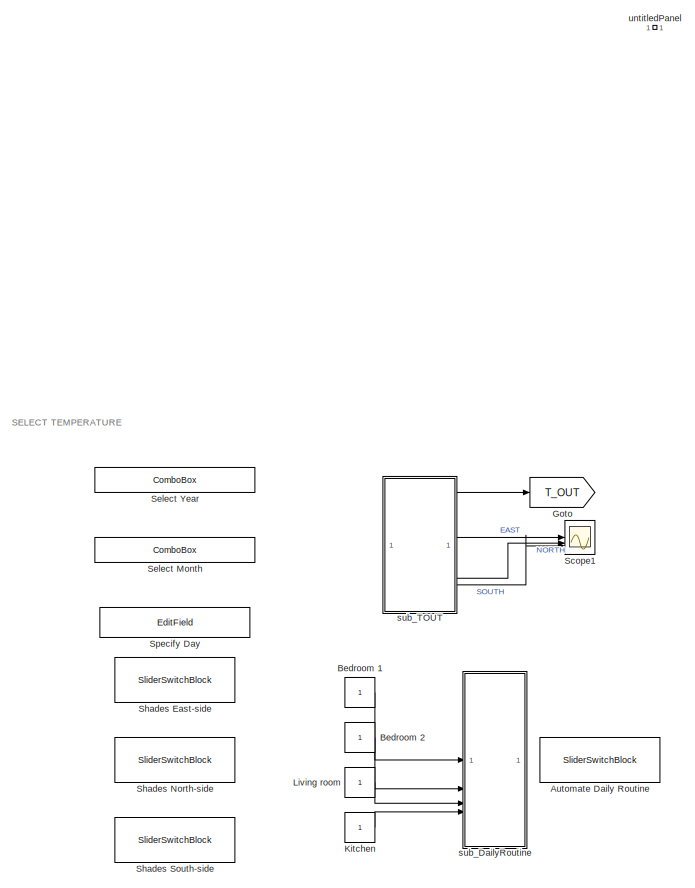
[diagram: root canvas - part 1/2, middle left region]
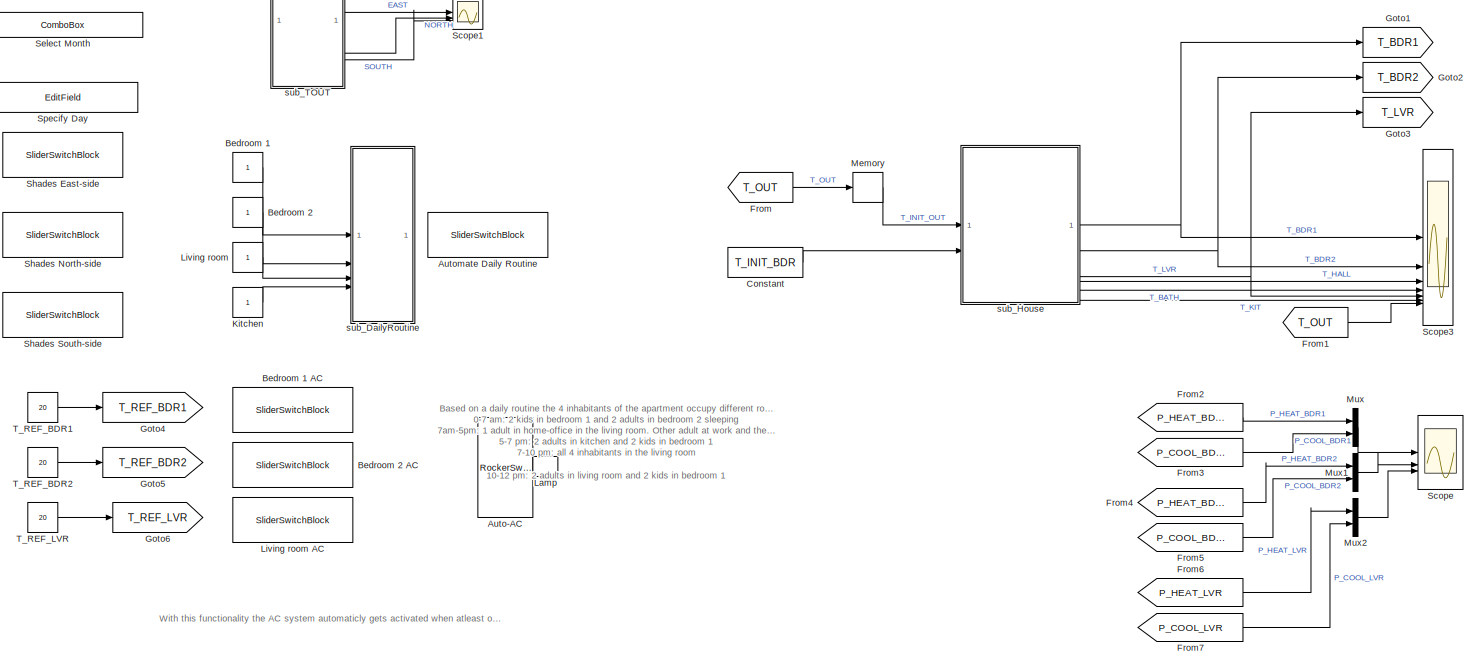
[diagram: root canvas - part 2/2, full width, bottom band]
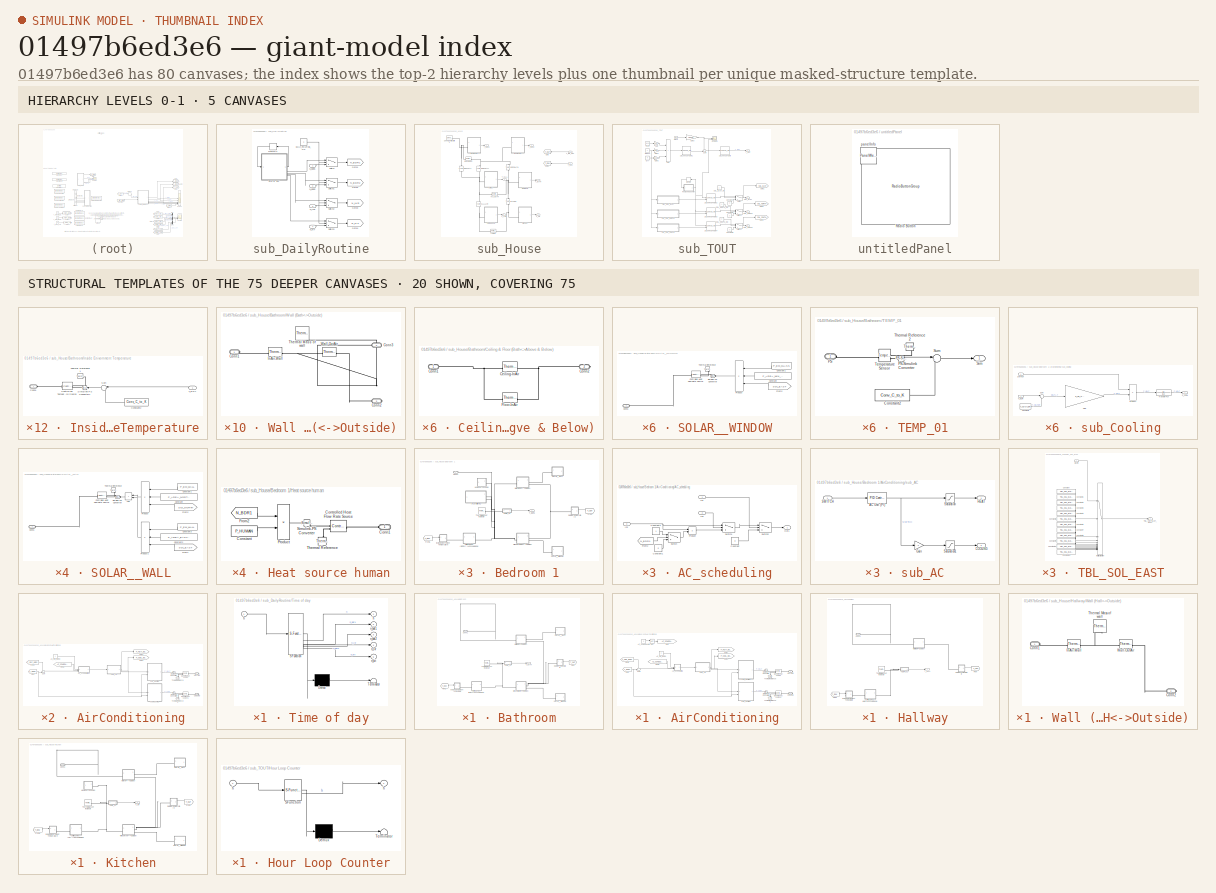
[diagram: thumbnail index - top-2 hierarchy levels (5 canvases) + 20 structural-template representatives of the remaining 75 canvases]
MODEL slx_01497b6ed3e6
KIND model
CONFIG AbsTol = auto
CONFIG EnableMultiTasking = off
CONFIG FixedStep = 1
CONFIG InitFcn = PARAMETERS;
CONFIG MaxStep = auto
CONFIG MinStep = auto
CONFIG RelTol = 1e-3
CONFIG SampleTimeConstraint = Unconstrained
CONFIG SolverName = ode5
CONFIG StartFcn = PARAMETERS;
CONFIG StartTime = 0.0
CONFIG StopTime = 3600*24*7
BLOCK [RockerSwitchBlock] Auto-AC
  LabelPosition = Hide
BLOCK [SliderSwitchBlock] Automate Daily Routine
  LabelPosition = Hide
BLOCK [Constant] Bedroom 1
  NameLocation = left
BLOCK [SliderSwitchBlock] Bedroom 1 AC
  LabelPosition = Hide
  NameLocation = right
BLOCK [Constant] Bedroom 2
  NameLocation = left
BLOCK [SliderSwitchBlock] Bedroom 2 AC
  LabelPosition = Hide
  NameLocation = right
BLOCK [Constant] Constant
  Value = T_INIT_BDR
BLOCK [From] From
  GotoTag = T_OUT
BLOCK [From] From1
  GotoTag = T_OUT
BLOCK [From] From2
  GotoTag = P_HEAT_BDR1
  TagVisibility = global
BLOCK [From] From3
  GotoTag = P_COOL_BDR1
  TagVisibility = global
BLOCK [From] From4
  GotoTag = P_HEAT_BDR2
  TagVisibility = global
BLOCK [From] From5
  GotoTag = P_COOL_BDR2
  TagVisibility = global
BLOCK [From] From6
  GotoTag = P_HEAT_LVR
  TagVisibility = global
BLOCK [From] From7
  GotoTag = P_COOL_LVR
  TagVisibility = global
BLOCK [Goto] Goto
  GotoTag = T_OUT
BLOCK [Goto] Goto1
  GotoTag = T_BDR1
  TagVisibility = global
BLOCK [Goto] Goto2
  GotoTag = T_BDR2
  TagVisibility = global
BLOCK [Goto] Goto3
  GotoTag = T_LVR
  TagVisibility = global
BLOCK [Goto] Goto4
  GotoTag = T_REF_BDR1
  TagVisibility = global
BLOCK [Goto] Goto5
  GotoTag = T_REF_BDR2
  TagVisibility = global
BLOCK [Goto] Goto6
  GotoTag = T_REF_LVR
  TagVisibility = global
BLOCK [Constant] Kitchen
  NameLocation = left
BLOCK [LampBlock] Lamp
  LabelPosition = Hide
BLOCK [Constant] Living room
  NameLocation = left
BLOCK [SliderSwitchBlock] Living room AC
  LabelPosition = Hide
  NameLocation = right
BLOCK [Memory] Memory
  InitialCondition = T_INIT_OUT
BLOCK [Mux] Mux
  DisplayOption = bar
  Inputs = 2
BLOCK [Mux] Mux1
  DisplayOption = bar
  Inputs = 2
BLOCK [Mux] Mux2
  DisplayOption = bar
  Inputs = 2
BLOCK [Scope] Scope
  Floating = off
  NumInputPorts = 3
  ScopeSpecificationString = Simulink.scopes.TimeScopeBlockCfg('CurrentConfiguration', extmgr.ConfigurationSet(extmgr.Configuration('Core','General UI',true),extmgr.Configuration('Core','Source UI',true),extmgr.Configuration('Sources','WiredSimulink',true,'DataLoggingVariableName','ScopeData1'),extmgr.Configuration('Visuals','Time Domain',true,'SerializedDisplays',{struct('MinYLimReal','-0.06855','MaxYLimReal','0.61698','YLab...<+2815ch>
BLOCK [Scope] Scope1
  Floating = off
  NumInputPorts = 3
  ScopeSpecificationString = Simulink.scopes.TimeScopeBlockCfg('CurrentConfiguration', extmgr.ConfigurationSet(extmgr.Configuration('Core','General UI',true),extmgr.Configuration('Core','Source UI',true),extmgr.Configuration('Sources','WiredSimulink',true,'DataLoggingVariableName','ScopeData1'),extmgr.Configuration('Visuals','Time Domain',true,'SerializedDisplays',{struct('MinYLimReal','-34.945','MaxYLimReal','314.505','YLabe...<+1446ch>
BLOCK [Scope] Scope3
  Floating = off
  NumInputPorts = 7
  ScopeSpecificationString = Simulink.scopes.TimeScopeBlockCfg('CurrentConfiguration', extmgr.ConfigurationSet(extmgr.Configuration('Core','General UI',true),extmgr.Configuration('Core','Source UI',true),extmgr.Configuration('Sources','WiredSimulink',true,'DataLoggingVariableName','ScopeData3'),extmgr.Configuration('Visuals','Time Domain',true,'SerializedDisplays',{struct('MinYLimReal','10.725','MaxYLimReal','37.475','YLabelR...<+1640ch>
BLOCK [ComboBox] Select Month
  LabelPosition = Hide
  NameLocation = top
  SelectedLabel = July
BLOCK [ComboBox] Select Year
  LabelPosition = Hide
  NameLocation = top
  SelectedLabel = 2023
BLOCK [SliderSwitchBlock] Shades East-side
  LabelPosition = Hide
BLOCK [SliderSwitchBlock] Shades North-side
  LabelPosition = Hide
BLOCK [SliderSwitchBlock] Shades South-side
  LabelPosition = Hide
BLOCK [EditField] Specify Day
  Alignment = Center
  LabelPosition = Hide
  NameLocation = top
  ShowInitialText = on
BLOCK [Constant] T_REF_BDR1
  Value = 20
BLOCK [Constant] T_REF_BDR2
  Value = 20
BLOCK [Constant] T_REF_LVR
  Value = 20
BLOCK [SubSystem] sub_DailyRoutine
BLOCK [Constant] sub_DailyRoutine/DAILY_ROUTINE_ON
BLOCK [Goto] sub_DailyRoutine/Goto1
  GotoTag = N_BDR1
  TagVisibility = global
BLOCK [Goto] sub_DailyRoutine/Goto2
  GotoTag = N_BDR2
  TagVisibility = global
BLOCK [Goto] sub_DailyRoutine/Goto3
  GotoTag = N_LVR
  TagVisibility = global
BLOCK [Goto] sub_DailyRoutine/Goto4
  GotoTag = N_KIT
  TagVisibility = global
BLOCK [Memory] sub_DailyRoutine/Memory1
BLOCK [Inport] sub_DailyRoutine/N_BDR1
BLOCK [Inport] sub_DailyRoutine/N_BDR2
  Port = 2
BLOCK [Inport] sub_DailyRoutine/N_KIT
  Port = 4
BLOCK [Inport] sub_DailyRoutine/N_LVR
  Port = 3
BLOCK [Switch] sub_DailyRoutine/Switch
  Criteria = u2 > Threshold
  InputSameDT = off
  SaturateOnIntegerOverflow = off
BLOCK [Switch] sub_DailyRoutine/Switch1
  Criteria = u2 > Threshold
  InputSameDT = off
  SaturateOnIntegerOverflow = off
BLOCK [Switch] sub_DailyRoutine/Switch2
  Criteria = u2 > Threshold
  InputSameDT = off
  SaturateOnIntegerOverflow = off
BLOCK [Switch] sub_DailyRoutine/Switch3
  Criteria = u2 > Threshold
  InputSameDT = off
  SaturateOnIntegerOverflow = off
BLOCK [SubSystem] sub_DailyRoutine/Time of day
  ErrorFcn = Stateflow.Translate.translate
  PermitHierarchicalResolution = ExplicitOnly
  SFBlockType = MATLAB Function
  TreatAsAtomicUnit = on
BLOCK [Demux] sub_DailyRoutine/Time of day/ Demux 
  Outputs = 1
BLOCK [S-Function] sub_DailyRoutine/Time of day/ SFunction 
  EnableBusSupport = on
  FunctionName = sf_sfun
  PortCounts = [1 6]
  SFcnIsStateOwnerBlock = off
  SFunctionDeploymentMode = off
  Tag = Stateflow S-Function 3
BLOCK [Terminator] sub_DailyRoutine/Time of day/ Terminator 
BLOCK [Outport] sub_DailyRoutine/Time of day/h
BLOCK [Inport] sub_DailyRoutine/Time of day/h 
BLOCK [Outport] sub_DailyRoutine/Time of day/n_bdr1
  Port = 2
BLOCK [Outport] sub_DailyRoutine/Time of day/n_bdr2
  Port = 3
BLOCK [Outport] sub_DailyRoutine/Time of day/n_kit
  Port = 5
BLOCK [Outport] sub_DailyRoutine/Time of day/n_lvr
  Port = 4
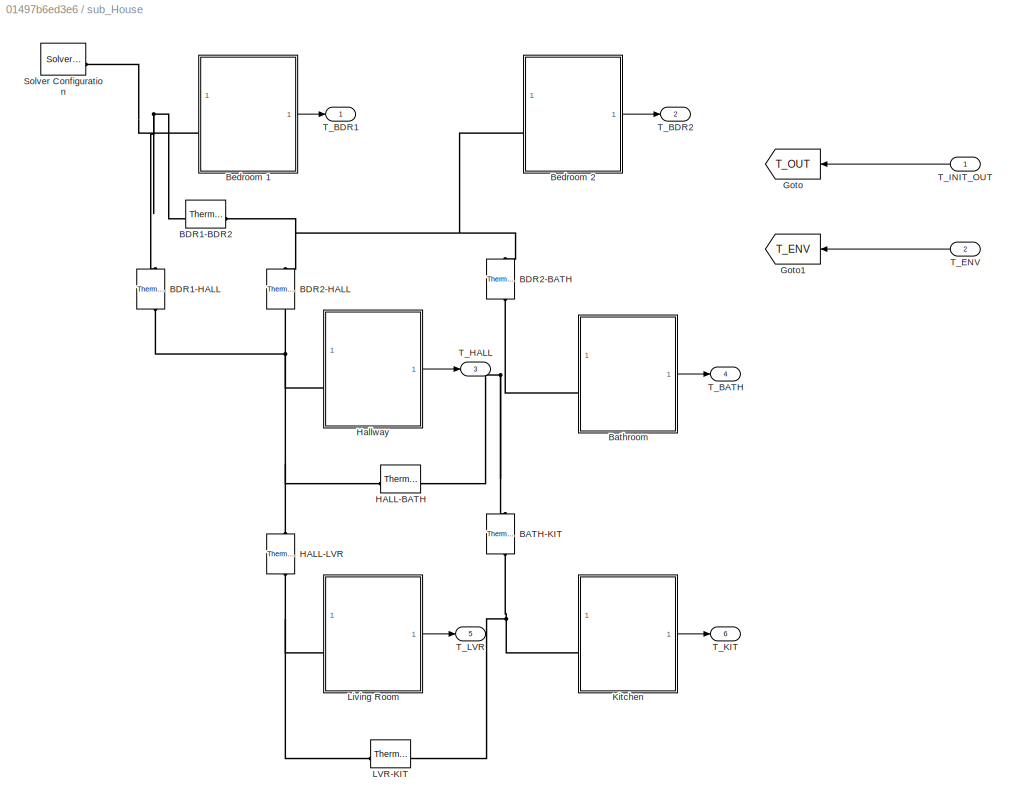
BLOCK [SubSystem] sub_House
BLOCK [Reference] sub_House/BATH-KIT  REF=fl_lib/Thermal/Thermal Elements/Thermal Resistance
  NameLocation = right
  SourceBlock = fl_lib/Thermal/Thermal Elements/Thermal Resistance
  SourceType = Thermal Resistance
BLOCK [Reference] sub_House/BDR1-BDR2  REF=fl_lib/Thermal/Thermal Elements/Thermal Resistance
  SourceBlock = fl_lib/Thermal/Thermal Elements/Thermal Resistance
  SourceType = Thermal Resistance
BLOCK [Reference] sub_House/BDR1-HALL  REF=fl_lib/Thermal/Thermal Elements/Thermal Resistance
  NameLocation = left
  SourceBlock = fl_lib/Thermal/Thermal Elements/Thermal Resistance
  SourceType = Thermal Resistance
BLOCK [Reference] sub_House/BDR2-BATH  REF=fl_lib/Thermal/Thermal Elements/Thermal Resistance
  NameLocation = right
  SourceBlock = fl_lib/Thermal/Thermal Elements/Thermal Resistance
  SourceType = Thermal Resistance
BLOCK [Reference] sub_House/BDR2-HALL  REF=fl_lib/Thermal/Thermal Elements/Thermal Resistance
  NameLocation = left
  SourceBlock = fl_lib/Thermal/Thermal Elements/Thermal Resistance
  SourceType = Thermal Resistance
BLOCK [SubSystem] sub_House/Bathroom
BLOCK [SubSystem] sub_House/Bathroom/Ceiling & Floor (Bath<->Above & Below)
BLOCK [Reference] sub_House/Bathroom/Ceiling & Floor (Bath<->Above & Below)/Ceiling-InAir  REF=fl_lib/Thermal/Thermal Elements/Thermal Resistance
  SourceBlock = fl_lib/Thermal/Thermal Elements/Thermal Resistance
  SourceType = Thermal Resistance
BLOCK [PMIOPort] sub_House/Bathroom/Ceiling & Floor (Bath<->Above & Below)/Conn1
  Side = Left
BLOCK [PMIOPort] sub_House/Bathroom/Ceiling & Floor (Bath<->Above & Below)/Conn2
  Port = 2
  Side = Right
BLOCK [Reference] sub_House/Bathroom/Ceiling & Floor (Bath<->Above & Below)/Floor-InAir  REF=fl_lib/Thermal/Thermal Elements/Thermal Resistance
  SourceBlock = fl_lib/Thermal/Thermal Elements/Thermal Resistance
  SourceType = Thermal Resistance
BLOCK [PMIOPort] sub_House/Bathroom/Conn1
  Side = Left
BLOCK [From] sub_House/Bathroom/From
  GotoTag = T_OUT
  TagVisibility = global
BLOCK [From] sub_House/Bathroom/From1
  GotoTag = T_ENV
  NameLocation = top
  TagVisibility = global
BLOCK [SubSystem] sub_House/Bathroom/Inside Enivornment Temperature
  PortSchema = {"entries":[{"content":{"sides":[{"content":{"connectorIds":["LConn1"]},"type":"ConnectorPlacement.EquallySpacedRectSide","uuid":"d7207a88-d4d1-4eb1-8525-bfbf38cfed80"},{"content":{"connectorIds":["In1"],"side":"RIGHT"},"type":"ConnectorPlacement.EquallySpacedRectSide","uuid":"a5beddf3-616c-4e89-970e-855bf6dc3854"},{"content":{"side":"TOP"},"type":"ConnectorPlacement.EquallySpacedRectSide","uuid":...<+224ch>  <repeated x12 — deduplicated; at blocks: Inside Enivornment Temperature, Outside Temperature>
BLOCK [PMIOPort] sub_House/Bathroom/Inside Enivornment Temperature/Conn1
  Side = Left
BLOCK [Constant] sub_House/Bathroom/Inside Enivornment Temperature/Constant2
  NameLocation = top
  Value = Conv_C_to_K
BLOCK [Reference] sub_House/Bathroom/Inside Enivornment Temperature/Controlled Temperature Source  REF=fl_lib/Thermal/Thermal Sources/Controlled
Temperature Source
  NameLocation = top
  SourceBlock = fl_lib/Thermal/Thermal Sources/Controlled\nTemperature Source
  SourceType = Controlled\nTemperature Source
BLOCK [Reference] sub_House/Bathroom/Inside Enivornment Temperature/Simulink-PS Converter1  REF=nesl_utility/Simulink-PS
Converter
  NameLocation = top
  SourceBlock = nesl_utility/Simulink-PS\nConverter
  SourceType = Simulink-PS\nConverter
BLOCK [Sum] sub_House/Bathroom/Inside Enivornment Temperature/Sum
  Inputs = |++
  NameLocation = top
BLOCK [Inport] sub_House/Bathroom/Inside Enivornment Temperature/T_ENV
BLOCK [Reference] sub_House/Bathroom/Inside Enivornment Temperature/Thermal Reference1  REF=fl_lib/Thermal/Thermal Elements/Thermal Reference
  NameLocation = top
  SourceBlock = fl_lib/Thermal/Thermal Elements/Thermal Reference
  SourceType = Thermal Reference
BLOCK [SubSystem] sub_House/Bathroom/Outside Temperature
BLOCK [PMIOPort] sub_House/Bathroom/Outside Temperature/Conn1
  Side = Left
BLOCK [Constant] sub_House/Bathroom/Outside Temperature/Constant2
  NameLocation = top
  Value = Conv_C_to_K
BLOCK [Reference] sub_House/Bathroom/Outside Temperature/Controlled Temperature Source  REF=fl_lib/Thermal/Thermal Sources/Controlled
Temperature Source
  NameLocation = top
  SourceBlock = fl_lib/Thermal/Thermal Sources/Controlled\nTemperature Source
  SourceType = Controlled\nTemperature Source
BLOCK [Reference] sub_House/Bathroom/Outside Temperature/Simulink-PS Converter1  REF=nesl_utility/Simulink-PS
Converter
  NameLocation = top
  SourceBlock = nesl_utility/Simulink-PS\nConverter
  SourceType = Simulink-PS\nConverter
BLOCK [Sum] sub_House/Bathroom/Outside Temperature/Sum
  Inputs = |++
  NameLocation = top
BLOCK [Inport] sub_House/Bathroom/Outside Temperature/T_OUT
BLOCK [Reference] sub_House/Bathroom/Outside Temperature/Thermal Reference1  REF=fl_lib/Thermal/Thermal Elements/Thermal Reference
  NameLocation = top
  SourceBlock = fl_lib/Thermal/Thermal Elements/Thermal Reference
  SourceType = Thermal Reference
BLOCK [SubSystem] sub_House/Bathroom/SOLAR__WALL
BLOCK [Sum] sub_House/Bathroom/SOLAR__WALL/Add
  IconShape = rectangular
  NameLocation = top
BLOCK [PMIOPort] sub_House/Bathroom/SOLAR__WALL/Conn1
  Side = Left
BLOCK [Constant] sub_House/Bathroom/SOLAR__WALL/Constant
  NameLocation = top
  Value = P_AREA_NORTH_WALL_BATH
BLOCK [Constant] sub_House/Bathroom/SOLAR__WALL/Constant1
  NameLocation = top
  Value = P_EM_WALL
BLOCK [Constant] sub_House/Bathroom/SOLAR__WALL/Constant2
  NameLocation = top
  Value = P_AREA_EAST_WALL_BATH
BLOCK [Constant] sub_House/Bathroom/SOLAR__WALL/Constant3
  NameLocation = top
  Value = P_EM_WALL
BLOCK [Reference] sub_House/Bathroom/SOLAR__WALL/Controlled Heat Flow Rate Source  REF=fl_lib/Thermal/Thermal Sources/Controlled Heat Flow
Rate Source
  NameLocation = top
  SourceBlock = fl_lib/Thermal/Thermal Sources/Controlled Heat Flow\nRate Source
  SourceType = Controlled Heat Flow\nRate Source
BLOCK [From] sub_House/Bathroom/SOLAR__WALL/From1
  GotoTag = SOL_EAST
  NameLocation = top
  TagVisibility = global
BLOCK [From] sub_House/Bathroom/SOLAR__WALL/From2
  GotoTag = SOL_NORTH
  NameLocation = top
  TagVisibility = global
BLOCK [Product] sub_House/Bathroom/SOLAR__WALL/Product
  Inputs = 3
  NameLocation = top
BLOCK [Product] sub_House/Bathroom/SOLAR__WALL/Product1
  Inputs = 3
  NameLocation = top
BLOCK [Reference] sub_House/Bathroom/SOLAR__WALL/Simulink-PS Converter  REF=nesl_utility/Simulink-PS
Converter
  NameLocation = top
  SourceBlock = nesl_utility/Simulink-PS\nConverter
  SourceType = Simulink-PS\nConverter
BLOCK [Reference] sub_House/Bathroom/SOLAR__WALL/Thermal Reference  REF=fl_lib/Thermal/Thermal Elements/Thermal Reference
  NameLocation = left
  SourceBlock = fl_lib/Thermal/Thermal Elements/Thermal Reference
  SourceType = Thermal Reference
BLOCK [SubSystem] sub_House/Bathroom/SOLAR__WINDOW
BLOCK [PMIOPort] sub_House/Bathroom/SOLAR__WINDOW/Conn1
  Side = Left
BLOCK [Constant] sub_House/Bathroom/SOLAR__WINDOW/Constant
  NameLocation = top
  Value = P_AREA_WIN_BATH
BLOCK [Constant] sub_House/Bathroom/SOLAR__WINDOW/Constant1
  NameLocation = top
  Value = P_EM_GLASS
BLOCK [Reference] sub_House/Bathroom/SOLAR__WINDOW/Controlled Heat Flow Rate Source  REF=fl_lib/Thermal/Thermal Sources/Controlled Heat Flow
Rate Source
  NameLocation = top
  SourceBlock = fl_lib/Thermal/Thermal Sources/Controlled Heat Flow\nRate Source
  SourceType = Controlled Heat Flow\nRate Source
BLOCK [From] sub_House/Bathroom/SOLAR__WINDOW/From2
  GotoTag = SOL_EAST
  NameLocation = top
  TagVisibility = global
BLOCK [Product] sub_House/Bathroom/SOLAR__WINDOW/Product
  Inputs = 3
  NameLocation = top
BLOCK [Reference] sub_House/Bathroom/SOLAR__WINDOW/Simulink-PS Converter  REF=nesl_utility/Simulink-PS
Converter
  NameLocation = top
  SourceBlock = nesl_utility/Simulink-PS\nConverter
  SourceType = Simulink-PS\nConverter
BLOCK [Reference] sub_House/Bathroom/SOLAR__WINDOW/Thermal Reference  REF=fl_lib/Thermal/Thermal Elements/Thermal Reference
  NameLocation = left
  SourceBlock = fl_lib/Thermal/Thermal Elements/Thermal Reference
  SourceType = Thermal Reference
BLOCK [SubSystem] sub_House/Bathroom/TEMP_01
BLOCK [Constant] sub_House/Bathroom/TEMP_01/Constant2
  Value = Conv_C_to_K
BLOCK [PMIOPort] sub_House/Bathroom/TEMP_01/PS
  Side = Left
BLOCK [Reference] sub_House/Bathroom/TEMP_01/PS-Simulink Converter  REF=nesl_utility/PS-Simulink
Converter
  SourceBlock = nesl_utility/PS-Simulink\nConverter
  SourceType = PS-Simulink\nConverter
BLOCK [Outport] sub_House/Bathroom/TEMP_01/Sim
BLOCK [Sum] sub_House/Bathroom/TEMP_01/Sum
  Inputs = |+-
BLOCK [Reference] sub_House/Bathroom/TEMP_01/Temperature Sensor  REF=fl_lib/Thermal/Thermal Sensors/Temperature Sensor
  SourceBlock = fl_lib/Thermal/Thermal Sensors/Temperature Sensor
  SourceType = Temperature Sensor
BLOCK [Reference] sub_House/Bathroom/TEMP_01/Thermal Reference2  REF=fl_lib/Thermal/Thermal Elements/Thermal Reference
  NameLocation = top
  SourceBlock = fl_lib/Thermal/Thermal Elements/Thermal Reference
  SourceType = Thermal Reference
BLOCK [Outport] sub_House/Bathroom/T_BATH
BLOCK [Reference] sub_House/Bathroom/Thermal Mass of inside air  REF=fl_lib/Thermal/Thermal Elements/Thermal Mass
  NameLocation = left
  SourceBlock = fl_lib/Thermal/Thermal Elements/Thermal Mass
  SourceType = Thermal Mass
BLOCK [SubSystem] sub_House/Bathroom/Wall (Bath<->Outside)
BLOCK [PMIOPort] sub_House/Bathroom/Wall (Bath<->Outside)/Conn1
  Side = Left
BLOCK [PMIOPort] sub_House/Bathroom/Wall (Bath<->Outside)/Conn2
  Port = 3
  Side = Right
BLOCK [PMIOPort] sub_House/Bathroom/Wall (Bath<->Outside)/Conn3
  Port = 2
  Side = Right
BLOCK [Reference] sub_House/Bathroom/Wall (Bath<->Outside)/InAir-Wall  REF=fl_lib/Thermal/Thermal Elements/Thermal Resistance
  SourceBlock = fl_lib/Thermal/Thermal Elements/Thermal Resistance
  SourceType = Thermal Resistance
BLOCK [Reference] sub_House/Bathroom/Wall (Bath<->Outside)/Thermal Mass of wall  REF=fl_lib/Thermal/Thermal Elements/Thermal Mass
  NameLocation = top
  SourceBlock = fl_lib/Thermal/Thermal Elements/Thermal Mass
  SourceType = Thermal Mass
BLOCK [Reference] sub_House/Bathroom/Wall (Bath<->Outside)/Wall-OutAir  REF=fl_lib/Thermal/Thermal Elements/Thermal Resistance
  SourceBlock = fl_lib/Thermal/Thermal Elements/Thermal Resistance
  SourceType = Thermal Resistance
BLOCK [SubSystem] sub_House/Bathroom/Window (Bath<->Outside)
BLOCK [PMIOPort] sub_House/Bathroom/Window (Bath<->Outside)/Conn1
  Side = Right
BLOCK [PMIOPort] sub_House/Bathroom/Window (Bath<->Outside)/Conn2
  Port = 2
  Side = Left
BLOCK [PMIOPort] sub_House/Bathroom/Window (Bath<->Outside)/Conn3
  Port = 3
  Side = Right
BLOCK [Reference] sub_House/Bathroom/Window (Bath<->Outside)/InAir-Window  REF=fl_lib/Thermal/Thermal Elements/Thermal Resistance
  SourceBlock = fl_lib/Thermal/Thermal Elements/Thermal Resistance
  SourceType = Thermal Resistance
BLOCK [Reference] sub_House/Bathroom/Window (Bath<->Outside)/Thermal Mass of window  REF=fl_lib/Thermal/Thermal Elements/Thermal Mass
  SourceBlock = fl_lib/Thermal/Thermal Elements/Thermal Mass
  SourceType = Thermal Mass
BLOCK [Reference] sub_House/Bathroom/Window (Bath<->Outside)/Window-OutAir  REF=fl_lib/Thermal/Thermal Elements/Thermal Resistance
  SourceBlock = fl_lib/Thermal/Thermal Elements/Thermal Resistance
  SourceType = Thermal Resistance
BLOCK [SubSystem] sub_House/Bedroom 1
BLOCK [SubSystem] sub_House/Bedroom 1/AirConditioning
BLOCK [Constant] sub_House/Bedroom 1/AirConditioning/AC_ON_BDR1
BLOCK [Constant] sub_House/Bedroom 1/AirConditioning/AC_SCHEDULING
  Value = 0
BLOCK [SubSystem] sub_House/Bedroom 1/AirConditioning/AC_scheduling
BLOCK [Constant] sub_House/Bedroom 1/AirConditioning/AC_scheduling/Constant
  Value = 0
BLOCK [Constant] sub_House/Bedroom 1/AirConditioning/AC_scheduling/Constant1
  Value = 0
BLOCK [Constant] sub_House/Bedroom 1/AirConditioning/AC_scheduling/Constant2
BLOCK [From] sub_House/Bedroom 1/AirConditioning/AC_scheduling/From2
  GotoTag = N_BDR1
  TagVisibility = global
BLOCK [Inport] sub_House/Bedroom 1/AirConditioning/AC_scheduling/In1
BLOCK [Inport] sub_House/Bedroom 1/AirConditioning/AC_scheduling/In2
  Port = 3
BLOCK [Inport] sub_House/Bedroom 1/AirConditioning/AC_scheduling/In3
  Port = 2
BLOCK [Outport] sub_House/Bedroom 1/AirConditioning/AC_scheduling/Out1
BLOCK [Product] sub_House/Bedroom 1/AirConditioning/AC_scheduling/Product
BLOCK [Switch] sub_House/Bedroom 1/AirConditioning/AC_scheduling/Switch
  Criteria = u2 > Threshold
  InputSameDT = off
  SaturateOnIntegerOverflow = off
BLOCK [Switch] sub_House/Bedroom 1/AirConditioning/AC_scheduling/Switch1
  Criteria = u2 > Threshold
  InputSameDT = off
  SaturateOnIntegerOverflow = off
BLOCK [Switch] sub_House/Bedroom 1/AirConditioning/AC_scheduling/Switch2
  Criteria = u2 > Threshold
  InputSameDT = off
  SaturateOnIntegerOverflow = off
BLOCK [PMIOPort] sub_House/Bedroom 1/AirConditioning/COOLING
  Port = 2
  Side = Right
BLOCK [From] sub_House/Bedroom 1/AirConditioning/From
  GotoTag = T_BDR1
  TagVisibility = global
BLOCK [From] sub_House/Bedroom 1/AirConditioning/From1
  GotoTag = T_REF_BDR1
  TagVisibility = global
BLOCK [From] sub_House/Bedroom 1/AirConditioning/From2
  GotoTag = AC_SCHEDULING
  TagVisibility = global
BLOCK [Reference] sub_House/Bedroom 1/AirConditioning/Generic heat source  REF=fl_lib/Thermal/Thermal Sources/Controlled Heat Flow
Rate Source
  SourceBlock = fl_lib/Thermal/Thermal Sources/Controlled Heat Flow\nRate Source
  SourceType = Controlled Heat Flow\nRate Source
BLOCK [Reference] sub_House/Bedroom 1/AirConditioning/Generic heat source1  REF=fl_lib/Thermal/Thermal Sources/Controlled Heat Flow
Rate Source
  SourceBlock = fl_lib/Thermal/Thermal Sources/Controlled Heat Flow\nRate Source
  SourceType = Controlled Heat Flow\nRate Source
BLOCK [Goto] sub_House/Bedroom 1/AirConditioning/Goto
  GotoTag = AC_SCHEDULING
  TagVisibility = global
BLOCK [Goto] sub_House/Bedroom 1/AirConditioning/Goto1
  GotoTag = P_HEAT_BDR1
  TagVisibility = global
BLOCK [Goto] sub_House/Bedroom 1/AirConditioning/Goto2
  GotoTag = P_COOL_BDR1
  TagVisibility = global
BLOCK [PMIOPort] sub_House/Bedroom 1/AirConditioning/HEATING
  Side = Right
BLOCK [Logic] sub_House/Bedroom 1/AirConditioning/NOT
  AllPortsSameDT = off
  IconShape = distinctive
  Operator = NOT
  OutDataTypeStr = boolean
BLOCK [Reference] sub_House/Bedroom 1/AirConditioning/Simulink-PS Converter  REF=nesl_utility/Simulink-PS
Converter
  SourceBlock = nesl_utility/Simulink-PS\nConverter
  SourceType = Simulink-PS\nConverter
BLOCK [Reference] sub_House/Bedroom 1/AirConditioning/Simulink-PS Converter4  REF=nesl_utility/Simulink-PS
Converter
  SourceBlock = nesl_utility/Simulink-PS\nConverter
  SourceType = Simulink-PS\nConverter
BLOCK [Sum] sub_House/Bedroom 1/AirConditioning/Sum
  Inputs = +-|
BLOCK [Reference] sub_House/Bedroom 1/AirConditioning/Thermal Reference  REF=fl_lib/Thermal/Thermal Elements/Thermal Reference
  NameLocation = right
  SourceBlock = fl_lib/Thermal/Thermal Elements/Thermal Reference
  SourceType = Thermal Reference
BLOCK [Reference] sub_House/Bedroom 1/AirConditioning/Thermal Reference4  REF=fl_lib/Thermal/Thermal Elements/Thermal Reference
  NameLocation = right
  SourceBlock = fl_lib/Thermal/Thermal Elements/Thermal Reference
  SourceType = Thermal Reference
BLOCK [SubSystem] sub_House/Bedroom 1/AirConditioning/sub_AC
BLOCK [Reference] sub_House/Bedroom 1/AirConditioning/sub_AC/AC Unit (PI)  REF=slpidlib/PID Controller
  LibrarySourceBlock = simulink/Continuous/PID Controller
  SourceBlock = slpidlib/PID Controller
  SourceType = PID 1dof
BLOCK [Outport] sub_House/Bedroom 1/AirConditioning/sub_AC/COOLING
  Port = 2
BLOCK [Gain] sub_House/Bedroom 1/AirConditioning/sub_AC/Gain
  Gain = -1
BLOCK [Outport] sub_House/Bedroom 1/AirConditioning/sub_AC/HEAT
BLOCK [Inport] sub_House/Bedroom 1/AirConditioning/sub_AC/SWITCH
BLOCK [Saturate] sub_House/Bedroom 1/AirConditioning/sub_AC/Saturation
  LowerLimit = 0
  UpperLimit = 1
BLOCK [Saturate] sub_House/Bedroom 1/AirConditioning/sub_AC/Saturation1
  LowerLimit = 0
  UpperLimit = 1
BLOCK [SubSystem] sub_House/Bedroom 1/AirConditioning/sub_Cooling
BLOCK [Constant] sub_House/Bedroom 1/AirConditioning/sub_Cooling/Constant2
  Value = T_COOLER
BLOCK [Gain] sub_House/Bedroom 1/AirConditioning/sub_Cooling/Gain
  Gain = P_CP_AIR*P_AC_AIR_FLOW
BLOCK [Outport] sub_House/Bedroom 1/AirConditioning/sub_Cooling/P_COOL
BLOCK [Product] sub_House/Bedroom 1/AirConditioning/sub_Cooling/Product
BLOCK [Inport] sub_House/Bedroom 1/AirConditioning/sub_Cooling/SWITCH
BLOCK [Sum] sub_House/Bedroom 1/AirConditioning/sub_Cooling/Sum
  Inputs = |-+
BLOCK [Inport] sub_House/Bedroom 1/AirConditioning/sub_Cooling/T_BDR
  Port = 2
BLOCK [TransferFcn] sub_House/Bedroom 1/AirConditioning/sub_Cooling/Transfer Fcn
  Denominator = [1 1]
BLOCK [SubSystem] sub_House/Bedroom 1/AirConditioning/sub_Heating
BLOCK [Constant] sub_House/Bedroom 1/AirConditioning/sub_Heating/Constant2
  Value = T_HEATER
BLOCK [Gain] sub_House/Bedroom 1/AirConditioning/sub_Heating/Gain
  Gain = P_CP_AIR*P_AC_AIR_FLOW
BLOCK [Outport] sub_House/Bedroom 1/AirConditioning/sub_Heating/P_HEAT
BLOCK [Product] sub_House/Bedroom 1/AirConditioning/sub_Heating/Product
BLOCK [Inport] sub_House/Bedroom 1/AirConditioning/sub_Heating/SWITCH
BLOCK [Sum] sub_House/Bedroom 1/AirConditioning/sub_Heating/Sum
  Inputs = |-+
BLOCK [Inport] sub_House/Bedroom 1/AirConditioning/sub_Heating/T_BDR
  Port = 2
BLOCK [TransferFcn] sub_House/Bedroom 1/AirConditioning/sub_Heating/Transfer Fcn
  Denominator = [1 1]
BLOCK [SubSystem] sub_House/Bedroom 1/Ceiling & Floor (BDR1<->Above & Below)
BLOCK [Reference] sub_House/Bedroom 1/Ceiling & Floor (BDR1<->Above & Below)/Ceiling-InAir  REF=fl_lib/Thermal/Thermal Elements/Thermal Resistance
  SourceBlock = fl_lib/Thermal/Thermal Elements/Thermal Resistance
  SourceType = Thermal Resistance
BLOCK [PMIOPort] sub_House/Bedroom 1/Ceiling & Floor (BDR1<->Above & Below)/Conn1
  Side = Left
BLOCK [PMIOPort] sub_House/Bedroom 1/Ceiling & Floor (BDR1<->Above & Below)/Conn2
  Port = 2
  Side = Right
BLOCK [Reference] sub_House/Bedroom 1/Ceiling & Floor (BDR1<->Above & Below)/Floor-InAir  REF=fl_lib/Thermal/Thermal Elements/Thermal Resistance
  SourceBlock = fl_lib/Thermal/Thermal Elements/Thermal Resistance
  SourceType = Thermal Resistance
BLOCK [PMIOPort] sub_House/Bedroom 1/Conn1
  Side = Left
BLOCK [From] sub_House/Bedroom 1/From
  GotoTag = T_OUT
  TagVisibility = global
BLOCK [From] sub_House/Bedroom 1/From1
  GotoTag = T_ENV
  NameLocation = top
  TagVisibility = global
BLOCK [SubSystem] sub_House/Bedroom 1/Heat source human
BLOCK [PMIOPort] sub_House/Bedroom 1/Heat source human/Conn1
  Side = Left
BLOCK [Constant] sub_House/Bedroom 1/Heat source human/Constant
  Value = P_HUMAN
BLOCK [Reference] sub_House/Bedroom 1/Heat source human/Controlled Heat Flow Rate Source  REF=fl_lib/Thermal/Thermal Sources/Controlled Heat Flow
Rate Source
  SourceBlock = fl_lib/Thermal/Thermal Sources/Controlled Heat Flow\nRate Source
  SourceType = Controlled Heat Flow\nRate Source
BLOCK [From] sub_House/Bedroom 1/Heat source human/From2
  GotoTag = N_BDR1
  TagVisibility = global
BLOCK [Product] sub_House/Bedroom 1/Heat source human/Product
BLOCK [Reference] sub_House/Bedroom 1/Heat source human/Simulink-PS Converter  REF=nesl_utility/Simulink-PS
Converter
  SourceBlock = nesl_utility/Simulink-PS\nConverter
  SourceType = Simulink-PS\nConverter
BLOCK [Reference] sub_House/Bedroom 1/Heat source human/Thermal Reference  REF=fl_lib/Thermal/Thermal Elements/Thermal Reference
  NameLocation = right
  SourceBlock = fl_lib/Thermal/Thermal Elements/Thermal Reference
  SourceType = Thermal Reference
BLOCK [SubSystem] sub_House/Bedroom 1/Inside Enivornment Temperature
BLOCK [PMIOPort] sub_House/Bedroom 1/Inside Enivornment Temperature/Conn1
  Side = Left
BLOCK [Constant] sub_House/Bedroom 1/Inside Enivornment Temperature/Constant2
  NameLocation = top
  Value = Conv_C_to_K
BLOCK [Reference] sub_House/Bedroom 1/Inside Enivornment Temperature/Controlled Temperature Source  REF=fl_lib/Thermal/Thermal Sources/Controlled
Temperature Source
  NameLocation = top
  SourceBlock = fl_lib/Thermal/Thermal Sources/Controlled\nTemperature Source
  SourceType = Controlled\nTemperature Source
BLOCK [Reference] sub_House/Bedroom 1/Inside Enivornment Temperature/Simulink-PS Converter1  REF=nesl_utility/Simulink-PS
Converter
  NameLocation = top
  SourceBlock = nesl_utility/Simulink-PS\nConverter
  SourceType = Simulink-PS\nConverter
BLOCK [Sum] sub_House/Bedroom 1/Inside Enivornment Temperature/Sum
  Inputs = |++
  NameLocation = top
BLOCK [Inport] sub_House/Bedroom 1/Inside Enivornment Temperature/T_ENV
BLOCK [Reference] sub_House/Bedroom 1/Inside Enivornment Temperature/Thermal Reference1  REF=fl_lib/Thermal/Thermal Elements/Thermal Reference
  NameLocation = top
  SourceBlock = fl_lib/Thermal/Thermal Elements/Thermal Reference
  SourceType = Thermal Reference
BLOCK [SubSystem] sub_House/Bedroom 1/Outside Temperature
BLOCK [PMIOPort] sub_House/Bedroom 1/Outside Temperature/Conn1
  Side = Left
BLOCK [Constant] sub_House/Bedroom 1/Outside Temperature/Constant2
  NameLocation = top
  Value = Conv_C_to_K
BLOCK [Reference] sub_House/Bedroom 1/Outside Temperature/Controlled Temperature Source  REF=fl_lib/Thermal/Thermal Sources/Controlled
Temperature Source
  NameLocation = top
  SourceBlock = fl_lib/Thermal/Thermal Sources/Controlled\nTemperature Source
  SourceType = Controlled\nTemperature Source
BLOCK [Reference] sub_House/Bedroom 1/Outside Temperature/Simulink-PS Converter1  REF=nesl_utility/Simulink-PS
Converter
  NameLocation = top
  SourceBlock = nesl_utility/Simulink-PS\nConverter
  SourceType = Simulink-PS\nConverter
BLOCK [Sum] sub_House/Bedroom 1/Outside Temperature/Sum
  Inputs = |++
  NameLocation = top
BLOCK [Inport] sub_House/Bedroom 1/Outside Temperature/T_OUT
BLOCK [Reference] sub_House/Bedroom 1/Outside Temperature/Thermal Reference1  REF=fl_lib/Thermal/Thermal Elements/Thermal Reference
  NameLocation = top
  SourceBlock = fl_lib/Thermal/Thermal Elements/Thermal Reference
  SourceType = Thermal Reference
BLOCK [SubSystem] sub_House/Bedroom 1/SOLAR__WALL
BLOCK [PMIOPort] sub_House/Bedroom 1/SOLAR__WALL/Conn1
  Side = Left
BLOCK [Constant] sub_House/Bedroom 1/SOLAR__WALL/Constant
  NameLocation = top
  Value = P_AREA_NORTH_WALL_BDR1
BLOCK [Constant] sub_House/Bedroom 1/SOLAR__WALL/Constant1
  NameLocation = top
  Value = P_EM_WALL
BLOCK [Reference] sub_House/Bedroom 1/SOLAR__WALL/Controlled Heat Flow Rate Source  REF=fl_lib/Thermal/Thermal Sources/Controlled Heat Flow
Rate Source
  NameLocation = top
  SourceBlock = fl_lib/Thermal/Thermal Sources/Controlled Heat Flow\nRate Source
  SourceType = Controlled Heat Flow\nRate Source
BLOCK [From] sub_House/Bedroom 1/SOLAR__WALL/From2
  GotoTag = SOL_NORTH
  NameLocation = top
  TagVisibility = global
BLOCK [Product] sub_House/Bedroom 1/SOLAR__WALL/Product
  Inputs = 3
  NameLocation = top
BLOCK [Reference] sub_House/Bedroom 1/SOLAR__WALL/Simulink-PS Converter  REF=nesl_utility/Simulink-PS
Converter
  NameLocation = top
  SourceBlock = nesl_utility/Simulink-PS\nConverter
  SourceType = Simulink-PS\nConverter
BLOCK [Reference] sub_House/Bedroom 1/SOLAR__WALL/Thermal Reference  REF=fl_lib/Thermal/Thermal Elements/Thermal Reference
  NameLocation = left
  SourceBlock = fl_lib/Thermal/Thermal Elements/Thermal Reference
  SourceType = Thermal Reference
BLOCK [SubSystem] sub_House/Bedroom 1/SOLAR__WINDOW
BLOCK [PMIOPort] sub_House/Bedroom 1/SOLAR__WINDOW/Conn1
  Side = Left
BLOCK [Constant] sub_House/Bedroom 1/SOLAR__WINDOW/Constant
  NameLocation = top
  Value = P_AREA_WIN_BDRS
BLOCK [Constant] sub_House/Bedroom 1/SOLAR__WINDOW/Constant1
  NameLocation = top
  Value = P_EM_GLASS
BLOCK [Reference] sub_House/Bedroom 1/SOLAR__WINDOW/Controlled Heat Flow Rate Source  REF=fl_lib/Thermal/Thermal Sources/Controlled Heat Flow
Rate Source
  NameLocation = top
  SourceBlock = fl_lib/Thermal/Thermal Sources/Controlled Heat Flow\nRate Source
  SourceType = Controlled Heat Flow\nRate Source
BLOCK [From] sub_House/Bedroom 1/SOLAR__WINDOW/From2
  GotoTag = SOL_NORTH
  NameLocation = top
  TagVisibility = global
BLOCK [Product] sub_House/Bedroom 1/SOLAR__WINDOW/Product
  Inputs = 3
  NameLocation = top
BLOCK [Reference] sub_House/Bedroom 1/SOLAR__WINDOW/Simulink-PS Converter  REF=nesl_utility/Simulink-PS
Converter
  NameLocation = top
  SourceBlock = nesl_utility/Simulink-PS\nConverter
  SourceType = Simulink-PS\nConverter
BLOCK [Reference] sub_House/Bedroom 1/SOLAR__WINDOW/Thermal Reference  REF=fl_lib/Thermal/Thermal Elements/Thermal Reference
  NameLocation = left
  SourceBlock = fl_lib/Thermal/Thermal Elements/Thermal Reference
  SourceType = Thermal Reference
BLOCK [SubSystem] sub_House/Bedroom 1/TEMP_01
BLOCK [Constant] sub_House/Bedroom 1/TEMP_01/Constant2
  Value = Conv_C_to_K
BLOCK [PMIOPort] sub_House/Bedroom 1/TEMP_01/PS
  Side = Left
BLOCK [Reference] sub_House/Bedroom 1/TEMP_01/PS-Simulink Converter  REF=nesl_utility/PS-Simulink
Converter
  SourceBlock = nesl_utility/PS-Simulink\nConverter
  SourceType = PS-Simulink\nConverter
BLOCK [Outport] sub_House/Bedroom 1/TEMP_01/Sim
BLOCK [Sum] sub_House/Bedroom 1/TEMP_01/Sum
  Inputs = |+-
BLOCK [Reference] sub_House/Bedroom 1/TEMP_01/Temperature Sensor  REF=fl_lib/Thermal/Thermal Sensors/Temperature Sensor
  SourceBlock = fl_lib/Thermal/Thermal Sensors/Temperature Sensor
  SourceType = Temperature Sensor
BLOCK [Reference] sub_House/Bedroom 1/TEMP_01/Thermal Reference2  REF=fl_lib/Thermal/Thermal Elements/Thermal Reference
  NameLocation = top
  SourceBlock = fl_lib/Thermal/Thermal Elements/Thermal Reference
  SourceType = Thermal Reference
BLOCK [Outport] sub_House/Bedroom 1/T_BDR1
BLOCK [Reference] sub_House/Bedroom 1/Thermal Mass of inside air  REF=fl_lib/Thermal/Thermal Elements/Thermal Mass
  NameLocation = left
  SourceBlock = fl_lib/Thermal/Thermal Elements/Thermal Mass
  SourceType = Thermal Mass
BLOCK [SubSystem] sub_House/Bedroom 1/Wall (BDR1<->Outside)
BLOCK [PMIOPort] sub_House/Bedroom 1/Wall (BDR1<->Outside)/Conn1
  Side = Left
BLOCK [PMIOPort] sub_House/Bedroom 1/Wall (BDR1<->Outside)/Conn2
  Port = 3
  Side = Right
BLOCK [PMIOPort] sub_House/Bedroom 1/Wall (BDR1<->Outside)/Conn3
  Port = 2
  Side = Right
BLOCK [Reference] sub_House/Bedroom 1/Wall (BDR1<->Outside)/InAir-Wall  REF=fl_lib/Thermal/Thermal Elements/Thermal Resistance
  SourceBlock = fl_lib/Thermal/Thermal Elements/Thermal Resistance
  SourceType = Thermal Resistance
BLOCK [Reference] sub_House/Bedroom 1/Wall (BDR1<->Outside)/Thermal Mass of wall  REF=fl_lib/Thermal/Thermal Elements/Thermal Mass
  NameLocation = top
  SourceBlock = fl_lib/Thermal/Thermal Elements/Thermal Mass
  SourceType = Thermal Mass
BLOCK [Reference] sub_House/Bedroom 1/Wall (BDR1<->Outside)/Wall-OutAir  REF=fl_lib/Thermal/Thermal Elements/Thermal Resistance
  SourceBlock = fl_lib/Thermal/Thermal Elements/Thermal Resistance
  SourceType = Thermal Resistance
BLOCK [SubSystem] sub_House/Bedroom 1/Window (BDR1<->Outside)
BLOCK [PMIOPort] sub_House/Bedroom 1/Window (BDR1<->Outside)/Conn1
  Side = Right
BLOCK [PMIOPort] sub_House/Bedroom 1/Window (BDR1<->Outside)/Conn2
  Port = 2
  Side = Left
BLOCK [PMIOPort] sub_House/Bedroom 1/Window (BDR1<->Outside)/Conn3
  Port = 3
  Side = Right
BLOCK [Reference] sub_House/Bedroom 1/Window (BDR1<->Outside)/InAir-Window  REF=fl_lib/Thermal/Thermal Elements/Thermal Resistance
  SourceBlock = fl_lib/Thermal/Thermal Elements/Thermal Resistance
  SourceType = Thermal Resistance
BLOCK [Reference] sub_House/Bedroom 1/Window (BDR1<->Outside)/Thermal Mass of window  REF=fl_lib/Thermal/Thermal Elements/Thermal Mass
  SourceBlock = fl_lib/Thermal/Thermal Elements/Thermal Mass
  SourceType = Thermal Mass
BLOCK [Reference] sub_House/Bedroom 1/Window (BDR1<->Outside)/Window-OutAir  REF=fl_lib/Thermal/Thermal Elements/Thermal Resistance
  SourceBlock = fl_lib/Thermal/Thermal Elements/Thermal Resistance
  SourceType = Thermal Resistance
BLOCK [SubSystem] sub_House/Bedroom 2
BLOCK [SubSystem] sub_House/Bedroom 2/AirConditioning
BLOCK [Constant] sub_House/Bedroom 2/AirConditioning/AC_ON_BDR2
BLOCK [SubSystem] sub_House/Bedroom 2/AirConditioning/AC_scheduling1
BLOCK [Constant] sub_House/Bedroom 2/AirConditioning/AC_scheduling1/Constant
  Value = 0
BLOCK [Constant] sub_House/Bedroom 2/AirConditioning/AC_scheduling1/Constant1
  Value = 0
BLOCK [Constant] sub_House/Bedroom 2/AirConditioning/AC_scheduling1/Constant2
BLOCK [From] sub_House/Bedroom 2/AirConditioning/AC_scheduling1/From2
  GotoTag = N_BDR1
  TagVisibility = global
BLOCK [Inport] sub_House/Bedroom 2/AirConditioning/AC_scheduling1/In1
BLOCK [Inport] sub_House/Bedroom 2/AirConditioning/AC_scheduling1/In2
  Port = 3
BLOCK [Inport] sub_House/Bedroom 2/AirConditioning/AC_scheduling1/In3
  Port = 2
BLOCK [Product] sub_House/Bedroom 2/AirConditioning/AC_scheduling1/Product
BLOCK [Outport] sub_House/Bedroom 2/AirConditioning/AC_scheduling1/SWITCH
BLOCK [Switch] sub_House/Bedroom 2/AirConditioning/AC_scheduling1/Switch
  Criteria = u2 > Threshold
  InputSameDT = off
  SaturateOnIntegerOverflow = off
BLOCK [Switch] sub_House/Bedroom 2/AirConditioning/AC_scheduling1/Switch1
  Criteria = u2 > Threshold
  InputSameDT = off
  SaturateOnIntegerOverflow = off
BLOCK [Switch] sub_House/Bedroom 2/AirConditioning/AC_scheduling1/Switch2
  Criteria = u2 > Threshold
  InputSameDT = off
  SaturateOnIntegerOverflow = off
BLOCK [PMIOPort] sub_House/Bedroom 2/AirConditioning/COOLING
  Port = 2
  Side = Right
BLOCK [From] sub_House/Bedroom 2/AirConditioning/From
  GotoTag = T_BDR2
  TagVisibility = global
BLOCK [From] sub_House/Bedroom 2/AirConditioning/From1
  GotoTag = T_REF_BDR2
  TagVisibility = global
BLOCK [From] sub_House/Bedroom 2/AirConditioning/From2
  GotoTag = AC_SCHEDULING
  TagVisibility = global
BLOCK [Reference] sub_House/Bedroom 2/AirConditioning/Generic heat source  REF=fl_lib/Thermal/Thermal Sources/Controlled Heat Flow
Rate Source
  SourceBlock = fl_lib/Thermal/Thermal Sources/Controlled Heat Flow\nRate Source
  SourceType = Controlled Heat Flow\nRate Source
BLOCK [Reference] sub_House/Bedroom 2/AirConditioning/Generic heat source1  REF=fl_lib/Thermal/Thermal Sources/Controlled Heat Flow
Rate Source
  SourceBlock = fl_lib/Thermal/Thermal Sources/Controlled Heat Flow\nRate Source
  SourceType = Controlled Heat Flow\nRate Source
BLOCK [Goto] sub_House/Bedroom 2/AirConditioning/Goto1
  GotoTag = P_HEAT_BDR2
  TagVisibility = global
BLOCK [Goto] sub_House/Bedroom 2/AirConditioning/Goto2
  GotoTag = P_COOL_BDR2
  TagVisibility = global
BLOCK [PMIOPort] sub_House/Bedroom 2/AirConditioning/HEATING
  Side = Right
BLOCK [Reference] sub_House/Bedroom 2/AirConditioning/Simulink-PS Converter  REF=nesl_utility/Simulink-PS
Converter
  SourceBlock = nesl_utility/Simulink-PS\nConverter
  SourceType = Simulink-PS\nConverter
BLOCK [Reference] sub_House/Bedroom 2/AirConditioning/Simulink-PS Converter4  REF=nesl_utility/Simulink-PS
Converter
  SourceBlock = nesl_utility/Simulink-PS\nConverter
  SourceType = Simulink-PS\nConverter
BLOCK [Sum] sub_House/Bedroom 2/AirConditioning/Sum
  Inputs = +-|
BLOCK [Reference] sub_House/Bedroom 2/AirConditioning/Thermal Reference  REF=fl_lib/Thermal/Thermal Elements/Thermal Reference
  NameLocation = right
  SourceBlock = fl_lib/Thermal/Thermal Elements/Thermal Reference
  SourceType = Thermal Reference
BLOCK [Reference] sub_House/Bedroom 2/AirConditioning/Thermal Reference4  REF=fl_lib/Thermal/Thermal Elements/Thermal Reference
  NameLocation = right
  SourceBlock = fl_lib/Thermal/Thermal Elements/Thermal Reference
  SourceType = Thermal Reference
BLOCK [SubSystem] sub_House/Bedroom 2/AirConditioning/sub_AC
BLOCK [Reference] sub_House/Bedroom 2/AirConditioning/sub_AC/AC Unit (PI)  REF=slpidlib/PID Controller
  LibrarySourceBlock = simulink/Continuous/PID Controller
  SourceBlock = slpidlib/PID Controller
  SourceType = PID 1dof
BLOCK [Outport] sub_House/Bedroom 2/AirConditioning/sub_AC/COOLING
  Port = 2
BLOCK [Gain] sub_House/Bedroom 2/AirConditioning/sub_AC/Gain
  Gain = -1
BLOCK [Outport] sub_House/Bedroom 2/AirConditioning/sub_AC/HEAT
BLOCK [Inport] sub_House/Bedroom 2/AirConditioning/sub_AC/SWITCH
BLOCK [Saturate] sub_House/Bedroom 2/AirConditioning/sub_AC/Saturation
  LowerLimit = 0
  UpperLimit = 1
BLOCK [Saturate] sub_House/Bedroom 2/AirConditioning/sub_AC/Saturation1
  LowerLimit = 0
  UpperLimit = 1
BLOCK [SubSystem] sub_House/Bedroom 2/AirConditioning/sub_Cooling
BLOCK [Constant] sub_House/Bedroom 2/AirConditioning/sub_Cooling/Constant2
  Value = T_COOLER
BLOCK [Gain] sub_House/Bedroom 2/AirConditioning/sub_Cooling/Gain
  Gain = P_CP_AIR*P_AC_AIR_FLOW
BLOCK [Outport] sub_House/Bedroom 2/AirConditioning/sub_Cooling/P_COOL
BLOCK [Product] sub_House/Bedroom 2/AirConditioning/sub_Cooling/Product
BLOCK [Inport] sub_House/Bedroom 2/AirConditioning/sub_Cooling/SWITCH
BLOCK [Sum] sub_House/Bedroom 2/AirConditioning/sub_Cooling/Sum
  Inputs = |-+
BLOCK [Inport] sub_House/Bedroom 2/AirConditioning/sub_Cooling/T_BDR
  Port = 2
BLOCK [TransferFcn] sub_House/Bedroom 2/AirConditioning/sub_Cooling/Transfer Fcn
  Denominator = [1 1]
BLOCK [SubSystem] sub_House/Bedroom 2/AirConditioning/sub_Heating
BLOCK [Constant] sub_House/Bedroom 2/AirConditioning/sub_Heating/Constant2
  Value = T_HEATER
BLOCK [Gain] sub_House/Bedroom 2/AirConditioning/sub_Heating/Gain
  Gain = P_CP_AIR*P_AC_AIR_FLOW
BLOCK [Outport] sub_House/Bedroom 2/AirConditioning/sub_Heating/P_HEAT
BLOCK [Product] sub_House/Bedroom 2/AirConditioning/sub_Heating/Product
BLOCK [Inport] sub_House/Bedroom 2/AirConditioning/sub_Heating/SWITCH
BLOCK [Sum] sub_House/Bedroom 2/AirConditioning/sub_Heating/Sum
  Inputs = |-+
BLOCK [Inport] sub_House/Bedroom 2/AirConditioning/sub_Heating/T_BDR
  Port = 2
BLOCK [TransferFcn] sub_House/Bedroom 2/AirConditioning/sub_Heating/Transfer Fcn
  Denominator = [1 1]
BLOCK [SubSystem] sub_House/Bedroom 2/Ceiling & Floor (BDR2<->Above & Below)
BLOCK [Reference] sub_House/Bedroom 2/Ceiling & Floor (BDR2<->Above & Below)/Ceiling-InAir  REF=fl_lib/Thermal/Thermal Elements/Thermal Resistance
  SourceBlock = fl_lib/Thermal/Thermal Elements/Thermal Resistance
  SourceType = Thermal Resistance
BLOCK [PMIOPort] sub_House/Bedroom 2/Ceiling & Floor (BDR2<->Above & Below)/Conn1
  Side = Left
BLOCK [PMIOPort] sub_House/Bedroom 2/Ceiling & Floor (BDR2<->Above & Below)/Conn2
  Port = 2
  Side = Right
BLOCK [Reference] sub_House/Bedroom 2/Ceiling & Floor (BDR2<->Above & Below)/Floor-InAir  REF=fl_lib/Thermal/Thermal Elements/Thermal Resistance
  SourceBlock = fl_lib/Thermal/Thermal Elements/Thermal Resistance
  SourceType = Thermal Resistance
BLOCK [PMIOPort] sub_House/Bedroom 2/Conn1
  Side = Left
BLOCK [From] sub_House/Bedroom 2/From
  GotoTag = T_OUT
  TagVisibility = global
BLOCK [From] sub_House/Bedroom 2/From1
  GotoTag = T_ENV
  NameLocation = top
  TagVisibility = global
BLOCK [SubSystem] sub_House/Bedroom 2/Heat source human
BLOCK [PMIOPort] sub_House/Bedroom 2/Heat source human/Conn1
  Side = Left
BLOCK [Constant] sub_House/Bedroom 2/Heat source human/Constant
  Value = P_HUMAN
BLOCK [Reference] sub_House/Bedroom 2/Heat source human/Controlled Heat Flow Rate Source  REF=fl_lib/Thermal/Thermal Sources/Controlled Heat Flow
Rate Source
  SourceBlock = fl_lib/Thermal/Thermal Sources/Controlled Heat Flow\nRate Source
  SourceType = Controlled Heat Flow\nRate Source
BLOCK [From] sub_House/Bedroom 2/Heat source human/From2
  GotoTag = N_BDR2
  TagVisibility = global
BLOCK [Product] sub_House/Bedroom 2/Heat source human/Product
BLOCK [Reference] sub_House/Bedroom 2/Heat source human/Simulink-PS Converter  REF=nesl_utility/Simulink-PS
Converter
  SourceBlock = nesl_utility/Simulink-PS\nConverter
  SourceType = Simulink-PS\nConverter
BLOCK [Reference] sub_House/Bedroom 2/Heat source human/Thermal Reference  REF=fl_lib/Thermal/Thermal Elements/Thermal Reference
  NameLocation = right
  SourceBlock = fl_lib/Thermal/Thermal Elements/Thermal Reference
  SourceType = Thermal Reference
BLOCK [SubSystem] sub_House/Bedroom 2/Inside Enivornment Temperature
BLOCK [PMIOPort] sub_House/Bedroom 2/Inside Enivornment Temperature/Conn1
  Side = Left
BLOCK [Constant] sub_House/Bedroom 2/Inside Enivornment Temperature/Constant2
  NameLocation = top
  Value = Conv_C_to_K
BLOCK [Reference] sub_House/Bedroom 2/Inside Enivornment Temperature/Controlled Temperature Source  REF=fl_lib/Thermal/Thermal Sources/Controlled
Temperature Source
  NameLocation = top
  SourceBlock = fl_lib/Thermal/Thermal Sources/Controlled\nTemperature Source
  SourceType = Controlled\nTemperature Source
BLOCK [Reference] sub_House/Bedroom 2/Inside Enivornment Temperature/Simulink-PS Converter1  REF=nesl_utility/Simulink-PS
Converter
  NameLocation = top
  SourceBlock = nesl_utility/Simulink-PS\nConverter
  SourceType = Simulink-PS\nConverter
BLOCK [Sum] sub_House/Bedroom 2/Inside Enivornment Temperature/Sum
  Inputs = |++
  NameLocation = top
BLOCK [Inport] sub_House/Bedroom 2/Inside Enivornment Temperature/T_ENV
BLOCK [Reference] sub_House/Bedroom 2/Inside Enivornment Temperature/Thermal Reference1  REF=fl_lib/Thermal/Thermal Elements/Thermal Reference
  NameLocation = top
  SourceBlock = fl_lib/Thermal/Thermal Elements/Thermal Reference
  SourceType = Thermal Reference
BLOCK [SubSystem] sub_House/Bedroom 2/Outside Temperature
BLOCK [PMIOPort] sub_House/Bedroom 2/Outside Temperature/Conn1
  Side = Left
BLOCK [Constant] sub_House/Bedroom 2/Outside Temperature/Constant2
  NameLocation = top
  Value = Conv_C_to_K
BLOCK [Reference] sub_House/Bedroom 2/Outside Temperature/Controlled Temperature Source  REF=fl_lib/Thermal/Thermal Sources/Controlled
Temperature Source
  NameLocation = top
  SourceBlock = fl_lib/Thermal/Thermal Sources/Controlled\nTemperature Source
  SourceType = Controlled\nTemperature Source
BLOCK [Reference] sub_House/Bedroom 2/Outside Temperature/Simulink-PS Converter1  REF=nesl_utility/Simulink-PS
Converter
  NameLocation = top
  SourceBlock = nesl_utility/Simulink-PS\nConverter
  SourceType = Simulink-PS\nConverter
BLOCK [Sum] sub_House/Bedroom 2/Outside Temperature/Sum
  Inputs = |++
  NameLocation = top
BLOCK [Inport] sub_House/Bedroom 2/Outside Temperature/T_OUT
BLOCK [Reference] sub_House/Bedroom 2/Outside Temperature/Thermal Reference1  REF=fl_lib/Thermal/Thermal Elements/Thermal Reference
  NameLocation = top
  SourceBlock = fl_lib/Thermal/Thermal Elements/Thermal Reference
  SourceType = Thermal Reference
BLOCK [SubSystem] sub_House/Bedroom 2/SOLAR__WALL
BLOCK [Sum] sub_House/Bedroom 2/SOLAR__WALL/Add
  IconShape = rectangular
  NameLocation = top
BLOCK [PMIOPort] sub_House/Bedroom 2/SOLAR__WALL/Conn1
  Side = Left
BLOCK [Constant] sub_House/Bedroom 2/SOLAR__WALL/Constant
  NameLocation = top
  Value = P_AREA_NORTH_WALL_BDR2
BLOCK [Constant] sub_House/Bedroom 2/SOLAR__WALL/Constant1
  NameLocation = top
  Value = P_EM_WALL
BLOCK [Constant] sub_House/Bedroom 2/SOLAR__WALL/Constant2
  NameLocation = top
  Value = P_AREA_EAST_WALL_BDR2
BLOCK [Constant] sub_House/Bedroom 2/SOLAR__WALL/Constant3
  NameLocation = top
  Value = P_EM_WALL
BLOCK [Reference] sub_House/Bedroom 2/SOLAR__WALL/Controlled Heat Flow Rate Source  REF=fl_lib/Thermal/Thermal Sources/Controlled Heat Flow
Rate Source
  NameLocation = top
  SourceBlock = fl_lib/Thermal/Thermal Sources/Controlled Heat Flow\nRate Source
  SourceType = Controlled Heat Flow\nRate Source
BLOCK [From] sub_House/Bedroom 2/SOLAR__WALL/From1
  GotoTag = SOL_EAST
  NameLocation = top
  TagVisibility = global
BLOCK [From] sub_House/Bedroom 2/SOLAR__WALL/From2
  GotoTag = SOL_NORTH
  NameLocation = top
  TagVisibility = global
BLOCK [Product] sub_House/Bedroom 2/SOLAR__WALL/Product
  Inputs = 3
  NameLocation = top
BLOCK [Product] sub_House/Bedroom 2/SOLAR__WALL/Product1
  Inputs = 3
  NameLocation = top
BLOCK [Reference] sub_House/Bedroom 2/SOLAR__WALL/Simulink-PS Converter  REF=nesl_utility/Simulink-PS
Converter
  NameLocation = top
  SourceBlock = nesl_utility/Simulink-PS\nConverter
  SourceType = Simulink-PS\nConverter
BLOCK [Reference] sub_House/Bedroom 2/SOLAR__WALL/Thermal Reference  REF=fl_lib/Thermal/Thermal Elements/Thermal Reference
  NameLocation = left
  SourceBlock = fl_lib/Thermal/Thermal Elements/Thermal Reference
  SourceType = Thermal Reference
BLOCK [SubSystem] sub_House/Bedroom 2/SOLAR__WINDOW
BLOCK [Sum] sub_House/Bedroom 2/SOLAR__WINDOW/Add
  IconShape = rectangular
  NameLocation = top
BLOCK [PMIOPort] sub_House/Bedroom 2/SOLAR__WINDOW/Conn1
  Side = Left
BLOCK [Constant] sub_House/Bedroom 2/SOLAR__WINDOW/Constant
  NameLocation = top
  Value = P_AREA_WIN_BDRS
BLOCK [Constant] sub_House/Bedroom 2/SOLAR__WINDOW/Constant1
  NameLocation = top
  Value = P_EM_GLASS
BLOCK [Constant] sub_House/Bedroom 2/SOLAR__WINDOW/Constant2
  NameLocation = top
  Value = P_AREA_WIN_BDRS
BLOCK [Constant] sub_House/Bedroom 2/SOLAR__WINDOW/Constant3
  NameLocation = top
  Value = P_EM_GLASS
BLOCK [Reference] sub_House/Bedroom 2/SOLAR__WINDOW/Controlled Heat Flow Rate Source  REF=fl_lib/Thermal/Thermal Sources/Controlled Heat Flow
Rate Source
  NameLocation = top
  SourceBlock = fl_lib/Thermal/Thermal Sources/Controlled Heat Flow\nRate Source
  SourceType = Controlled Heat Flow\nRate Source
BLOCK [From] sub_House/Bedroom 2/SOLAR__WINDOW/From1
  GotoTag = SOL_EAST
  NameLocation = top
  TagVisibility = global
BLOCK [From] sub_House/Bedroom 2/SOLAR__WINDOW/From2
  GotoTag = SOL_NORTH
  NameLocation = top
  TagVisibility = global
BLOCK [Product] sub_House/Bedroom 2/SOLAR__WINDOW/Product
  Inputs = 3
  NameLocation = top
BLOCK [Product] sub_House/Bedroom 2/SOLAR__WINDOW/Product1
  Inputs = 3
  NameLocation = top
BLOCK [Reference] sub_House/Bedroom 2/SOLAR__WINDOW/Simulink-PS Converter  REF=nesl_utility/Simulink-PS
Converter
  NameLocation = top
  SourceBlock = nesl_utility/Simulink-PS\nConverter
  SourceType = Simulink-PS\nConverter
BLOCK [Reference] sub_House/Bedroom 2/SOLAR__WINDOW/Thermal Reference  REF=fl_lib/Thermal/Thermal Elements/Thermal Reference
  NameLocation = left
  SourceBlock = fl_lib/Thermal/Thermal Elements/Thermal Reference
  SourceType = Thermal Reference
BLOCK [SubSystem] sub_House/Bedroom 2/TEMP_01
BLOCK [Constant] sub_House/Bedroom 2/TEMP_01/Constant2
  Value = Conv_C_to_K
BLOCK [PMIOPort] sub_House/Bedroom 2/TEMP_01/PS
  Side = Left
BLOCK [Reference] sub_House/Bedroom 2/TEMP_01/PS-Simulink Converter  REF=nesl_utility/PS-Simulink
Converter
  SourceBlock = nesl_utility/PS-Simulink\nConverter
  SourceType = PS-Simulink\nConverter
BLOCK [Outport] sub_House/Bedroom 2/TEMP_01/Sim
BLOCK [Sum] sub_House/Bedroom 2/TEMP_01/Sum
  Inputs = |+-
BLOCK [Reference] sub_House/Bedroom 2/TEMP_01/Temperature Sensor  REF=fl_lib/Thermal/Thermal Sensors/Temperature Sensor
  SourceBlock = fl_lib/Thermal/Thermal Sensors/Temperature Sensor
  SourceType = Temperature Sensor
BLOCK [Reference] sub_House/Bedroom 2/TEMP_01/Thermal Reference2  REF=fl_lib/Thermal/Thermal Elements/Thermal Reference
  NameLocation = top
  SourceBlock = fl_lib/Thermal/Thermal Elements/Thermal Reference
  SourceType = Thermal Reference
BLOCK [Outport] sub_House/Bedroom 2/T_BDR2
BLOCK [Reference] sub_House/Bedroom 2/Thermal Mass of inside air  REF=fl_lib/Thermal/Thermal Elements/Thermal Mass
  NameLocation = left
  SourceBlock = fl_lib/Thermal/Thermal Elements/Thermal Mass
  SourceType = Thermal Mass
BLOCK [SubSystem] sub_House/Bedroom 2/Wall (BDR2<->Outside)
BLOCK [PMIOPort] sub_House/Bedroom 2/Wall (BDR2<->Outside)/Conn1
  Side = Left
BLOCK [PMIOPort] sub_House/Bedroom 2/Wall (BDR2<->Outside)/Conn2
  Port = 3
  Side = Right
BLOCK [PMIOPort] sub_House/Bedroom 2/Wall (BDR2<->Outside)/Conn3
  Port = 2
  Side = Right
BLOCK [Reference] sub_House/Bedroom 2/Wall (BDR2<->Outside)/InAir-Wall  REF=fl_lib/Thermal/Thermal Elements/Thermal Resistance
  SourceBlock = fl_lib/Thermal/Thermal Elements/Thermal Resistance
  SourceType = Thermal Resistance
BLOCK [Reference] sub_House/Bedroom 2/Wall (BDR2<->Outside)/Thermal Mass of wall  REF=fl_lib/Thermal/Thermal Elements/Thermal Mass
  NameLocation = top
  SourceBlock = fl_lib/Thermal/Thermal Elements/Thermal Mass
  SourceType = Thermal Mass
BLOCK [Reference] sub_House/Bedroom 2/Wall (BDR2<->Outside)/Wall-OutAir  REF=fl_lib/Thermal/Thermal Elements/Thermal Resistance
  SourceBlock = fl_lib/Thermal/Thermal Elements/Thermal Resistance
  SourceType = Thermal Resistance
BLOCK [SubSystem] sub_House/Bedroom 2/Window (BDR2<->Outside)
BLOCK [PMIOPort] sub_House/Bedroom 2/Window (BDR2<->Outside)/Conn1
  Side = Right
BLOCK [PMIOPort] sub_House/Bedroom 2/Window (BDR2<->Outside)/Conn2
  Port = 2
  Side = Left
BLOCK [PMIOPort] sub_House/Bedroom 2/Window (BDR2<->Outside)/Conn3
  Port = 3
  Side = Right
BLOCK [Reference] sub_House/Bedroom 2/Window (BDR2<->Outside)/InAir-Window  REF=fl_lib/Thermal/Thermal Elements/Thermal Resistance
  SourceBlock = fl_lib/Thermal/Thermal Elements/Thermal Resistance
  SourceType = Thermal Resistance
BLOCK [Reference] sub_House/Bedroom 2/Window (BDR2<->Outside)/Thermal Mass of window  REF=fl_lib/Thermal/Thermal Elements/Thermal Mass
  SourceBlock = fl_lib/Thermal/Thermal Elements/Thermal Mass
  SourceType = Thermal Mass
BLOCK [Reference] sub_House/Bedroom 2/Window (BDR2<->Outside)/Window-OutAir  REF=fl_lib/Thermal/Thermal Elements/Thermal Resistance
  SourceBlock = fl_lib/Thermal/Thermal Elements/Thermal Resistance
  SourceType = Thermal Resistance
BLOCK [Goto] sub_House/Goto
  GotoTag = T_OUT
  NameLocation = top
  TagVisibility = global
BLOCK [Goto] sub_House/Goto1
  GotoTag = T_ENV
  NameLocation = top
  TagVisibility = global
BLOCK [Reference] sub_House/HALL-BATH  REF=fl_lib/Thermal/Thermal Elements/Thermal Resistance
  SourceBlock = fl_lib/Thermal/Thermal Elements/Thermal Resistance
  SourceType = Thermal Resistance
BLOCK [Reference] sub_House/HALL-LVR  REF=fl_lib/Thermal/Thermal Elements/Thermal Resistance
  NameLocation = left
  SourceBlock = fl_lib/Thermal/Thermal Elements/Thermal Resistance
  SourceType = Thermal Resistance
BLOCK [SubSystem] sub_House/Hallway
BLOCK [SubSystem] sub_House/Hallway/Ceiling & Floor (Hall<->Above & Below)
BLOCK [Reference] sub_House/Hallway/Ceiling & Floor (Hall<->Above & Below)/Ceiling-InAir  REF=fl_lib/Thermal/Thermal Elements/Thermal Resistance
  SourceBlock = fl_lib/Thermal/Thermal Elements/Thermal Resistance
  SourceType = Thermal Resistance
BLOCK [PMIOPort] sub_House/Hallway/Ceiling & Floor (Hall<->Above & Below)/Conn1
  Side = Left
BLOCK [PMIOPort] sub_House/Hallway/Ceiling & Floor (Hall<->Above & Below)/Conn2
  Port = 2
  Side = Right
BLOCK [Reference] sub_House/Hallway/Ceiling & Floor (Hall<->Above & Below)/Floor-InAir  REF=fl_lib/Thermal/Thermal Elements/Thermal Resistance
  SourceBlock = fl_lib/Thermal/Thermal Elements/Thermal Resistance
  SourceType = Thermal Resistance
BLOCK [PMIOPort] sub_House/Hallway/Conn1
  Side = Left
BLOCK [From] sub_House/Hallway/From
  GotoTag = T_OUT
  TagVisibility = global
BLOCK [From] sub_House/Hallway/From1
  GotoTag = T_ENV
  NameLocation = top
  TagVisibility = global
BLOCK [SubSystem] sub_House/Hallway/Inside Enivornment Temperature
BLOCK [PMIOPort] sub_House/Hallway/Inside Enivornment Temperature/Conn1
  Side = Left
BLOCK [Constant] sub_House/Hallway/Inside Enivornment Temperature/Constant2
  NameLocation = top
  Value = Conv_C_to_K
BLOCK [Reference] sub_House/Hallway/Inside Enivornment Temperature/Controlled Temperature Source  REF=fl_lib/Thermal/Thermal Sources/Controlled
Temperature Source
  NameLocation = top
  SourceBlock = fl_lib/Thermal/Thermal Sources/Controlled\nTemperature Source
  SourceType = Controlled\nTemperature Source
BLOCK [Reference] sub_House/Hallway/Inside Enivornment Temperature/Simulink-PS Converter1  REF=nesl_utility/Simulink-PS
Converter
  NameLocation = top
  SourceBlock = nesl_utility/Simulink-PS\nConverter
  SourceType = Simulink-PS\nConverter
BLOCK [Sum] sub_House/Hallway/Inside Enivornment Temperature/Sum
  Inputs = |++
  NameLocation = top
BLOCK [Inport] sub_House/Hallway/Inside Enivornment Temperature/T_ENV
BLOCK [Reference] sub_House/Hallway/Inside Enivornment Temperature/Thermal Reference1  REF=fl_lib/Thermal/Thermal Elements/Thermal Reference
  NameLocation = top
  SourceBlock = fl_lib/Thermal/Thermal Elements/Thermal Reference
  SourceType = Thermal Reference
BLOCK [SubSystem] sub_House/Hallway/Outside Temperature
BLOCK [PMIOPort] sub_House/Hallway/Outside Temperature/Conn1
  Side = Left
BLOCK [Constant] sub_House/Hallway/Outside Temperature/Constant2
  NameLocation = top
  Value = Conv_C_to_K
BLOCK [Reference] sub_House/Hallway/Outside Temperature/Controlled Temperature Source  REF=fl_lib/Thermal/Thermal Sources/Controlled
Temperature Source
  NameLocation = top
  SourceBlock = fl_lib/Thermal/Thermal Sources/Controlled\nTemperature Source
  SourceType = Controlled\nTemperature Source
BLOCK [Reference] sub_House/Hallway/Outside Temperature/Simulink-PS Converter1  REF=nesl_utility/Simulink-PS
Converter
  NameLocation = top
  SourceBlock = nesl_utility/Simulink-PS\nConverter
  SourceType = Simulink-PS\nConverter
BLOCK [Sum] sub_House/Hallway/Outside Temperature/Sum
  Inputs = |++
  NameLocation = top
BLOCK [Inport] sub_House/Hallway/Outside Temperature/T_OUT
BLOCK [Reference] sub_House/Hallway/Outside Temperature/Thermal Reference1  REF=fl_lib/Thermal/Thermal Elements/Thermal Reference
  NameLocation = top
  SourceBlock = fl_lib/Thermal/Thermal Elements/Thermal Reference
  SourceType = Thermal Reference
BLOCK [SubSystem] sub_House/Hallway/TEMP_01
BLOCK [Constant] sub_House/Hallway/TEMP_01/Constant2
  Value = Conv_C_to_K
BLOCK [PMIOPort] sub_House/Hallway/TEMP_01/PS
  Side = Left
BLOCK [Reference] sub_House/Hallway/TEMP_01/PS-Simulink Converter  REF=nesl_utility/PS-Simulink
Converter
  SourceBlock = nesl_utility/PS-Simulink\nConverter
  SourceType = PS-Simulink\nConverter
BLOCK [Outport] sub_House/Hallway/TEMP_01/Sim
BLOCK [Sum] sub_House/Hallway/TEMP_01/Sum
  Inputs = |+-
BLOCK [Reference] sub_House/Hallway/TEMP_01/Temperature Sensor  REF=fl_lib/Thermal/Thermal Sensors/Temperature Sensor
  SourceBlock = fl_lib/Thermal/Thermal Sensors/Temperature Sensor
  SourceType = Temperature Sensor
BLOCK [Reference] sub_House/Hallway/TEMP_01/Thermal Reference2  REF=fl_lib/Thermal/Thermal Elements/Thermal Reference
  NameLocation = top
  SourceBlock = fl_lib/Thermal/Thermal Elements/Thermal Reference
  SourceType = Thermal Reference
BLOCK [Outport] sub_House/Hallway/T_HALL
BLOCK [Reference] sub_House/Hallway/Thermal Mass of inside air  REF=fl_lib/Thermal/Thermal Elements/Thermal Mass
  NameLocation = left
  SourceBlock = fl_lib/Thermal/Thermal Elements/Thermal Mass
  SourceType = Thermal Mass
BLOCK [SubSystem] sub_House/Hallway/Wall (Hall<->Outside)
BLOCK [PMIOPort] sub_House/Hallway/Wall (Hall<->Outside)/Conn1
  Side = Left
BLOCK [PMIOPort] sub_House/Hallway/Wall (Hall<->Outside)/Conn2
  Port = 2
  Side = Right
BLOCK [Reference] sub_House/Hallway/Wall (Hall<->Outside)/InAir-Wall  REF=fl_lib/Thermal/Thermal Elements/Thermal Resistance
  SourceBlock = fl_lib/Thermal/Thermal Elements/Thermal Resistance
  SourceType = Thermal Resistance
BLOCK [Reference] sub_House/Hallway/Wall (Hall<->Outside)/Thermal Mass of wall  REF=fl_lib/Thermal/Thermal Elements/Thermal Mass
  NameLocation = top
  SourceBlock = fl_lib/Thermal/Thermal Elements/Thermal Mass
  SourceType = Thermal Mass
BLOCK [Reference] sub_House/Hallway/Wall (Hall<->Outside)/Wall-OutAir  REF=fl_lib/Thermal/Thermal Elements/Thermal Resistance
  SourceBlock = fl_lib/Thermal/Thermal Elements/Thermal Resistance
  SourceType = Thermal Resistance
BLOCK [SubSystem] sub_House/Kitchen
BLOCK [SubSystem] sub_House/Kitchen/Ceiling & Floor (KIT<->Above & Below)
BLOCK [Reference] sub_House/Kitchen/Ceiling & Floor (KIT<->Above & Below)/Ceiling-InAir  REF=fl_lib/Thermal/Thermal Elements/Thermal Resistance
  SourceBlock = fl_lib/Thermal/Thermal Elements/Thermal Resistance
  SourceType = Thermal Resistance
BLOCK [PMIOPort] sub_House/Kitchen/Ceiling & Floor (KIT<->Above & Below)/Conn1
  Side = Left
BLOCK [PMIOPort] sub_House/Kitchen/Ceiling & Floor (KIT<->Above & Below)/Conn2
  Port = 2
  Side = Right
BLOCK [Reference] sub_House/Kitchen/Ceiling & Floor (KIT<->Above & Below)/Floor-InAir  REF=fl_lib/Thermal/Thermal Elements/Thermal Resistance
  SourceBlock = fl_lib/Thermal/Thermal Elements/Thermal Resistance
  SourceType = Thermal Resistance
BLOCK [PMIOPort] sub_House/Kitchen/Conn1
  Side = Left
BLOCK [From] sub_House/Kitchen/From
  GotoTag = T_OUT
  TagVisibility = global
BLOCK [From] sub_House/Kitchen/From1
  GotoTag = T_ENV
  NameLocation = top
  TagVisibility = global
BLOCK [SubSystem] sub_House/Kitchen/Heat source human
BLOCK [PMIOPort] sub_House/Kitchen/Heat source human/Conn1
  Side = Left
BLOCK [Constant] sub_House/Kitchen/Heat source human/Constant
  Value = P_HUMAN
BLOCK [Reference] sub_House/Kitchen/Heat source human/Controlled Heat Flow Rate Source  REF=fl_lib/Thermal/Thermal Sources/Controlled Heat Flow
Rate Source
  SourceBlock = fl_lib/Thermal/Thermal Sources/Controlled Heat Flow\nRate Source
  SourceType = Controlled Heat Flow\nRate Source
BLOCK [From] sub_House/Kitchen/Heat source human/From2
  GotoTag = N_KIT
  TagVisibility = global
BLOCK [Product] sub_House/Kitchen/Heat source human/Product
BLOCK [Reference] sub_House/Kitchen/Heat source human/Simulink-PS Converter  REF=nesl_utility/Simulink-PS
Converter
  SourceBlock = nesl_utility/Simulink-PS\nConverter
  SourceType = Simulink-PS\nConverter
BLOCK [Reference] sub_House/Kitchen/Heat source human/Thermal Reference  REF=fl_lib/Thermal/Thermal Elements/Thermal Reference
  NameLocation = right
  SourceBlock = fl_lib/Thermal/Thermal Elements/Thermal Reference
  SourceType = Thermal Reference
BLOCK [SubSystem] sub_House/Kitchen/Inside Enivornment Temperature
BLOCK [PMIOPort] sub_House/Kitchen/Inside Enivornment Temperature/Conn1
  Side = Left
BLOCK [Constant] sub_House/Kitchen/Inside Enivornment Temperature/Constant2
  NameLocation = top
  Value = Conv_C_to_K
BLOCK [Reference] sub_House/Kitchen/Inside Enivornment Temperature/Controlled Temperature Source  REF=fl_lib/Thermal/Thermal Sources/Controlled
Temperature Source
  NameLocation = top
  SourceBlock = fl_lib/Thermal/Thermal Sources/Controlled\nTemperature Source
  SourceType = Controlled\nTemperature Source
BLOCK [Reference] sub_House/Kitchen/Inside Enivornment Temperature/Simulink-PS Converter1  REF=nesl_utility/Simulink-PS
Converter
  NameLocation = top
  SourceBlock = nesl_utility/Simulink-PS\nConverter
  SourceType = Simulink-PS\nConverter
BLOCK [Sum] sub_House/Kitchen/Inside Enivornment Temperature/Sum
  Inputs = |++
  NameLocation = top
BLOCK [Inport] sub_House/Kitchen/Inside Enivornment Temperature/T_ENV
BLOCK [Reference] sub_House/Kitchen/Inside Enivornment Temperature/Thermal Reference1  REF=fl_lib/Thermal/Thermal Elements/Thermal Reference
  NameLocation = top
  SourceBlock = fl_lib/Thermal/Thermal Elements/Thermal Reference
  SourceType = Thermal Reference
BLOCK [SubSystem] sub_House/Kitchen/Outside Temperature
BLOCK [PMIOPort] sub_House/Kitchen/Outside Temperature/Conn1
  Side = Left
BLOCK [Constant] sub_House/Kitchen/Outside Temperature/Constant2
  NameLocation = top
  Value = Conv_C_to_K
BLOCK [Reference] sub_House/Kitchen/Outside Temperature/Controlled Temperature Source  REF=fl_lib/Thermal/Thermal Sources/Controlled
Temperature Source
  NameLocation = top
  SourceBlock = fl_lib/Thermal/Thermal Sources/Controlled\nTemperature Source
  SourceType = Controlled\nTemperature Source
BLOCK [Reference] sub_House/Kitchen/Outside Temperature/Simulink-PS Converter1  REF=nesl_utility/Simulink-PS
Converter
  NameLocation = top
  SourceBlock = nesl_utility/Simulink-PS\nConverter
  SourceType = Simulink-PS\nConverter
BLOCK [Sum] sub_House/Kitchen/Outside Temperature/Sum
  Inputs = |++
  NameLocation = top
BLOCK [Inport] sub_House/Kitchen/Outside Temperature/T_OUT
BLOCK [Reference] sub_House/Kitchen/Outside Temperature/Thermal Reference1  REF=fl_lib/Thermal/Thermal Elements/Thermal Reference
  NameLocation = top
  SourceBlock = fl_lib/Thermal/Thermal Elements/Thermal Reference
  SourceType = Thermal Reference
BLOCK [SubSystem] sub_House/Kitchen/SOLAR__WALL
BLOCK [Sum] sub_House/Kitchen/SOLAR__WALL/Add
  IconShape = rectangular
  NameLocation = top
BLOCK [PMIOPort] sub_House/Kitchen/SOLAR__WALL/Conn1
  Side = Left
BLOCK [Constant] sub_House/Kitchen/SOLAR__WALL/Constant
  NameLocation = top
  Value = P_AREA_EAST_WALL_KIT
BLOCK [Constant] sub_House/Kitchen/SOLAR__WALL/Constant1
  NameLocation = top
  Value = P_EM_WALL
BLOCK [Constant] sub_House/Kitchen/SOLAR__WALL/Constant2
  NameLocation = top
  Value = P_AREA_SOUTH_WALL_KIT
BLOCK [Constant] sub_House/Kitchen/SOLAR__WALL/Constant3
  NameLocation = top
  Value = P_EM_WALL
BLOCK [Reference] sub_House/Kitchen/SOLAR__WALL/Controlled Heat Flow Rate Source  REF=fl_lib/Thermal/Thermal Sources/Controlled Heat Flow
Rate Source
  NameLocation = top
  SourceBlock = fl_lib/Thermal/Thermal Sources/Controlled Heat Flow\nRate Source
  SourceType = Controlled Heat Flow\nRate Source
BLOCK [From] sub_House/Kitchen/SOLAR__WALL/From1
  GotoTag = SOL_SOUTH
  NameLocation = top
  TagVisibility = global
BLOCK [From] sub_House/Kitchen/SOLAR__WALL/From2
  GotoTag = SOL_EAST
  NameLocation = top
  TagVisibility = global
BLOCK [Product] sub_House/Kitchen/SOLAR__WALL/Product
  Inputs = 3
  NameLocation = top
BLOCK [Product] sub_House/Kitchen/SOLAR__WALL/Product1
  Inputs = 3
  NameLocation = top
BLOCK [Reference] sub_House/Kitchen/SOLAR__WALL/Simulink-PS Converter  REF=nesl_utility/Simulink-PS
Converter
  NameLocation = top
  SourceBlock = nesl_utility/Simulink-PS\nConverter
  SourceType = Simulink-PS\nConverter
BLOCK [Reference] sub_House/Kitchen/SOLAR__WALL/Thermal Reference  REF=fl_lib/Thermal/Thermal Elements/Thermal Reference
  NameLocation = left
  SourceBlock = fl_lib/Thermal/Thermal Elements/Thermal Reference
  SourceType = Thermal Reference
BLOCK [SubSystem] sub_House/Kitchen/SOLAR__WINDOW
BLOCK [PMIOPort] sub_House/Kitchen/SOLAR__WINDOW/Conn1
  Side = Left
BLOCK [Constant] sub_House/Kitchen/SOLAR__WINDOW/Constant
  NameLocation = top
  Value = P_AREA_WIN_KIT
BLOCK [Constant] sub_House/Kitchen/SOLAR__WINDOW/Constant1
  NameLocation = top
  Value = P_EM_GLASS
BLOCK [Reference] sub_House/Kitchen/SOLAR__WINDOW/Controlled Heat Flow Rate Source  REF=fl_lib/Thermal/Thermal Sources/Controlled Heat Flow
Rate Source
  NameLocation = top
  SourceBlock = fl_lib/Thermal/Thermal Sources/Controlled Heat Flow\nRate Source
  SourceType = Controlled Heat Flow\nRate Source
BLOCK [From] sub_House/Kitchen/SOLAR__WINDOW/From2
  GotoTag = SOL_SOUTH
  NameLocation = top
  TagVisibility = global
BLOCK [Product] sub_House/Kitchen/SOLAR__WINDOW/Product
  Inputs = 3
  NameLocation = top
BLOCK [Reference] sub_House/Kitchen/SOLAR__WINDOW/Simulink-PS Converter  REF=nesl_utility/Simulink-PS
Converter
  NameLocation = top
  SourceBlock = nesl_utility/Simulink-PS\nConverter
  SourceType = Simulink-PS\nConverter
BLOCK [Reference] sub_House/Kitchen/SOLAR__WINDOW/Thermal Reference  REF=fl_lib/Thermal/Thermal Elements/Thermal Reference
  NameLocation = left
  SourceBlock = fl_lib/Thermal/Thermal Elements/Thermal Reference
  SourceType = Thermal Reference
BLOCK [SubSystem] sub_House/Kitchen/TEMP_01
BLOCK [Constant] sub_House/Kitchen/TEMP_01/Constant2
  Value = Conv_C_to_K
BLOCK [PMIOPort] sub_House/Kitchen/TEMP_01/PS
  Side = Left
BLOCK [Reference] sub_House/Kitchen/TEMP_01/PS-Simulink Converter  REF=nesl_utility/PS-Simulink
Converter
  SourceBlock = nesl_utility/PS-Simulink\nConverter
  SourceType = PS-Simulink\nConverter
BLOCK [Outport] sub_House/Kitchen/TEMP_01/Sim
BLOCK [Sum] sub_House/Kitchen/TEMP_01/Sum
  Inputs = |+-
BLOCK [Reference] sub_House/Kitchen/TEMP_01/Temperature Sensor  REF=fl_lib/Thermal/Thermal Sensors/Temperature Sensor
  SourceBlock = fl_lib/Thermal/Thermal Sensors/Temperature Sensor
  SourceType = Temperature Sensor
BLOCK [Reference] sub_House/Kitchen/TEMP_01/Thermal Reference2  REF=fl_lib/Thermal/Thermal Elements/Thermal Reference
  NameLocation = top
  SourceBlock = fl_lib/Thermal/Thermal Elements/Thermal Reference
  SourceType = Thermal Reference
BLOCK [Outport] sub_House/Kitchen/T_KIT
BLOCK [Reference] sub_House/Kitchen/Thermal Mass of inside air  REF=fl_lib/Thermal/Thermal Elements/Thermal Mass
  NameLocation = left
  SourceBlock = fl_lib/Thermal/Thermal Elements/Thermal Mass
  SourceType = Thermal Mass
BLOCK [SubSystem] sub_House/Kitchen/Wall (KIT<->Outside)
BLOCK [PMIOPort] sub_House/Kitchen/Wall (KIT<->Outside)/Conn1
  Side = Left
BLOCK [PMIOPort] sub_House/Kitchen/Wall (KIT<->Outside)/Conn2
  Port = 3
  Side = Right
BLOCK [PMIOPort] sub_House/Kitchen/Wall (KIT<->Outside)/Conn3
  Port = 2
  Side = Right
BLOCK [Reference] sub_House/Kitchen/Wall (KIT<->Outside)/InAir-Wall  REF=fl_lib/Thermal/Thermal Elements/Thermal Resistance
  SourceBlock = fl_lib/Thermal/Thermal Elements/Thermal Resistance
  SourceType = Thermal Resistance
BLOCK [Reference] sub_House/Kitchen/Wall (KIT<->Outside)/Thermal Mass of wall  REF=fl_lib/Thermal/Thermal Elements/Thermal Mass
  NameLocation = top
  SourceBlock = fl_lib/Thermal/Thermal Elements/Thermal Mass
  SourceType = Thermal Mass
BLOCK [Reference] sub_House/Kitchen/Wall (KIT<->Outside)/Wall-OutAir  REF=fl_lib/Thermal/Thermal Elements/Thermal Resistance
  SourceBlock = fl_lib/Thermal/Thermal Elements/Thermal Resistance
  SourceType = Thermal Resistance
BLOCK [SubSystem] sub_House/Kitchen/Window (KIT<->Outside)
BLOCK [PMIOPort] sub_House/Kitchen/Window (KIT<->Outside)/Conn1
  Side = Right
BLOCK [PMIOPort] sub_House/Kitchen/Window (KIT<->Outside)/Conn2
  Port = 2
  Side = Left
BLOCK [PMIOPort] sub_House/Kitchen/Window (KIT<->Outside)/Conn3
  Port = 3
  Side = Right
BLOCK [Reference] sub_House/Kitchen/Window (KIT<->Outside)/InAir-Window  REF=fl_lib/Thermal/Thermal Elements/Thermal Resistance
  SourceBlock = fl_lib/Thermal/Thermal Elements/Thermal Resistance
  SourceType = Thermal Resistance
BLOCK [Reference] sub_House/Kitchen/Window (KIT<->Outside)/Thermal Mass of window  REF=fl_lib/Thermal/Thermal Elements/Thermal Mass
  SourceBlock = fl_lib/Thermal/Thermal Elements/Thermal Mass
  SourceType = Thermal Mass
BLOCK [Reference] sub_House/Kitchen/Window (KIT<->Outside)/Window-OutAir  REF=fl_lib/Thermal/Thermal Elements/Thermal Resistance
  SourceBlock = fl_lib/Thermal/Thermal Elements/Thermal Resistance
  SourceType = Thermal Resistance
BLOCK [Reference] sub_House/LVR-KIT  REF=fl_lib/Thermal/Thermal Elements/Thermal Resistance
  SourceBlock = fl_lib/Thermal/Thermal Elements/Thermal Resistance
  SourceType = Thermal Resistance
BLOCK [SubSystem] sub_House/Living Room
BLOCK [SubSystem] sub_House/Living Room/AirConditioning
BLOCK [Constant] sub_House/Living Room/AirConditioning/AC_ON_LVR
BLOCK [SubSystem] sub_House/Living Room/AirConditioning/AC_scheduling1
BLOCK [Constant] sub_House/Living Room/AirConditioning/AC_scheduling1/Constant
  Value = 0
BLOCK [Constant] sub_House/Living Room/AirConditioning/AC_scheduling1/Constant1
  Value = 0
BLOCK [Constant] sub_House/Living Room/AirConditioning/AC_scheduling1/Constant2
BLOCK [From] sub_House/Living Room/AirConditioning/AC_scheduling1/From2
  GotoTag = N_BDR1
  TagVisibility = global
BLOCK [Inport] sub_House/Living Room/AirConditioning/AC_scheduling1/In1
BLOCK [Inport] sub_House/Living Room/AirConditioning/AC_scheduling1/In2
  Port = 3
BLOCK [Inport] sub_House/Living Room/AirConditioning/AC_scheduling1/In3
  Port = 2
BLOCK [Product] sub_House/Living Room/AirConditioning/AC_scheduling1/Product
BLOCK [Outport] sub_House/Living Room/AirConditioning/AC_scheduling1/SWITCH
BLOCK [Switch] sub_House/Living Room/AirConditioning/AC_scheduling1/Switch
  Criteria = u2 > Threshold
  InputSameDT = off
  SaturateOnIntegerOverflow = off
BLOCK [Switch] sub_House/Living Room/AirConditioning/AC_scheduling1/Switch1
  Criteria = u2 > Threshold
  InputSameDT = off
  SaturateOnIntegerOverflow = off
BLOCK [Switch] sub_House/Living Room/AirConditioning/AC_scheduling1/Switch2
  Criteria = u2 > Threshold
  InputSameDT = off
  SaturateOnIntegerOverflow = off
BLOCK [PMIOPort] sub_House/Living Room/AirConditioning/COOLING
  Port = 2
  Side = Right
BLOCK [From] sub_House/Living Room/AirConditioning/From
  GotoTag = T_LVR
  TagVisibility = global
BLOCK [From] sub_House/Living Room/AirConditioning/From1
  GotoTag = T_REF_LVR
  TagVisibility = global
BLOCK [From] sub_House/Living Room/AirConditioning/From2
  GotoTag = AC_SCHEDULING
  TagVisibility = global
BLOCK [Reference] sub_House/Living Room/AirConditioning/Generic heat source  REF=fl_lib/Thermal/Thermal Sources/Controlled Heat Flow
Rate Source
  SourceBlock = fl_lib/Thermal/Thermal Sources/Controlled Heat Flow\nRate Source
  SourceType = Controlled Heat Flow\nRate Source
BLOCK [Reference] sub_House/Living Room/AirConditioning/Generic heat source1  REF=fl_lib/Thermal/Thermal Sources/Controlled Heat Flow
Rate Source
  SourceBlock = fl_lib/Thermal/Thermal Sources/Controlled Heat Flow\nRate Source
  SourceType = Controlled Heat Flow\nRate Source
BLOCK [Goto] sub_House/Living Room/AirConditioning/Goto1
  GotoTag = P_HEAT_LVR
  TagVisibility = global
BLOCK [Goto] sub_House/Living Room/AirConditioning/Goto2
  GotoTag = P_COOL_LVR
  TagVisibility = global
BLOCK [PMIOPort] sub_House/Living Room/AirConditioning/HEATING
  Side = Right
BLOCK [Reference] sub_House/Living Room/AirConditioning/Simulink-PS Converter  REF=nesl_utility/Simulink-PS
Converter
  SourceBlock = nesl_utility/Simulink-PS\nConverter
  SourceType = Simulink-PS\nConverter
BLOCK [Reference] sub_House/Living Room/AirConditioning/Simulink-PS Converter4  REF=nesl_utility/Simulink-PS
Converter
  SourceBlock = nesl_utility/Simulink-PS\nConverter
  SourceType = Simulink-PS\nConverter
BLOCK [Sum] sub_House/Living Room/AirConditioning/Sum
  Inputs = +-|
BLOCK [Reference] sub_House/Living Room/AirConditioning/Thermal Reference  REF=fl_lib/Thermal/Thermal Elements/Thermal Reference
  NameLocation = right
  SourceBlock = fl_lib/Thermal/Thermal Elements/Thermal Reference
  SourceType = Thermal Reference
BLOCK [Reference] sub_House/Living Room/AirConditioning/Thermal Reference4  REF=fl_lib/Thermal/Thermal Elements/Thermal Reference
  NameLocation = right
  SourceBlock = fl_lib/Thermal/Thermal Elements/Thermal Reference
  SourceType = Thermal Reference
BLOCK [SubSystem] sub_House/Living Room/AirConditioning/sub_AC
BLOCK [Reference] sub_House/Living Room/AirConditioning/sub_AC/AC Unit (PI)  REF=slpidlib/PID Controller
  LibrarySourceBlock = simulink/Continuous/PID Controller
  SourceBlock = slpidlib/PID Controller
  SourceType = PID 1dof
BLOCK [Outport] sub_House/Living Room/AirConditioning/sub_AC/COOLING
  Port = 2
BLOCK [Gain] sub_House/Living Room/AirConditioning/sub_AC/Gain
  Gain = -1
BLOCK [Outport] sub_House/Living Room/AirConditioning/sub_AC/HEAT
BLOCK [Inport] sub_House/Living Room/AirConditioning/sub_AC/SWITCH
BLOCK [Saturate] sub_House/Living Room/AirConditioning/sub_AC/Saturation
  LowerLimit = 0
  UpperLimit = 1
BLOCK [Saturate] sub_House/Living Room/AirConditioning/sub_AC/Saturation1
  LowerLimit = 0
  UpperLimit = 1
BLOCK [SubSystem] sub_House/Living Room/AirConditioning/sub_Cooling
BLOCK [Constant] sub_House/Living Room/AirConditioning/sub_Cooling/Constant2
  Value = T_COOLER
BLOCK [Gain] sub_House/Living Room/AirConditioning/sub_Cooling/Gain
  Gain = P_CP_AIR*P_AC_AIR_FLOW
BLOCK [Outport] sub_House/Living Room/AirConditioning/sub_Cooling/P_COOL
BLOCK [Product] sub_House/Living Room/AirConditioning/sub_Cooling/Product
BLOCK [Inport] sub_House/Living Room/AirConditioning/sub_Cooling/SWITCH
BLOCK [Sum] sub_House/Living Room/AirConditioning/sub_Cooling/Sum
  Inputs = |-+
BLOCK [Inport] sub_House/Living Room/AirConditioning/sub_Cooling/T_BDR
  Port = 2
BLOCK [TransferFcn] sub_House/Living Room/AirConditioning/sub_Cooling/Transfer Fcn
  Denominator = [1 1]
BLOCK [SubSystem] sub_House/Living Room/AirConditioning/sub_Heating
BLOCK [Constant] sub_House/Living Room/AirConditioning/sub_Heating/Constant2
  Value = T_HEATER
BLOCK [Gain] sub_House/Living Room/AirConditioning/sub_Heating/Gain
  Gain = P_CP_AIR*P_AC_AIR_FLOW
BLOCK [Outport] sub_House/Living Room/AirConditioning/sub_Heating/P_HEAT
BLOCK [Product] sub_House/Living Room/AirConditioning/sub_Heating/Product
BLOCK [Inport] sub_House/Living Room/AirConditioning/sub_Heating/SWITCH
BLOCK [Sum] sub_House/Living Room/AirConditioning/sub_Heating/Sum
  Inputs = |-+
BLOCK [Inport] sub_House/Living Room/AirConditioning/sub_Heating/T_BDR
  Port = 2
BLOCK [TransferFcn] sub_House/Living Room/AirConditioning/sub_Heating/Transfer Fcn
  Denominator = [1 1]
BLOCK [SubSystem] sub_House/Living Room/Ceiling & Floor (LVR<->Above & Below)
BLOCK [Reference] sub_House/Living Room/Ceiling & Floor (LVR<->Above & Below)/Ceiling-InAir  REF=fl_lib/Thermal/Thermal Elements/Thermal Resistance
  SourceBlock = fl_lib/Thermal/Thermal Elements/Thermal Resistance
  SourceType = Thermal Resistance
BLOCK [PMIOPort] sub_House/Living Room/Ceiling & Floor (LVR<->Above & Below)/Conn1
  Side = Left
BLOCK [PMIOPort] sub_House/Living Room/Ceiling & Floor (LVR<->Above & Below)/Conn2
  Port = 2
  Side = Right
BLOCK [Reference] sub_House/Living Room/Ceiling & Floor (LVR<->Above & Below)/Floor-InAir  REF=fl_lib/Thermal/Thermal Elements/Thermal Resistance
  SourceBlock = fl_lib/Thermal/Thermal Elements/Thermal Resistance
  SourceType = Thermal Resistance
BLOCK [PMIOPort] sub_House/Living Room/Conn1
  Side = Left
BLOCK [From] sub_House/Living Room/From
  GotoTag = T_OUT
  TagVisibility = global
BLOCK [From] sub_House/Living Room/From1
  GotoTag = T_ENV
  NameLocation = top
  TagVisibility = global
BLOCK [SubSystem] sub_House/Living Room/Heat source human
BLOCK [PMIOPort] sub_House/Living Room/Heat source human/Conn1
  Side = Left
BLOCK [Constant] sub_House/Living Room/Heat source human/Constant
  Value = P_HUMAN
BLOCK [Reference] sub_House/Living Room/Heat source human/Controlled Heat Flow Rate Source  REF=fl_lib/Thermal/Thermal Sources/Controlled Heat Flow
Rate Source
  SourceBlock = fl_lib/Thermal/Thermal Sources/Controlled Heat Flow\nRate Source
  SourceType = Controlled Heat Flow\nRate Source
BLOCK [From] sub_House/Living Room/Heat source human/From2
  GotoTag = N_LVR
  TagVisibility = global
BLOCK [Product] sub_House/Living Room/Heat source human/Product
BLOCK [Reference] sub_House/Living Room/Heat source human/Simulink-PS Converter  REF=nesl_utility/Simulink-PS
Converter
  SourceBlock = nesl_utility/Simulink-PS\nConverter
  SourceType = Simulink-PS\nConverter
BLOCK [Reference] sub_House/Living Room/Heat source human/Thermal Reference  REF=fl_lib/Thermal/Thermal Elements/Thermal Reference
  NameLocation = right
  SourceBlock = fl_lib/Thermal/Thermal Elements/Thermal Reference
  SourceType = Thermal Reference
BLOCK [SubSystem] sub_House/Living Room/Inside Enivornment Temperature
BLOCK [PMIOPort] sub_House/Living Room/Inside Enivornment Temperature/Conn1
  Side = Left
BLOCK [Constant] sub_House/Living Room/Inside Enivornment Temperature/Constant2
  NameLocation = top
  Value = Conv_C_to_K
BLOCK [Reference] sub_House/Living Room/Inside Enivornment Temperature/Controlled Temperature Source  REF=fl_lib/Thermal/Thermal Sources/Controlled
Temperature Source
  NameLocation = top
  SourceBlock = fl_lib/Thermal/Thermal Sources/Controlled\nTemperature Source
  SourceType = Controlled\nTemperature Source
BLOCK [Reference] sub_House/Living Room/Inside Enivornment Temperature/Simulink-PS Converter1  REF=nesl_utility/Simulink-PS
Converter
  NameLocation = top
  SourceBlock = nesl_utility/Simulink-PS\nConverter
  SourceType = Simulink-PS\nConverter
BLOCK [Sum] sub_House/Living Room/Inside Enivornment Temperature/Sum
  Inputs = |++
  NameLocation = top
BLOCK [Inport] sub_House/Living Room/Inside Enivornment Temperature/T_ENV
BLOCK [Reference] sub_House/Living Room/Inside Enivornment Temperature/Thermal Reference1  REF=fl_lib/Thermal/Thermal Elements/Thermal Reference
  NameLocation = top
  SourceBlock = fl_lib/Thermal/Thermal Elements/Thermal Reference
  SourceType = Thermal Reference
BLOCK [SubSystem] sub_House/Living Room/Outside Temperature
BLOCK [PMIOPort] sub_House/Living Room/Outside Temperature/Conn1
  Side = Left
BLOCK [Constant] sub_House/Living Room/Outside Temperature/Constant2
  NameLocation = top
  Value = Conv_C_to_K
BLOCK [Reference] sub_House/Living Room/Outside Temperature/Controlled Temperature Source  REF=fl_lib/Thermal/Thermal Sources/Controlled
Temperature Source
  NameLocation = top
  SourceBlock = fl_lib/Thermal/Thermal Sources/Controlled\nTemperature Source
  SourceType = Controlled\nTemperature Source
BLOCK [Reference] sub_House/Living Room/Outside Temperature/Simulink-PS Converter1  REF=nesl_utility/Simulink-PS
Converter
  NameLocation = top
  SourceBlock = nesl_utility/Simulink-PS\nConverter
  SourceType = Simulink-PS\nConverter
BLOCK [Sum] sub_House/Living Room/Outside Temperature/Sum
  Inputs = |++
  NameLocation = top
BLOCK [Inport] sub_House/Living Room/Outside Temperature/T_OUT
BLOCK [Reference] sub_House/Living Room/Outside Temperature/Thermal Reference1  REF=fl_lib/Thermal/Thermal Elements/Thermal Reference
  NameLocation = top
  SourceBlock = fl_lib/Thermal/Thermal Elements/Thermal Reference
  SourceType = Thermal Reference
BLOCK [SubSystem] sub_House/Living Room/SOLAR__WALL
BLOCK [PMIOPort] sub_House/Living Room/SOLAR__WALL/Conn1
  Side = Left
BLOCK [Constant] sub_House/Living Room/SOLAR__WALL/Constant
  NameLocation = top
  Value = P_AREA_SOUTH_WALL_LVR
BLOCK [Constant] sub_House/Living Room/SOLAR__WALL/Constant1
  NameLocation = top
  Value = P_EM_WALL
BLOCK [Reference] sub_House/Living Room/SOLAR__WALL/Controlled Heat Flow Rate Source  REF=fl_lib/Thermal/Thermal Sources/Controlled Heat Flow
Rate Source
  NameLocation = top
  SourceBlock = fl_lib/Thermal/Thermal Sources/Controlled Heat Flow\nRate Source
  SourceType = Controlled Heat Flow\nRate Source
BLOCK [From] sub_House/Living Room/SOLAR__WALL/From2
  GotoTag = SOL_SOUTH
  NameLocation = top
  TagVisibility = global
BLOCK [Product] sub_House/Living Room/SOLAR__WALL/Product
  Inputs = 3
  NameLocation = top
BLOCK [Reference] sub_House/Living Room/SOLAR__WALL/Simulink-PS Converter  REF=nesl_utility/Simulink-PS
Converter
  NameLocation = top
  SourceBlock = nesl_utility/Simulink-PS\nConverter
  SourceType = Simulink-PS\nConverter
BLOCK [Reference] sub_House/Living Room/SOLAR__WALL/Thermal Reference  REF=fl_lib/Thermal/Thermal Elements/Thermal Reference
  NameLocation = left
  SourceBlock = fl_lib/Thermal/Thermal Elements/Thermal Reference
  SourceType = Thermal Reference
BLOCK [SubSystem] sub_House/Living Room/SOLAR__WINDOW
BLOCK [PMIOPort] sub_House/Living Room/SOLAR__WINDOW/Conn1
  Side = Left
BLOCK [Constant] sub_House/Living Room/SOLAR__WINDOW/Constant
  NameLocation = top
  Value = P_AREA_WIN_LVR
BLOCK [Constant] sub_House/Living Room/SOLAR__WINDOW/Constant1
  NameLocation = top
  Value = P_EM_GLASS
BLOCK [Reference] sub_House/Living Room/SOLAR__WINDOW/Controlled Heat Flow Rate Source  REF=fl_lib/Thermal/Thermal Sources/Controlled Heat Flow
Rate Source
  NameLocation = top
  SourceBlock = fl_lib/Thermal/Thermal Sources/Controlled Heat Flow\nRate Source
  SourceType = Controlled Heat Flow\nRate Source
BLOCK [From] sub_House/Living Room/SOLAR__WINDOW/From2
  GotoTag = SOL_SOUTH
  NameLocation = top
  TagVisibility = global
BLOCK [Product] sub_House/Living Room/SOLAR__WINDOW/Product
  Inputs = 3
  NameLocation = top
BLOCK [Reference] sub_House/Living Room/SOLAR__WINDOW/Simulink-PS Converter  REF=nesl_utility/Simulink-PS
Converter
  NameLocation = top
  SourceBlock = nesl_utility/Simulink-PS\nConverter
  SourceType = Simulink-PS\nConverter
BLOCK [Reference] sub_House/Living Room/SOLAR__WINDOW/Thermal Reference  REF=fl_lib/Thermal/Thermal Elements/Thermal Reference
  NameLocation = left
  SourceBlock = fl_lib/Thermal/Thermal Elements/Thermal Reference
  SourceType = Thermal Reference
BLOCK [SubSystem] sub_House/Living Room/TEMP_01
BLOCK [Constant] sub_House/Living Room/TEMP_01/Constant2
  Value = Conv_C_to_K
BLOCK [PMIOPort] sub_House/Living Room/TEMP_01/PS
  Side = Left
BLOCK [Reference] sub_House/Living Room/TEMP_01/PS-Simulink Converter  REF=nesl_utility/PS-Simulink
Converter
  SourceBlock = nesl_utility/PS-Simulink\nConverter
  SourceType = PS-Simulink\nConverter
BLOCK [Outport] sub_House/Living Room/TEMP_01/Sim
BLOCK [Sum] sub_House/Living Room/TEMP_01/Sum
  Inputs = |+-
BLOCK [Reference] sub_House/Living Room/TEMP_01/Temperature Sensor  REF=fl_lib/Thermal/Thermal Sensors/Temperature Sensor
  SourceBlock = fl_lib/Thermal/Thermal Sensors/Temperature Sensor
  SourceType = Temperature Sensor
BLOCK [Reference] sub_House/Living Room/TEMP_01/Thermal Reference2  REF=fl_lib/Thermal/Thermal Elements/Thermal Reference
  NameLocation = top
  SourceBlock = fl_lib/Thermal/Thermal Elements/Thermal Reference
  SourceType = Thermal Reference
BLOCK [Outport] sub_House/Living Room/T_LVR
BLOCK [Reference] sub_House/Living Room/Thermal Mass of inside air  REF=fl_lib/Thermal/Thermal Elements/Thermal Mass
  NameLocation = left
  SourceBlock = fl_lib/Thermal/Thermal Elements/Thermal Mass
  SourceType = Thermal Mass
BLOCK [SubSystem] sub_House/Living Room/Wall (LVR<->Outside)
BLOCK [PMIOPort] sub_House/Living Room/Wall (LVR<->Outside)/Conn1
  Side = Left
BLOCK [PMIOPort] sub_House/Living Room/Wall (LVR<->Outside)/Conn2
  Port = 3
  Side = Right
BLOCK [PMIOPort] sub_House/Living Room/Wall (LVR<->Outside)/Conn3
  Port = 2
  Side = Right
BLOCK [Reference] sub_House/Living Room/Wall (LVR<->Outside)/InAir-Wall  REF=fl_lib/Thermal/Thermal Elements/Thermal Resistance
  SourceBlock = fl_lib/Thermal/Thermal Elements/Thermal Resistance
  SourceType = Thermal Resistance
BLOCK [Reference] sub_House/Living Room/Wall (LVR<->Outside)/Thermal Mass of wall  REF=fl_lib/Thermal/Thermal Elements/Thermal Mass
  NameLocation = top
  SourceBlock = fl_lib/Thermal/Thermal Elements/Thermal Mass
  SourceType = Thermal Mass
BLOCK [Reference] sub_House/Living Room/Wall (LVR<->Outside)/Wall-OutAir  REF=fl_lib/Thermal/Thermal Elements/Thermal Resistance
  SourceBlock = fl_lib/Thermal/Thermal Elements/Thermal Resistance
  SourceType = Thermal Resistance
BLOCK [SubSystem] sub_House/Living Room/Window (LVR<->Outside)
BLOCK [PMIOPort] sub_House/Living Room/Window (LVR<->Outside)/Conn1
  Side = Right
BLOCK [PMIOPort] sub_House/Living Room/Window (LVR<->Outside)/Conn2
  Port = 2
  Side = Left
BLOCK [PMIOPort] sub_House/Living Room/Window (LVR<->Outside)/Conn3
  Port = 3
  Side = Right
BLOCK [Reference] sub_House/Living Room/Window (LVR<->Outside)/InAir-Window  REF=fl_lib/Thermal/Thermal Elements/Thermal Resistance
  SourceBlock = fl_lib/Thermal/Thermal Elements/Thermal Resistance
  SourceType = Thermal Resistance
BLOCK [Reference] sub_House/Living Room/Window (LVR<->Outside)/Thermal Mass of window  REF=fl_lib/Thermal/Thermal Elements/Thermal Mass
  SourceBlock = fl_lib/Thermal/Thermal Elements/Thermal Mass
  SourceType = Thermal Mass
BLOCK [Reference] sub_House/Living Room/Window (LVR<->Outside)/Window-OutAir  REF=fl_lib/Thermal/Thermal Elements/Thermal Resistance
  SourceBlock = fl_lib/Thermal/Thermal Elements/Thermal Resistance
  SourceType = Thermal Resistance
BLOCK [Reference] sub_House/Solver Configuration  REF=nesl_utility/Solver
Configuration
  SourceBlock = nesl_utility/Solver\nConfiguration
  SourceType = Solver\nConfiguration
BLOCK [Outport] sub_House/T_BATH
  Port = 4
BLOCK [Outport] sub_House/T_BDR1
BLOCK [Outport] sub_House/T_BDR2
  Port = 2
BLOCK [Inport] sub_House/T_ENV
  Port = 2
BLOCK [Outport] sub_House/T_HALL
  Port = 3
BLOCK [Inport] sub_House/T_INIT_OUT
BLOCK [Outport] sub_House/T_KIT
  Port = 6
BLOCK [Outport] sub_House/T_LVR
  Port = 5
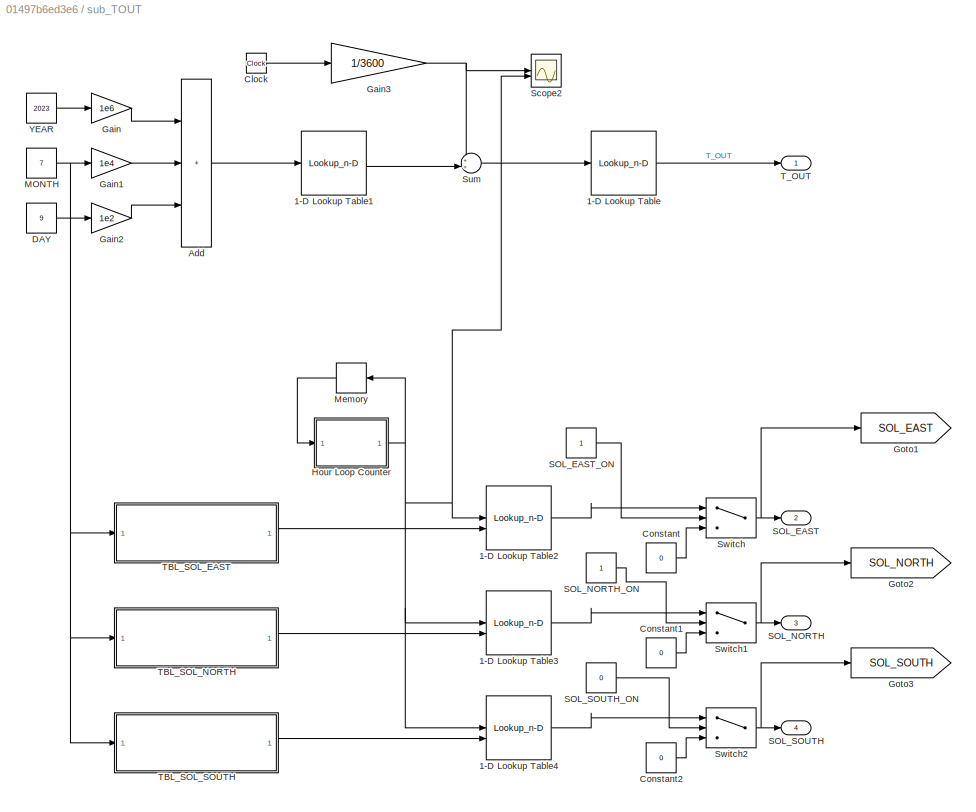
BLOCK [SubSystem] sub_TOUT
BLOCK [Lookup_n-D] sub_TOUT/1-D Lookup Table
  BreakpointsForDimension1 = TBL_TEMP.DATE_sec
  InputPortMap = u0
  InternalRulePriority = Speed
  NumberOfTableDimensions = 1
  RndMeth = Simplest
  Table = TBL_TEMP.T_C
BLOCK [Lookup_n-D] sub_TOUT/1-D Lookup Table1
  BreakpointsForDimension1 = TBL_TEMP.DATE_yyyymmddhh
  InputPortMap = u0
  InternalRulePriority = Speed
  NumberOfTableDimensions = 1
  RndMeth = Simplest
  Table = TBL_TEMP.DATE_sec
BLOCK [Lookup_n-D] sub_TOUT/1-D Lookup Table2
  BreakpointsForDimension1 = 0:1:23
  InputPortMap = u0,p221
  InternalRulePriority = Speed
  NumberOfTableDimensions = 1
  RndMeth = Simplest
  Table = tanh([-5:5])
  TableSource = Input port
BLOCK [Lookup_n-D] sub_TOUT/1-D Lookup Table3
  BreakpointsForDimension1 = 0:1:23
  InputPortMap = u0,p221
  InternalRulePriority = Speed
  NumberOfTableDimensions = 1
  RndMeth = Simplest
  Table = tanh([-5:5])
  TableSource = Input port
BLOCK [Lookup_n-D] sub_TOUT/1-D Lookup Table4
  BreakpointsForDimension1 = 0:1:23
  InputPortMap = u0,p221
  InternalRulePriority = Speed
  NumberOfTableDimensions = 1
  RndMeth = Simplest
  Table = tanh([-5:5])
  TableSource = Input port
BLOCK [Sum] sub_TOUT/Add
  IconShape = rectangular
  Inputs = +++
BLOCK [Clock] sub_TOUT/Clock
BLOCK [Constant] sub_TOUT/Constant
  Value = 0
BLOCK [Constant] sub_TOUT/Constant1
  Value = 0
BLOCK [Constant] sub_TOUT/Constant2
  Value = 0
BLOCK [Constant] sub_TOUT/DAY
  Value = 9
BLOCK [Gain] sub_TOUT/Gain
  Gain = 1e6
BLOCK [Gain] sub_TOUT/Gain1
  Gain = 1e4
BLOCK [Gain] sub_TOUT/Gain2
  Gain = 1e2
BLOCK [Gain] sub_TOUT/Gain3
  Gain = 1/3600
BLOCK [Goto] sub_TOUT/Goto1
  GotoTag = SOL_EAST
  TagVisibility = global
BLOCK [Goto] sub_TOUT/Goto2
  GotoTag = SOL_NORTH
  TagVisibility = global
BLOCK [Goto] sub_TOUT/Goto3
  GotoTag = SOL_SOUTH
  TagVisibility = global
BLOCK [SubSystem] sub_TOUT/Hour Loop Counter
  ErrorFcn = Stateflow.Translate.translate
  PermitHierarchicalResolution = ExplicitOnly
  SFBlockType = MATLAB Function
  TreatAsAtomicUnit = on
BLOCK [Demux] sub_TOUT/Hour Loop Counter/ Demux 
  Outputs = 1
BLOCK [S-Function] sub_TOUT/Hour Loop Counter/ SFunction 
  EnableBusSupport = on
  FunctionName = sf_sfun
  PortCounts = [1 2]
  SFcnIsStateOwnerBlock = off
  SFunctionDeploymentMode = off
  Tag = Stateflow S-Function 2
BLOCK [Terminator] sub_TOUT/Hour Loop Counter/ Terminator 
BLOCK [Outport] sub_TOUT/Hour Loop Counter/h
BLOCK [Inport] sub_TOUT/Hour Loop Counter/h 
BLOCK [Constant] sub_TOUT/MONTH
  Value = 7
BLOCK [Memory] sub_TOUT/Memory
BLOCK [Outport] sub_TOUT/SOL_EAST
  Port = 2
BLOCK [Constant] sub_TOUT/SOL_EAST_ON
BLOCK [Outport] sub_TOUT/SOL_NORTH
  Port = 3
BLOCK [Constant] sub_TOUT/SOL_NORTH_ON
BLOCK [Outport] sub_TOUT/SOL_SOUTH
  Port = 4
BLOCK [Constant] sub_TOUT/SOL_SOUTH_ON
  Value = 0
BLOCK [Scope] sub_TOUT/Scope2
  Floating = off
  NumInputPorts = 2
  ScopeSpecificationString = Simulink.scopes.TimeScopeBlockCfg('CurrentConfiguration', extmgr.ConfigurationSet(extmgr.Configuration('Core','General UI',true),extmgr.Configuration('Core','Source UI',true),extmgr.Configuration('Sources','WiredSimulink',true,'DataLoggingVariableName','ScopeData1'),extmgr.Configuration('Visuals','Time Domain',true,'SerializedDisplays',{struct('MinYLimReal','-12.92635','MaxYLimReal','116.33719','Y...<+1394ch>
BLOCK [Sum] sub_TOUT/Sum
  Inputs = ++|
BLOCK [Switch] sub_TOUT/Switch
  Criteria = u2 > Threshold
  InputSameDT = off
  SaturateOnIntegerOverflow = off
BLOCK [Switch] sub_TOUT/Switch1
  Criteria = u2 > Threshold
  InputSameDT = off
  SaturateOnIntegerOverflow = off
BLOCK [Switch] sub_TOUT/Switch2
  Criteria = u2 > Threshold
  InputSameDT = off
  SaturateOnIntegerOverflow = off
BLOCK [SubSystem] sub_TOUT/TBL_SOL_EAST
BLOCK [Constant] sub_TOUT/TBL_SOL_EAST/Constant
  Value = TBL_SOL_EAST_01.G
BLOCK [Constant] sub_TOUT/TBL_SOL_EAST/Constant1
  Value = TBL_SOL_EAST_02.G
BLOCK [Constant] sub_TOUT/TBL_SOL_EAST/Constant10
  Value = TBL_SOL_EAST_11.G
BLOCK [Constant] sub_TOUT/TBL_SOL_EAST/Constant11
  Value = TBL_SOL_EAST_12.G
BLOCK [Constant] sub_TOUT/TBL_SOL_EAST/Constant2
  Value = TBL_SOL_EAST_03.G
BLOCK [Constant] sub_TOUT/TBL_SOL_EAST/Constant3
  Value = TBL_SOL_EAST_04.G
BLOCK [Constant] sub_TOUT/TBL_SOL_EAST/Constant4
  Value = TBL_SOL_EAST_05.G
BLOCK [Constant] sub_TOUT/TBL_SOL_EAST/Constant5
  Value = TBL_SOL_EAST_06.G
BLOCK [Constant] sub_TOUT/TBL_SOL_EAST/Constant6
  Value = TBL_SOL_EAST_07.G
BLOCK [Constant] sub_TOUT/TBL_SOL_EAST/Constant7
  Value = TBL_SOL_EAST_08.G
BLOCK [Constant] sub_TOUT/TBL_SOL_EAST/Constant8
  Value = TBL_SOL_EAST_09.G
BLOCK [Constant] sub_TOUT/TBL_SOL_EAST/Constant9
  Value = TBL_SOL_EAST_10.G
BLOCK [Inport] sub_TOUT/TBL_SOL_EAST/Month
BLOCK [MultiPortSwitch] sub_TOUT/TBL_SOL_EAST/Multiport Switch
  InputSameDT = off
  Inputs = 12
  SaturateOnIntegerOverflow = off
BLOCK [Outport] sub_TOUT/TBL_SOL_EAST/TBL_SOL_EAST_DATA
BLOCK [SubSystem] sub_TOUT/TBL_SOL_NORTH
BLOCK [Constant] sub_TOUT/TBL_SOL_NORTH/Constant
  Value = TBL_SOL_NORTH_01.G
BLOCK [Constant] sub_TOUT/TBL_SOL_NORTH/Constant1
  Value = TBL_SOL_NORTH_02.G
BLOCK [Constant] sub_TOUT/TBL_SOL_NORTH/Constant10
  Value = TBL_SOL_NORTH_11.G
BLOCK [Constant] sub_TOUT/TBL_SOL_NORTH/Constant11
  Value = TBL_SOL_NORTH_12.G
BLOCK [Constant] sub_TOUT/TBL_SOL_NORTH/Constant2
  Value = TBL_SOL_NORTH_03.G
BLOCK [Constant] sub_TOUT/TBL_SOL_NORTH/Constant3
  Value = TBL_SOL_NORTH_04.G
BLOCK [Constant] sub_TOUT/TBL_SOL_NORTH/Constant4
  Value = TBL_SOL_NORTH_05.G
BLOCK [Constant] sub_TOUT/TBL_SOL_NORTH/Constant5
  Value = TBL_SOL_NORTH_06.G
BLOCK [Constant] sub_TOUT/TBL_SOL_NORTH/Constant6
  Value = TBL_SOL_NORTH_07.G
BLOCK [Constant] sub_TOUT/TBL_SOL_NORTH/Constant7
  Value = TBL_SOL_NORTH_08.G
BLOCK [Constant] sub_TOUT/TBL_SOL_NORTH/Constant8
  Value = TBL_SOL_NORTH_09.G
BLOCK [Constant] sub_TOUT/TBL_SOL_NORTH/Constant9
  Value = TBL_SOL_NORTH_10.G
BLOCK [Inport] sub_TOUT/TBL_SOL_NORTH/Month
BLOCK [MultiPortSwitch] sub_TOUT/TBL_SOL_NORTH/Multiport Switch
  InputSameDT = off
  Inputs = 12
  SaturateOnIntegerOverflow = off
BLOCK [Outport] sub_TOUT/TBL_SOL_NORTH/TBL_SOL_NORTH_DATA
BLOCK [SubSystem] sub_TOUT/TBL_SOL_SOUTH
BLOCK [Constant] sub_TOUT/TBL_SOL_SOUTH/Constant
  Value = TBL_SOL_SOUTH_01.G
BLOCK [Constant] sub_TOUT/TBL_SOL_SOUTH/Constant1
  Value = TBL_SOL_SOUTH_01.G
BLOCK [Constant] sub_TOUT/TBL_SOL_SOUTH/Constant10
  Value = TBL_SOL_SOUTH_01.G
BLOCK [Constant] sub_TOUT/TBL_SOL_SOUTH/Constant11
  Value = TBL_SOL_SOUTH_01.G
BLOCK [Constant] sub_TOUT/TBL_SOL_SOUTH/Constant2
  Value = TBL_SOL_SOUTH_01.G
BLOCK [Constant] sub_TOUT/TBL_SOL_SOUTH/Constant3
  Value = TBL_SOL_SOUTH_01.G
BLOCK [Constant] sub_TOUT/TBL_SOL_SOUTH/Constant4
  Value = TBL_SOL_SOUTH_01.G
BLOCK [Constant] sub_TOUT/TBL_SOL_SOUTH/Constant5
  Value = TBL_SOL_SOUTH_01.G
BLOCK [Constant] sub_TOUT/TBL_SOL_SOUTH/Constant6
  Value = TBL_SOL_SOUTH_01.G
BLOCK [Constant] sub_TOUT/TBL_SOL_SOUTH/Constant7
  Value = TBL_SOL_SOUTH_01.G
BLOCK [Constant] sub_TOUT/TBL_SOL_SOUTH/Constant8
  Value = TBL_SOL_SOUTH_01.G
BLOCK [Constant] sub_TOUT/TBL_SOL_SOUTH/Constant9
  Value = TBL_SOL_SOUTH_01.G
BLOCK [Inport] sub_TOUT/TBL_SOL_SOUTH/Month
BLOCK [MultiPortSwitch] sub_TOUT/TBL_SOL_SOUTH/Multiport Switch
  InputSameDT = off
  Inputs = 12
  SaturateOnIntegerOverflow = off
BLOCK [Outport] sub_TOUT/TBL_SOL_SOUTH/TBL_SOL_SOUTH_DATA
BLOCK [Outport] sub_TOUT/T_OUT
BLOCK [Constant] sub_TOUT/YEAR
  Value = 2023
BLOCK [SubSystem] untitledPanel
  IsWebBlockPanel = on
  Tag = HiddenForWebPanel
BLOCK [RadioButtonGroup] untitledPanel/Radio Button
  ButtonGroupName = Group
  PanelInfo = {"addnFilesFolder":"","height":230,"includeDebugPackages":false,"left":18,"outputFolder":"","panelId":"panelId-a10107d6-1e7d-451d-956e-0df6eada92c1","popoutMode":"","standaloneTitle":"","top":18,"type":"panelChild","version":"2019b","width":270,"zIndex":1500002}
  SelectedLabel = Label3
  Tag = HiddenForWebPanel
BLOCK [PanelWebBlock] untitledPanel/panelInfo
  PanelInfo = {"addnFilesFolder":"","compacted":false,"height":270,"includeDebugPackages":false,"isActiveTab":true,"left":296,"name":"Panel","outputFolder":"","panelId":"panelId-a10107d6-1e7d-451d-956e-0df6eada92c1","popoutData":{"height":334,"left":361,"maximized":false,"top":306,"width":324},"popoutMode":"windowHidden","standaloneTitle":"","tabIndex":0,"tabbedSetId":"tabbedSet8433950298","top":135,"type":"pan...<+66ch>
  Tag = HiddenForWebPanel
ANNOTATION (root): Based on a daily routine the 4 inhabitants of the apartment occupy different rooms at different times: 0-7 am: 2 kids in bedroom 1 and 2 adults in bedroom 2 sleeping 7am-5pm: 1 adult in home-office in the living room. Other adult at work and the 2 kids in school 5-7 pm: 2 adults in kitchen and 2 kids in bedroom 1 7-10 pm: all 4 inhabitants in the living room 10-12 pm: 2 adults in living room and 2...<+18ch>
ANNOTATION (root): SELECT TEMPERATURE
ANNOTATION (root): With this functionality the AC system automaticly gets activated when atleast one person is in the room
LINE Bedroom 1:1 -> sub_DailyRoutine:1
LINE Bedroom 2:1 -> sub_DailyRoutine:2
LINE Constant:1 -> sub_House:2
LINE From1:1 -> Scope3:7
LINE From2:1 -> Mux:1
LINE From3:1 -> Mux:2
LINE From4:1 -> Mux1:1
LINE From5:1 -> Mux1:2
LINE From6:1 -> Mux2:1
LINE From7:1 -> Mux2:2
LINE From:1 -> Memory:1
LINE Kitchen:1 -> sub_DailyRoutine:4
LINE Living room:1 -> sub_DailyRoutine:3
LINE Memory:1 -> sub_House:1
LINE Mux1:1 -> Scope:2
LINE Mux2:1 -> Scope:3
LINE Mux:1 -> Scope:1
LINE T_REF_BDR1:1 -> Goto4:1
LINE T_REF_BDR2:1 -> Goto5:1
LINE T_REF_LVR:1 -> Goto6:1
NET sub_DailyRoutine/DAILY_ROUTINE_ON:1 -> sub_DailyRoutine/Switch1:2, sub_DailyRoutine/Switch2:2, sub_DailyRoutine/Switch3:2, sub_DailyRoutine/Switch:2
LINE sub_DailyRoutine/Memory1:1 -> sub_DailyRoutine/Time of day:1
LINE sub_DailyRoutine/N_BDR1:1 -> sub_DailyRoutine/Switch:3
LINE sub_DailyRoutine/N_BDR2:1 -> sub_DailyRoutine/Switch1:3
LINE sub_DailyRoutine/N_KIT:1 -> sub_DailyRoutine/Switch3:3
LINE sub_DailyRoutine/N_LVR:1 -> sub_DailyRoutine/Switch2:3
LINE sub_DailyRoutine/Switch1:1 -> sub_DailyRoutine/Goto2:1
LINE sub_DailyRoutine/Switch2:1 -> sub_DailyRoutine/Goto3:1
LINE sub_DailyRoutine/Switch3:1 -> sub_DailyRoutine/Goto4:1
LINE sub_DailyRoutine/Switch:1 -> sub_DailyRoutine/Goto1:1
LINE sub_DailyRoutine/Time of day:1 -> sub_DailyRoutine/Memory1:1
LINE sub_DailyRoutine/Time of day:2 -> sub_DailyRoutine/Switch:1
LINE sub_DailyRoutine/Time of day:3 -> sub_DailyRoutine/Switch1:1
LINE sub_DailyRoutine/Time of day:4 -> sub_DailyRoutine/Switch2:1
LINE sub_DailyRoutine/Time of day:5 -> sub_DailyRoutine/Switch3:1
LINE sub_House/Bathroom/From1:1 -> sub_House/Bathroom/Inside Enivornment Temperature:1
LINE sub_House/Bathroom/From:1 -> sub_House/Bathroom/Outside Temperature:1
LINE sub_House/Bathroom/Inside Enivornment Temperature/Constant2:1 -> sub_House/Bathroom/Inside Enivornment Temperature/Sum:2
LINE sub_House/Bathroom/Inside Enivornment Temperature/Sum:1 -> sub_House/Bathroom/Inside Enivornment Temperature/Simulink-PS Converter1:1
LINE sub_House/Bathroom/Inside Enivornment Temperature/T_ENV:1 -> sub_House/Bathroom/Inside Enivornment Temperature/Sum:1
LINE sub_House/Bathroom/Outside Temperature/Constant2:1 -> sub_House/Bathroom/Outside Temperature/Sum:2
LINE sub_House/Bathroom/Outside Temperature/Sum:1 -> sub_House/Bathroom/Outside Temperature/Simulink-PS Converter1:1
LINE sub_House/Bathroom/Outside Temperature/T_OUT:1 -> sub_House/Bathroom/Outside Temperature/Sum:1
LINE sub_House/Bathroom/SOLAR__WALL/Add:1 -> sub_House/Bathroom/SOLAR__WALL/Simulink-PS Converter:1
LINE sub_House/Bathroom/SOLAR__WALL/Constant1:1 -> sub_House/Bathroom/SOLAR__WALL/Product:1
LINE sub_House/Bathroom/SOLAR__WALL/Constant2:1 -> sub_House/Bathroom/SOLAR__WALL/Product1:2
LINE sub_House/Bathroom/SOLAR__WALL/Constant3:1 -> sub_House/Bathroom/SOLAR__WALL/Product1:1
LINE sub_House/Bathroom/SOLAR__WALL/Constant:1 -> sub_House/Bathroom/SOLAR__WALL/Product:2
LINE sub_House/Bathroom/SOLAR__WALL/From1:1 -> sub_House/Bathroom/SOLAR__WALL/Product1:3
LINE sub_House/Bathroom/SOLAR__WALL/From2:1 -> sub_House/Bathroom/SOLAR__WALL/Product:3
LINE sub_House/Bathroom/SOLAR__WALL/Product1:1 -> sub_House/Bathroom/SOLAR__WALL/Add:2
LINE sub_House/Bathroom/SOLAR__WALL/Product:1 -> sub_House/Bathroom/SOLAR__WALL/Add:1
LINE sub_House/Bathroom/SOLAR__WINDOW/Constant1:1 -> sub_House/Bathroom/SOLAR__WINDOW/Product:1
LINE sub_House/Bathroom/SOLAR__WINDOW/Constant:1 -> sub_House/Bathroom/SOLAR__WINDOW/Product:2
LINE sub_House/Bathroom/SOLAR__WINDOW/From2:1 -> sub_House/Bathroom/SOLAR__WINDOW/Product:3
LINE sub_House/Bathroom/SOLAR__WINDOW/Product:1 -> sub_House/Bathroom/SOLAR__WINDOW/Simulink-PS Converter:1
LINE sub_House/Bathroom/TEMP_01/Constant2:1 -> sub_House/Bathroom/TEMP_01/Sum:2
LINE sub_House/Bathroom/TEMP_01/PS-Simulink Converter:1 -> sub_House/Bathroom/TEMP_01/Sum:1
LINE sub_House/Bathroom/TEMP_01/Sum:1 -> sub_House/Bathroom/TEMP_01/Sim:1
LINE sub_House/Bathroom/TEMP_01:1 -> sub_House/Bathroom/T_BATH:1
LINE sub_House/Bathroom:1 -> sub_House/T_BATH:1
LINE sub_House/Bedroom 1/AirConditioning/AC_ON_BDR1:1 -> sub_House/Bedroom 1/AirConditioning/AC_scheduling:1
LINE sub_House/Bedroom 1/AirConditioning/AC_SCHEDULING:1 -> sub_House/Bedroom 1/AirConditioning/NOT:1
LINE sub_House/Bedroom 1/AirConditioning/AC_scheduling/Constant1:1 -> sub_House/Bedroom 1/AirConditioning/AC_scheduling/Switch:3
LINE sub_House/Bedroom 1/AirConditioning/AC_scheduling/Constant2:1 -> sub_House/Bedroom 1/AirConditioning/AC_scheduling/Switch:1
LINE sub_House/Bedroom 1/AirConditioning/AC_scheduling/Constant:1 -> sub_House/Bedroom 1/AirConditioning/AC_scheduling/Switch2:3
LINE sub_House/Bedroom 1/AirConditioning/AC_scheduling/From2:1 -> sub_House/Bedroom 1/AirConditioning/AC_scheduling/Switch:2
LINE sub_House/Bedroom 1/AirConditioning/AC_scheduling/In1:1 -> sub_House/Bedroom 1/AirConditioning/AC_scheduling/Switch2:2
NET sub_House/Bedroom 1/AirConditioning/AC_scheduling/In2:1 -> sub_House/Bedroom 1/AirConditioning/AC_scheduling/Product:1, sub_House/Bedroom 1/AirConditioning/AC_scheduling/Switch1:1
LINE sub_House/Bedroom 1/AirConditioning/AC_scheduling/In3:1 -> sub_House/Bedroom 1/AirConditioning/AC_scheduling/Switch1:2
LINE sub_House/Bedroom 1/AirConditioning/AC_scheduling/Product:1 -> sub_House/Bedroom 1/AirConditioning/AC_scheduling/Switch1:3
LINE sub_House/Bedroom 1/AirConditioning/AC_scheduling/Switch1:1 -> sub_House/Bedroom 1/AirConditioning/AC_scheduling/Switch2:1
LINE sub_House/Bedroom 1/AirConditioning/AC_scheduling/Switch2:1 -> sub_House/Bedroom 1/AirConditioning/AC_scheduling/Out1:1
LINE sub_House/Bedroom 1/AirConditioning/AC_scheduling/Switch:1 -> sub_House/Bedroom 1/AirConditioning/AC_scheduling/Product:2
LINE sub_House/Bedroom 1/AirConditioning/AC_scheduling:1 -> sub_House/Bedroom 1/AirConditioning/sub_AC:1
LINE sub_House/Bedroom 1/AirConditioning/From1:1 -> sub_House/Bedroom 1/AirConditioning/Sum:1
LINE sub_House/Bedroom 1/AirConditioning/From2:1 -> sub_House/Bedroom 1/AirConditioning/AC_scheduling:2
NET sub_House/Bedroom 1/AirConditioning/From:1 -> sub_House/Bedroom 1/AirConditioning/Sum:2, sub_House/Bedroom 1/AirConditioning/sub_Cooling:2, sub_House/Bedroom 1/AirConditioning/sub_Heating:2
LINE sub_House/Bedroom 1/AirConditioning/NOT:1 -> sub_House/Bedroom 1/AirConditioning/Goto:1
LINE sub_House/Bedroom 1/AirConditioning/Sum:1 -> sub_House/Bedroom 1/AirConditioning/AC_scheduling:3
NET sub_House/Bedroom 1/AirConditioning/sub_AC/AC Unit (PI):1 -> sub_House/Bedroom 1/AirConditioning/sub_AC/Gain:1, sub_House/Bedroom 1/AirConditioning/sub_AC/Saturation:1
LINE sub_House/Bedroom 1/AirConditioning/sub_AC/Gain:1 -> sub_House/Bedroom 1/AirConditioning/sub_AC/Saturation1:1
LINE sub_House/Bedroom 1/AirConditioning/sub_AC/SWITCH:1 -> sub_House/Bedroom 1/AirConditioning/sub_AC/AC Unit (PI):1
LINE sub_House/Bedroom 1/AirConditioning/sub_AC/Saturation1:1 -> sub_House/Bedroom 1/AirConditioning/sub_AC/COOLING:1
LINE sub_House/Bedroom 1/AirConditioning/sub_AC/Saturation:1 -> sub_House/Bedroom 1/AirConditioning/sub_AC/HEAT:1
NET sub_House/Bedroom 1/AirConditioning/sub_AC:1 -> sub_House/Bedroom 1/AirConditioning/Goto1:1, sub_House/Bedroom 1/AirConditioning/sub_Heating:1
NET sub_House/Bedroom 1/AirConditioning/sub_AC:2 -> sub_House/Bedroom 1/AirConditioning/Goto2:1, sub_House/Bedroom 1/AirConditioning/sub_Cooling:1
LINE sub_House/Bedroom 1/AirConditioning/sub_Cooling/Constant2:1 -> sub_House/Bedroom 1/AirConditioning/sub_Cooling/Sum:2
LINE sub_House/Bedroom 1/AirConditioning/sub_Cooling/Gain:1 -> sub_House/Bedroom 1/AirConditioning/sub_Cooling/Product:2
LINE sub_House/Bedroom 1/AirConditioning/sub_Cooling/Product:1 -> sub_House/Bedroom 1/AirConditioning/sub_Cooling/Transfer Fcn:1
LINE sub_House/Bedroom 1/AirConditioning/sub_Cooling/SWITCH:1 -> sub_House/Bedroom 1/AirConditioning/sub_Cooling/Product:1
LINE sub_House/Bedroom 1/AirConditioning/sub_Cooling/Sum:1 -> sub_House/Bedroom 1/AirConditioning/sub_Cooling/Gain:1
LINE sub_House/Bedroom 1/AirConditioning/sub_Cooling/T_BDR:1 -> sub_House/Bedroom 1/AirConditioning/sub_Cooling/Sum:1
LINE sub_House/Bedroom 1/AirConditioning/sub_Cooling/Transfer Fcn:1 -> sub_House/Bedroom 1/AirConditioning/sub_Cooling/P_COOL:1
LINE sub_House/Bedroom 1/AirConditioning/sub_Cooling:1 -> sub_House/Bedroom 1/AirConditioning/Simulink-PS Converter4:1
LINE sub_House/Bedroom 1/AirConditioning/sub_Heating/Constant2:1 -> sub_House/Bedroom 1/AirConditioning/sub_Heating/Sum:2
LINE sub_House/Bedroom 1/AirConditioning/sub_Heating/Gain:1 -> sub_House/Bedroom 1/AirConditioning/sub_Heating/Product:2
LINE sub_House/Bedroom 1/AirConditioning/sub_Heating/Product:1 -> sub_House/Bedroom 1/AirConditioning/sub_Heating/Transfer Fcn:1
LINE sub_House/Bedroom 1/AirConditioning/sub_Heating/SWITCH:1 -> sub_House/Bedroom 1/AirConditioning/sub_Heating/Product:1
LINE sub_House/Bedroom 1/AirConditioning/sub_Heating/Sum:1 -> sub_House/Bedroom 1/AirConditioning/sub_Heating/Gain:1
LINE sub_House/Bedroom 1/AirConditioning/sub_Heating/T_BDR:1 -> sub_House/Bedroom 1/AirConditioning/sub_Heating/Sum:1
LINE sub_House/Bedroom 1/AirConditioning/sub_Heating/Transfer Fcn:1 -> sub_House/Bedroom 1/AirConditioning/sub_Heating/P_HEAT:1
LINE sub_House/Bedroom 1/AirConditioning/sub_Heating:1 -> sub_House/Bedroom 1/AirConditioning/Simulink-PS Converter:1
LINE sub_House/Bedroom 1/From1:1 -> sub_House/Bedroom 1/Inside Enivornment Temperature:1
LINE sub_House/Bedroom 1/From:1 -> sub_House/Bedroom 1/Outside Temperature:1
LINE sub_House/Bedroom 1/Heat source human/Constant:1 -> sub_House/Bedroom 1/Heat source human/Product:2
LINE sub_House/Bedroom 1/Heat source human/From2:1 -> sub_House/Bedroom 1/Heat source human/Product:1
LINE sub_House/Bedroom 1/Heat source human/Product:1 -> sub_House/Bedroom 1/Heat source human/Simulink-PS Converter:1
LINE sub_House/Bedroom 1/Inside Enivornment Temperature/Constant2:1 -> sub_House/Bedroom 1/Inside Enivornment Temperature/Sum:2
LINE sub_House/Bedroom 1/Inside Enivornment Temperature/Sum:1 -> sub_House/Bedroom 1/Inside Enivornment Temperature/Simulink-PS Converter1:1
LINE sub_House/Bedroom 1/Inside Enivornment Temperature/T_ENV:1 -> sub_House/Bedroom 1/Inside Enivornment Temperature/Sum:1
LINE sub_House/Bedroom 1/Outside Temperature/Constant2:1 -> sub_House/Bedroom 1/Outside Temperature/Sum:2
LINE sub_House/Bedroom 1/Outside Temperature/Sum:1 -> sub_House/Bedroom 1/Outside Temperature/Simulink-PS Converter1:1
LINE sub_House/Bedroom 1/Outside Temperature/T_OUT:1 -> sub_House/Bedroom 1/Outside Temperature/Sum:1
LINE sub_House/Bedroom 1/SOLAR__WALL/Constant1:1 -> sub_House/Bedroom 1/SOLAR__WALL/Product:1
LINE sub_House/Bedroom 1/SOLAR__WALL/Constant:1 -> sub_House/Bedroom 1/SOLAR__WALL/Product:2
LINE sub_House/Bedroom 1/SOLAR__WALL/From2:1 -> sub_House/Bedroom 1/SOLAR__WALL/Product:3
LINE sub_House/Bedroom 1/SOLAR__WALL/Product:1 -> sub_House/Bedroom 1/SOLAR__WALL/Simulink-PS Converter:1
LINE sub_House/Bedroom 1/SOLAR__WINDOW/Constant1:1 -> sub_House/Bedroom 1/SOLAR__WINDOW/Product:1
LINE sub_House/Bedroom 1/SOLAR__WINDOW/Constant:1 -> sub_House/Bedroom 1/SOLAR__WINDOW/Product:2
LINE sub_House/Bedroom 1/SOLAR__WINDOW/From2:1 -> sub_House/Bedroom 1/SOLAR__WINDOW/Product:3
LINE sub_House/Bedroom 1/SOLAR__WINDOW/Product:1 -> sub_House/Bedroom 1/SOLAR__WINDOW/Simulink-PS Converter:1
LINE sub_House/Bedroom 1/TEMP_01/Constant2:1 -> sub_House/Bedroom 1/TEMP_01/Sum:2
LINE sub_House/Bedroom 1/TEMP_01/PS-Simulink Converter:1 -> sub_House/Bedroom 1/TEMP_01/Sum:1
LINE sub_House/Bedroom 1/TEMP_01/Sum:1 -> sub_House/Bedroom 1/TEMP_01/Sim:1
LINE sub_House/Bedroom 1/TEMP_01:1 -> sub_House/Bedroom 1/T_BDR1:1
LINE sub_House/Bedroom 1:1 -> sub_House/T_BDR1:1
LINE sub_House/Bedroom 2/AirConditioning/AC_ON_BDR2:1 -> sub_House/Bedroom 2/AirConditioning/AC_scheduling1:1
LINE sub_House/Bedroom 2/AirConditioning/AC_scheduling1/Constant1:1 -> sub_House/Bedroom 2/AirConditioning/AC_scheduling1/Switch:3
LINE sub_House/Bedroom 2/AirConditioning/AC_scheduling1/Constant2:1 -> sub_House/Bedroom 2/AirConditioning/AC_scheduling1/Switch:1
LINE sub_House/Bedroom 2/AirConditioning/AC_scheduling1/Constant:1 -> sub_House/Bedroom 2/AirConditioning/AC_scheduling1/Switch2:3
LINE sub_House/Bedroom 2/AirConditioning/AC_scheduling1/From2:1 -> sub_House/Bedroom 2/AirConditioning/AC_scheduling1/Switch:2
LINE sub_House/Bedroom 2/AirConditioning/AC_scheduling1/In1:1 -> sub_House/Bedroom 2/AirConditioning/AC_scheduling1/Switch2:2
NET sub_House/Bedroom 2/AirConditioning/AC_scheduling1/In2:1 -> sub_House/Bedroom 2/AirConditioning/AC_scheduling1/Product:1, sub_House/Bedroom 2/AirConditioning/AC_scheduling1/Switch1:1
LINE sub_House/Bedroom 2/AirConditioning/AC_scheduling1/In3:1 -> sub_House/Bedroom 2/AirConditioning/AC_scheduling1/Switch1:2
LINE sub_House/Bedroom 2/AirConditioning/AC_scheduling1/Product:1 -> sub_House/Bedroom 2/AirConditioning/AC_scheduling1/Switch1:3
LINE sub_House/Bedroom 2/AirConditioning/AC_scheduling1/Switch1:1 -> sub_House/Bedroom 2/AirConditioning/AC_scheduling1/Switch2:1
LINE sub_House/Bedroom 2/AirConditioning/AC_scheduling1/Switch2:1 -> sub_House/Bedroom 2/AirConditioning/AC_scheduling1/SWITCH:1
LINE sub_House/Bedroom 2/AirConditioning/AC_scheduling1/Switch:1 -> sub_House/Bedroom 2/AirConditioning/AC_scheduling1/Product:2
LINE sub_House/Bedroom 2/AirConditioning/AC_scheduling1:1 -> sub_House/Bedroom 2/AirConditioning/sub_AC:1
LINE sub_House/Bedroom 2/AirConditioning/From1:1 -> sub_House/Bedroom 2/AirConditioning/Sum:1
LINE sub_House/Bedroom 2/AirConditioning/From2:1 -> sub_House/Bedroom 2/AirConditioning/AC_scheduling1:2
NET sub_House/Bedroom 2/AirConditioning/From:1 -> sub_House/Bedroom 2/AirConditioning/Sum:2, sub_House/Bedroom 2/AirConditioning/sub_Cooling:2, sub_House/Bedroom 2/AirConditioning/sub_Heating:2
LINE sub_House/Bedroom 2/AirConditioning/Sum:1 -> sub_House/Bedroom 2/AirConditioning/AC_scheduling1:3
NET sub_House/Bedroom 2/AirConditioning/sub_AC/AC Unit (PI):1 -> sub_House/Bedroom 2/AirConditioning/sub_AC/Gain:1, sub_House/Bedroom 2/AirConditioning/sub_AC/Saturation:1
LINE sub_House/Bedroom 2/AirConditioning/sub_AC/Gain:1 -> sub_House/Bedroom 2/AirConditioning/sub_AC/Saturation1:1
LINE sub_House/Bedroom 2/AirConditioning/sub_AC/SWITCH:1 -> sub_House/Bedroom 2/AirConditioning/sub_AC/AC Unit (PI):1
LINE sub_House/Bedroom 2/AirConditioning/sub_AC/Saturation1:1 -> sub_House/Bedroom 2/AirConditioning/sub_AC/COOLING:1
LINE sub_House/Bedroom 2/AirConditioning/sub_AC/Saturation:1 -> sub_House/Bedroom 2/AirConditioning/sub_AC/HEAT:1
NET sub_House/Bedroom 2/AirConditioning/sub_AC:1 -> sub_House/Bedroom 2/AirConditioning/Goto1:1, sub_House/Bedroom 2/AirConditioning/sub_Heating:1
NET sub_House/Bedroom 2/AirConditioning/sub_AC:2 -> sub_House/Bedroom 2/AirConditioning/Goto2:1, sub_House/Bedroom 2/AirConditioning/sub_Cooling:1
LINE sub_House/Bedroom 2/AirConditioning/sub_Cooling/Constant2:1 -> sub_House/Bedroom 2/AirConditioning/sub_Cooling/Sum:2
LINE sub_House/Bedroom 2/AirConditioning/sub_Cooling/Gain:1 -> sub_House/Bedroom 2/AirConditioning/sub_Cooling/Product:2
LINE sub_House/Bedroom 2/AirConditioning/sub_Cooling/Product:1 -> sub_House/Bedroom 2/AirConditioning/sub_Cooling/Transfer Fcn:1
LINE sub_House/Bedroom 2/AirConditioning/sub_Cooling/SWITCH:1 -> sub_House/Bedroom 2/AirConditioning/sub_Cooling/Product:1
LINE sub_House/Bedroom 2/AirConditioning/sub_Cooling/Sum:1 -> sub_House/Bedroom 2/AirConditioning/sub_Cooling/Gain:1
LINE sub_House/Bedroom 2/AirConditioning/sub_Cooling/T_BDR:1 -> sub_House/Bedroom 2/AirConditioning/sub_Cooling/Sum:1
LINE sub_House/Bedroom 2/AirConditioning/sub_Cooling/Transfer Fcn:1 -> sub_House/Bedroom 2/AirConditioning/sub_Cooling/P_COOL:1
LINE sub_House/Bedroom 2/AirConditioning/sub_Cooling:1 -> sub_House/Bedroom 2/AirConditioning/Simulink-PS Converter4:1
LINE sub_House/Bedroom 2/AirConditioning/sub_Heating/Constant2:1 -> sub_House/Bedroom 2/AirConditioning/sub_Heating/Sum:2
LINE sub_House/Bedroom 2/AirConditioning/sub_Heating/Gain:1 -> sub_House/Bedroom 2/AirConditioning/sub_Heating/Product:2
LINE sub_House/Bedroom 2/AirConditioning/sub_Heating/Product:1 -> sub_House/Bedroom 2/AirConditioning/sub_Heating/Transfer Fcn:1
LINE sub_House/Bedroom 2/AirConditioning/sub_Heating/SWITCH:1 -> sub_House/Bedroom 2/AirConditioning/sub_Heating/Product:1
LINE sub_House/Bedroom 2/AirConditioning/sub_Heating/Sum:1 -> sub_House/Bedroom 2/AirConditioning/sub_Heating/Gain:1
LINE sub_House/Bedroom 2/AirConditioning/sub_Heating/T_BDR:1 -> sub_House/Bedroom 2/AirConditioning/sub_Heating/Sum:1
LINE sub_House/Bedroom 2/AirConditioning/sub_Heating/Transfer Fcn:1 -> sub_House/Bedroom 2/AirConditioning/sub_Heating/P_HEAT:1
LINE sub_House/Bedroom 2/AirConditioning/sub_Heating:1 -> sub_House/Bedroom 2/AirConditioning/Simulink-PS Converter:1
LINE sub_House/Bedroom 2/From1:1 -> sub_House/Bedroom 2/Inside Enivornment Temperature:1
LINE sub_House/Bedroom 2/From:1 -> sub_House/Bedroom 2/Outside Temperature:1
LINE sub_House/Bedroom 2/Heat source human/Constant:1 -> sub_House/Bedroom 2/Heat source human/Product:2
LINE sub_House/Bedroom 2/Heat source human/From2:1 -> sub_House/Bedroom 2/Heat source human/Product:1
LINE sub_House/Bedroom 2/Heat source human/Product:1 -> sub_House/Bedroom 2/Heat source human/Simulink-PS Converter:1
LINE sub_House/Bedroom 2/Inside Enivornment Temperature/Constant2:1 -> sub_House/Bedroom 2/Inside Enivornment Temperature/Sum:2
LINE sub_House/Bedroom 2/Inside Enivornment Temperature/Sum:1 -> sub_House/Bedroom 2/Inside Enivornment Temperature/Simulink-PS Converter1:1
LINE sub_House/Bedroom 2/Inside Enivornment Temperature/T_ENV:1 -> sub_House/Bedroom 2/Inside Enivornment Temperature/Sum:1
LINE sub_House/Bedroom 2/Outside Temperature/Constant2:1 -> sub_House/Bedroom 2/Outside Temperature/Sum:2
LINE sub_House/Bedroom 2/Outside Temperature/Sum:1 -> sub_House/Bedroom 2/Outside Temperature/Simulink-PS Converter1:1
LINE sub_House/Bedroom 2/Outside Temperature/T_OUT:1 -> sub_House/Bedroom 2/Outside Temperature/Sum:1
LINE sub_House/Bedroom 2/SOLAR__WALL/Add:1 -> sub_House/Bedroom 2/SOLAR__WALL/Simulink-PS Converter:1
LINE sub_House/Bedroom 2/SOLAR__WALL/Constant1:1 -> sub_House/Bedroom 2/SOLAR__WALL/Product:1
LINE sub_House/Bedroom 2/SOLAR__WALL/Constant2:1 -> sub_House/Bedroom 2/SOLAR__WALL/Product1:2
LINE sub_House/Bedroom 2/SOLAR__WALL/Constant3:1 -> sub_House/Bedroom 2/SOLAR__WALL/Product1:1
LINE sub_House/Bedroom 2/SOLAR__WALL/Constant:1 -> sub_House/Bedroom 2/SOLAR__WALL/Product:2
LINE sub_House/Bedroom 2/SOLAR__WALL/From1:1 -> sub_House/Bedroom 2/SOLAR__WALL/Product1:3
LINE sub_House/Bedroom 2/SOLAR__WALL/From2:1 -> sub_House/Bedroom 2/SOLAR__WALL/Product:3
LINE sub_House/Bedroom 2/SOLAR__WALL/Product1:1 -> sub_House/Bedroom 2/SOLAR__WALL/Add:2
LINE sub_House/Bedroom 2/SOLAR__WALL/Product:1 -> sub_House/Bedroom 2/SOLAR__WALL/Add:1
LINE sub_House/Bedroom 2/SOLAR__WINDOW/Add:1 -> sub_House/Bedroom 2/SOLAR__WINDOW/Simulink-PS Converter:1
LINE sub_House/Bedroom 2/SOLAR__WINDOW/Constant1:1 -> sub_House/Bedroom 2/SOLAR__WINDOW/Product:1
LINE sub_House/Bedroom 2/SOLAR__WINDOW/Constant2:1 -> sub_House/Bedroom 2/SOLAR__WINDOW/Product1:2
LINE sub_House/Bedroom 2/SOLAR__WINDOW/Constant3:1 -> sub_House/Bedroom 2/SOLAR__WINDOW/Product1:1
LINE sub_House/Bedroom 2/SOLAR__WINDOW/Constant:1 -> sub_House/Bedroom 2/SOLAR__WINDOW/Product:2
LINE sub_House/Bedroom 2/SOLAR__WINDOW/From1:1 -> sub_House/Bedroom 2/SOLAR__WINDOW/Product1:3
LINE sub_House/Bedroom 2/SOLAR__WINDOW/From2:1 -> sub_House/Bedroom 2/SOLAR__WINDOW/Product:3
LINE sub_House/Bedroom 2/SOLAR__WINDOW/Product1:1 -> sub_House/Bedroom 2/SOLAR__WINDOW/Add:2
LINE sub_House/Bedroom 2/SOLAR__WINDOW/Product:1 -> sub_House/Bedroom 2/SOLAR__WINDOW/Add:1
LINE sub_House/Bedroom 2/TEMP_01/Constant2:1 -> sub_House/Bedroom 2/TEMP_01/Sum:2
LINE sub_House/Bedroom 2/TEMP_01/PS-Simulink Converter:1 -> sub_House/Bedroom 2/TEMP_01/Sum:1
LINE sub_House/Bedroom 2/TEMP_01/Sum:1 -> sub_House/Bedroom 2/TEMP_01/Sim:1
LINE sub_House/Bedroom 2/TEMP_01:1 -> sub_House/Bedroom 2/T_BDR2:1
LINE sub_House/Bedroom 2:1 -> sub_House/T_BDR2:1
LINE sub_House/Hallway/From1:1 -> sub_House/Hallway/Inside Enivornment Temperature:1
LINE sub_House/Hallway/From:1 -> sub_House/Hallway/Outside Temperature:1
LINE sub_House/Hallway/Inside Enivornment Temperature/Constant2:1 -> sub_House/Hallway/Inside Enivornment Temperature/Sum:2
LINE sub_House/Hallway/Inside Enivornment Temperature/Sum:1 -> sub_House/Hallway/Inside Enivornment Temperature/Simulink-PS Converter1:1
LINE sub_House/Hallway/Inside Enivornment Temperature/T_ENV:1 -> sub_House/Hallway/Inside Enivornment Temperature/Sum:1
LINE sub_House/Hallway/Outside Temperature/Constant2:1 -> sub_House/Hallway/Outside Temperature/Sum:2
LINE sub_House/Hallway/Outside Temperature/Sum:1 -> sub_House/Hallway/Outside Temperature/Simulink-PS Converter1:1
LINE sub_House/Hallway/Outside Temperature/T_OUT:1 -> sub_House/Hallway/Outside Temperature/Sum:1
LINE sub_House/Hallway/TEMP_01/Constant2:1 -> sub_House/Hallway/TEMP_01/Sum:2
LINE sub_House/Hallway/TEMP_01/PS-Simulink Converter:1 -> sub_House/Hallway/TEMP_01/Sum:1
LINE sub_House/Hallway/TEMP_01/Sum:1 -> sub_House/Hallway/TEMP_01/Sim:1
LINE sub_House/Hallway/TEMP_01:1 -> sub_House/Hallway/T_HALL:1
LINE sub_House/Hallway:1 -> sub_House/T_HALL:1
LINE sub_House/Kitchen/From1:1 -> sub_House/Kitchen/Inside Enivornment Temperature:1
LINE sub_House/Kitchen/From:1 -> sub_House/Kitchen/Outside Temperature:1
LINE sub_House/Kitchen/Heat source human/Constant:1 -> sub_House/Kitchen/Heat source human/Product:2
LINE sub_House/Kitchen/Heat source human/From2:1 -> sub_House/Kitchen/Heat source human/Product:1
LINE sub_House/Kitchen/Heat source human/Product:1 -> sub_House/Kitchen/Heat source human/Simulink-PS Converter:1
LINE sub_House/Kitchen/Inside Enivornment Temperature/Constant2:1 -> sub_House/Kitchen/Inside Enivornment Temperature/Sum:2
LINE sub_House/Kitchen/Inside Enivornment Temperature/Sum:1 -> sub_House/Kitchen/Inside Enivornment Temperature/Simulink-PS Converter1:1
LINE sub_House/Kitchen/Inside Enivornment Temperature/T_ENV:1 -> sub_House/Kitchen/Inside Enivornment Temperature/Sum:1
LINE sub_House/Kitchen/Outside Temperature/Constant2:1 -> sub_House/Kitchen/Outside Temperature/Sum:2
LINE sub_House/Kitchen/Outside Temperature/Sum:1 -> sub_House/Kitchen/Outside Temperature/Simulink-PS Converter1:1
LINE sub_House/Kitchen/Outside Temperature/T_OUT:1 -> sub_House/Kitchen/Outside Temperature/Sum:1
LINE sub_House/Kitchen/SOLAR__WALL/Add:1 -> sub_House/Kitchen/SOLAR__WALL/Simulink-PS Converter:1
LINE sub_House/Kitchen/SOLAR__WALL/Constant1:1 -> sub_House/Kitchen/SOLAR__WALL/Product:1
LINE sub_House/Kitchen/SOLAR__WALL/Constant2:1 -> sub_House/Kitchen/SOLAR__WALL/Product1:2
LINE sub_House/Kitchen/SOLAR__WALL/Constant3:1 -> sub_House/Kitchen/SOLAR__WALL/Product1:1
LINE sub_House/Kitchen/SOLAR__WALL/Constant:1 -> sub_House/Kitchen/SOLAR__WALL/Product:2
LINE sub_House/Kitchen/SOLAR__WALL/From1:1 -> sub_House/Kitchen/SOLAR__WALL/Product1:3
LINE sub_House/Kitchen/SOLAR__WALL/From2:1 -> sub_House/Kitchen/SOLAR__WALL/Product:3
LINE sub_House/Kitchen/SOLAR__WALL/Product1:1 -> sub_House/Kitchen/SOLAR__WALL/Add:2
LINE sub_House/Kitchen/SOLAR__WALL/Product:1 -> sub_House/Kitchen/SOLAR__WALL/Add:1
LINE sub_House/Kitchen/SOLAR__WINDOW/Constant1:1 -> sub_House/Kitchen/SOLAR__WINDOW/Product:1
LINE sub_House/Kitchen/SOLAR__WINDOW/Constant:1 -> sub_House/Kitchen/SOLAR__WINDOW/Product:2
LINE sub_House/Kitchen/SOLAR__WINDOW/From2:1 -> sub_House/Kitchen/SOLAR__WINDOW/Product:3
LINE sub_House/Kitchen/SOLAR__WINDOW/Product:1 -> sub_House/Kitchen/SOLAR__WINDOW/Simulink-PS Converter:1
LINE sub_House/Kitchen/TEMP_01/Constant2:1 -> sub_House/Kitchen/TEMP_01/Sum:2
LINE sub_House/Kitchen/TEMP_01/PS-Simulink Converter:1 -> sub_House/Kitchen/TEMP_01/Sum:1
LINE sub_House/Kitchen/TEMP_01/Sum:1 -> sub_House/Kitchen/TEMP_01/Sim:1
LINE sub_House/Kitchen/TEMP_01:1 -> sub_House/Kitchen/T_KIT:1
LINE sub_House/Kitchen:1 -> sub_House/T_KIT:1
LINE sub_House/Living Room/AirConditioning/AC_ON_LVR:1 -> sub_House/Living Room/AirConditioning/AC_scheduling1:1
LINE sub_House/Living Room/AirConditioning/AC_scheduling1/Constant1:1 -> sub_House/Living Room/AirConditioning/AC_scheduling1/Switch:3
LINE sub_House/Living Room/AirConditioning/AC_scheduling1/Constant2:1 -> sub_House/Living Room/AirConditioning/AC_scheduling1/Switch:1
LINE sub_House/Living Room/AirConditioning/AC_scheduling1/Constant:1 -> sub_House/Living Room/AirConditioning/AC_scheduling1/Switch2:3
LINE sub_House/Living Room/AirConditioning/AC_scheduling1/From2:1 -> sub_House/Living Room/AirConditioning/AC_scheduling1/Switch:2
LINE sub_House/Living Room/AirConditioning/AC_scheduling1/In1:1 -> sub_House/Living Room/AirConditioning/AC_scheduling1/Switch2:2
NET sub_House/Living Room/AirConditioning/AC_scheduling1/In2:1 -> sub_House/Living Room/AirConditioning/AC_scheduling1/Product:1, sub_House/Living Room/AirConditioning/AC_scheduling1/Switch1:1
LINE sub_House/Living Room/AirConditioning/AC_scheduling1/In3:1 -> sub_House/Living Room/AirConditioning/AC_scheduling1/Switch1:2
LINE sub_House/Living Room/AirConditioning/AC_scheduling1/Product:1 -> sub_House/Living Room/AirConditioning/AC_scheduling1/Switch1:3
LINE sub_House/Living Room/AirConditioning/AC_scheduling1/Switch1:1 -> sub_House/Living Room/AirConditioning/AC_scheduling1/Switch2:1
LINE sub_House/Living Room/AirConditioning/AC_scheduling1/Switch2:1 -> sub_House/Living Room/AirConditioning/AC_scheduling1/SWITCH:1
LINE sub_House/Living Room/AirConditioning/AC_scheduling1/Switch:1 -> sub_House/Living Room/AirConditioning/AC_scheduling1/Product:2
LINE sub_House/Living Room/AirConditioning/AC_scheduling1:1 -> sub_House/Living Room/AirConditioning/sub_AC:1
LINE sub_House/Living Room/AirConditioning/From1:1 -> sub_House/Living Room/AirConditioning/Sum:1
LINE sub_House/Living Room/AirConditioning/From2:1 -> sub_House/Living Room/AirConditioning/AC_scheduling1:2
NET sub_House/Living Room/AirConditioning/From:1 -> sub_House/Living Room/AirConditioning/Sum:2, sub_House/Living Room/AirConditioning/sub_Cooling:2, sub_House/Living Room/AirConditioning/sub_Heating:2
LINE sub_House/Living Room/AirConditioning/Sum:1 -> sub_House/Living Room/AirConditioning/AC_scheduling1:3
NET sub_House/Living Room/AirConditioning/sub_AC/AC Unit (PI):1 -> sub_House/Living Room/AirConditioning/sub_AC/Gain:1, sub_House/Living Room/AirConditioning/sub_AC/Saturation:1
LINE sub_House/Living Room/AirConditioning/sub_AC/Gain:1 -> sub_House/Living Room/AirConditioning/sub_AC/Saturation1:1
LINE sub_House/Living Room/AirConditioning/sub_AC/SWITCH:1 -> sub_House/Living Room/AirConditioning/sub_AC/AC Unit (PI):1
LINE sub_House/Living Room/AirConditioning/sub_AC/Saturation1:1 -> sub_House/Living Room/AirConditioning/sub_AC/COOLING:1
LINE sub_House/Living Room/AirConditioning/sub_AC/Saturation:1 -> sub_House/Living Room/AirConditioning/sub_AC/HEAT:1
NET sub_House/Living Room/AirConditioning/sub_AC:1 -> sub_House/Living Room/AirConditioning/Goto1:1, sub_House/Living Room/AirConditioning/sub_Heating:1
NET sub_House/Living Room/AirConditioning/sub_AC:2 -> sub_House/Living Room/AirConditioning/Goto2:1, sub_House/Living Room/AirConditioning/sub_Cooling:1
LINE sub_House/Living Room/AirConditioning/sub_Cooling/Constant2:1 -> sub_House/Living Room/AirConditioning/sub_Cooling/Sum:2
LINE sub_House/Living Room/AirConditioning/sub_Cooling/Gain:1 -> sub_House/Living Room/AirConditioning/sub_Cooling/Product:2
LINE sub_House/Living Room/AirConditioning/sub_Cooling/Product:1 -> sub_House/Living Room/AirConditioning/sub_Cooling/Transfer Fcn:1
LINE sub_House/Living Room/AirConditioning/sub_Cooling/SWITCH:1 -> sub_House/Living Room/AirConditioning/sub_Cooling/Product:1
LINE sub_House/Living Room/AirConditioning/sub_Cooling/Sum:1 -> sub_House/Living Room/AirConditioning/sub_Cooling/Gain:1
LINE sub_House/Living Room/AirConditioning/sub_Cooling/T_BDR:1 -> sub_House/Living Room/AirConditioning/sub_Cooling/Sum:1
LINE sub_House/Living Room/AirConditioning/sub_Cooling/Transfer Fcn:1 -> sub_House/Living Room/AirConditioning/sub_Cooling/P_COOL:1
LINE sub_House/Living Room/AirConditioning/sub_Cooling:1 -> sub_House/Living Room/AirConditioning/Simulink-PS Converter4:1
LINE sub_House/Living Room/AirConditioning/sub_Heating/Constant2:1 -> sub_House/Living Room/AirConditioning/sub_Heating/Sum:2
LINE sub_House/Living Room/AirConditioning/sub_Heating/Gain:1 -> sub_House/Living Room/AirConditioning/sub_Heating/Product:2
LINE sub_House/Living Room/AirConditioning/sub_Heating/Product:1 -> sub_House/Living Room/AirConditioning/sub_Heating/Transfer Fcn:1
LINE sub_House/Living Room/AirConditioning/sub_Heating/SWITCH:1 -> sub_House/Living Room/AirConditioning/sub_Heating/Product:1
LINE sub_House/Living Room/AirConditioning/sub_Heating/Sum:1 -> sub_House/Living Room/AirConditioning/sub_Heating/Gain:1
LINE sub_House/Living Room/AirConditioning/sub_Heating/T_BDR:1 -> sub_House/Living Room/AirConditioning/sub_Heating/Sum:1
LINE sub_House/Living Room/AirConditioning/sub_Heating/Transfer Fcn:1 -> sub_House/Living Room/AirConditioning/sub_Heating/P_HEAT:1
LINE sub_House/Living Room/AirConditioning/sub_Heating:1 -> sub_House/Living Room/AirConditioning/Simulink-PS Converter:1
LINE sub_House/Living Room/From1:1 -> sub_House/Living Room/Inside Enivornment Temperature:1
LINE sub_House/Living Room/From:1 -> sub_House/Living Room/Outside Temperature:1
LINE sub_House/Living Room/Heat source human/Constant:1 -> sub_House/Living Room/Heat source human/Product:2
LINE sub_House/Living Room/Heat source human/From2:1 -> sub_House/Living Room/Heat source human/Product:1
LINE sub_House/Living Room/Heat source human/Product:1 -> sub_House/Living Room/Heat source human/Simulink-PS Converter:1
LINE sub_House/Living Room/Inside Enivornment Temperature/Constant2:1 -> sub_House/Living Room/Inside Enivornment Temperature/Sum:2
LINE sub_House/Living Room/Inside Enivornment Temperature/Sum:1 -> sub_House/Living Room/Inside Enivornment Temperature/Simulink-PS Converter1:1
LINE sub_House/Living Room/Inside Enivornment Temperature/T_ENV:1 -> sub_House/Living Room/Inside Enivornment Temperature/Sum:1
LINE sub_House/Living Room/Outside Temperature/Constant2:1 -> sub_House/Living Room/Outside Temperature/Sum:2
LINE sub_House/Living Room/Outside Temperature/Sum:1 -> sub_House/Living Room/Outside Temperature/Simulink-PS Converter1:1
LINE sub_House/Living Room/Outside Temperature/T_OUT:1 -> sub_House/Living Room/Outside Temperature/Sum:1
LINE sub_House/Living Room/SOLAR__WALL/Constant1:1 -> sub_House/Living Room/SOLAR__WALL/Product:1
LINE sub_House/Living Room/SOLAR__WALL/Constant:1 -> sub_House/Living Room/SOLAR__WALL/Product:2
LINE sub_House/Living Room/SOLAR__WALL/From2:1 -> sub_House/Living Room/SOLAR__WALL/Product:3
LINE sub_House/Living Room/SOLAR__WALL/Product:1 -> sub_House/Living Room/SOLAR__WALL/Simulink-PS Converter:1
LINE sub_House/Living Room/SOLAR__WINDOW/Constant1:1 -> sub_House/Living Room/SOLAR__WINDOW/Product:1
LINE sub_House/Living Room/SOLAR__WINDOW/Constant:1 -> sub_House/Living Room/SOLAR__WINDOW/Product:2
LINE sub_House/Living Room/SOLAR__WINDOW/From2:1 -> sub_House/Living Room/SOLAR__WINDOW/Product:3
LINE sub_House/Living Room/SOLAR__WINDOW/Product:1 -> sub_House/Living Room/SOLAR__WINDOW/Simulink-PS Converter:1
LINE sub_House/Living Room/TEMP_01/Constant2:1 -> sub_House/Living Room/TEMP_01/Sum:2
LINE sub_House/Living Room/TEMP_01/PS-Simulink Converter:1 -> sub_House/Living Room/TEMP_01/Sum:1
LINE sub_House/Living Room/TEMP_01/Sum:1 -> sub_House/Living Room/TEMP_01/Sim:1
LINE sub_House/Living Room/TEMP_01:1 -> sub_House/Living Room/T_LVR:1
LINE sub_House/Living Room:1 -> sub_House/T_LVR:1
LINE sub_House/T_ENV:1 -> sub_House/Goto1:1
LINE sub_House/T_INIT_OUT:1 -> sub_House/Goto:1
NET sub_House:1 -> Goto1:1, Scope3:1
NET sub_House:2 -> Goto2:1, Scope3:2
LINE sub_House:3 -> Scope3:3
LINE sub_House:4 -> Scope3:4
NET sub_House:5 -> Goto3:1, Scope3:5
LINE sub_House:6 -> Scope3:6
LINE sub_TOUT/1-D Lookup Table1:1 -> sub_TOUT/Sum:2
LINE sub_TOUT/1-D Lookup Table2:1 -> sub_TOUT/Switch:1
LINE sub_TOUT/1-D Lookup Table3:1 -> sub_TOUT/Switch1:1
LINE sub_TOUT/1-D Lookup Table4:1 -> sub_TOUT/Switch2:1
LINE sub_TOUT/1-D Lookup Table:1 -> sub_TOUT/T_OUT:1
LINE sub_TOUT/Add:1 -> sub_TOUT/1-D Lookup Table1:1
LINE sub_TOUT/Clock:1 -> sub_TOUT/Gain3:1
LINE sub_TOUT/Constant1:1 -> sub_TOUT/Switch1:3
LINE sub_TOUT/Constant2:1 -> sub_TOUT/Switch2:3
LINE sub_TOUT/Constant:1 -> sub_TOUT/Switch:3
LINE sub_TOUT/DAY:1 -> sub_TOUT/Gain2:1
LINE sub_TOUT/Gain1:1 -> sub_TOUT/Add:2
LINE sub_TOUT/Gain2:1 -> sub_TOUT/Add:3
NET sub_TOUT/Gain3:1 -> sub_TOUT/Scope2:1, sub_TOUT/Sum:1
LINE sub_TOUT/Gain:1 -> sub_TOUT/Add:1
NET sub_TOUT/Hour Loop Counter:1 -> sub_TOUT/1-D Lookup Table2:1, sub_TOUT/1-D Lookup Table3:1, sub_TOUT/1-D Lookup Table4:1, sub_TOUT/Memory:1, sub_TOUT/Scope2:2
NET sub_TOUT/MONTH:1 -> sub_TOUT/Gain1:1, sub_TOUT/TBL_SOL_EAST:1, sub_TOUT/TBL_SOL_NORTH:1, sub_TOUT/TBL_SOL_SOUTH:1
LINE sub_TOUT/Memory:1 -> sub_TOUT/Hour Loop Counter:1
LINE sub_TOUT/SOL_EAST_ON:1 -> sub_TOUT/Switch:2
LINE sub_TOUT/SOL_NORTH_ON:1 -> sub_TOUT/Switch1:2
LINE sub_TOUT/SOL_SOUTH_ON:1 -> sub_TOUT/Switch2:2
LINE sub_TOUT/Sum:1 -> sub_TOUT/1-D Lookup Table:1
NET sub_TOUT/Switch1:1 -> sub_TOUT/Goto2:1, sub_TOUT/SOL_NORTH:1
NET sub_TOUT/Switch2:1 -> sub_TOUT/Goto3:1, sub_TOUT/SOL_SOUTH:1
NET sub_TOUT/Switch:1 -> sub_TOUT/Goto1:1, sub_TOUT/SOL_EAST:1
LINE sub_TOUT/TBL_SOL_EAST/Constant10:1 -> sub_TOUT/TBL_SOL_EAST/Multiport Switch:12
LINE sub_TOUT/TBL_SOL_EAST/Constant11:1 -> sub_TOUT/TBL_SOL_EAST/Multiport Switch:13
LINE sub_TOUT/TBL_SOL_EAST/Constant1:1 -> sub_TOUT/TBL_SOL_EAST/Multiport Switch:3
LINE sub_TOUT/TBL_SOL_EAST/Constant2:1 -> sub_TOUT/TBL_SOL_EAST/Multiport Switch:4
LINE sub_TOUT/TBL_SOL_EAST/Constant3:1 -> sub_TOUT/TBL_SOL_EAST/Multiport Switch:5
LINE sub_TOUT/TBL_SOL_EAST/Constant4:1 -> sub_TOUT/TBL_SOL_EAST/Multiport Switch:6
LINE sub_TOUT/TBL_SOL_EAST/Constant5:1 -> sub_TOUT/TBL_SOL_EAST/Multiport Switch:7
LINE sub_TOUT/TBL_SOL_EAST/Constant6:1 -> sub_TOUT/TBL_SOL_EAST/Multiport Switch:8
LINE sub_TOUT/TBL_SOL_EAST/Constant7:1 -> sub_TOUT/TBL_SOL_EAST/Multiport Switch:9
LINE sub_TOUT/TBL_SOL_EAST/Constant8:1 -> sub_TOUT/TBL_SOL_EAST/Multiport Switch:10
LINE sub_TOUT/TBL_SOL_EAST/Constant9:1 -> sub_TOUT/TBL_SOL_EAST/Multiport Switch:11
LINE sub_TOUT/TBL_SOL_EAST/Constant:1 -> sub_TOUT/TBL_SOL_EAST/Multiport Switch:2
LINE sub_TOUT/TBL_SOL_EAST/Month:1 -> sub_TOUT/TBL_SOL_EAST/Multiport Switch:1
LINE sub_TOUT/TBL_SOL_EAST/Multiport Switch:1 -> sub_TOUT/TBL_SOL_EAST/TBL_SOL_EAST_DATA:1
LINE sub_TOUT/TBL_SOL_EAST:1 -> sub_TOUT/1-D Lookup Table2:2
LINE sub_TOUT/TBL_SOL_NORTH/Constant10:1 -> sub_TOUT/TBL_SOL_NORTH/Multiport Switch:12
LINE sub_TOUT/TBL_SOL_NORTH/Constant11:1 -> sub_TOUT/TBL_SOL_NORTH/Multiport Switch:13
LINE sub_TOUT/TBL_SOL_NORTH/Constant1:1 -> sub_TOUT/TBL_SOL_NORTH/Multiport Switch:3
LINE sub_TOUT/TBL_SOL_NORTH/Constant2:1 -> sub_TOUT/TBL_SOL_NORTH/Multiport Switch:4
LINE sub_TOUT/TBL_SOL_NORTH/Constant3:1 -> sub_TOUT/TBL_SOL_NORTH/Multiport Switch:5
LINE sub_TOUT/TBL_SOL_NORTH/Constant4:1 -> sub_TOUT/TBL_SOL_NORTH/Multiport Switch:6
LINE sub_TOUT/TBL_SOL_NORTH/Constant5:1 -> sub_TOUT/TBL_SOL_NORTH/Multiport Switch:7
LINE sub_TOUT/TBL_SOL_NORTH/Constant6:1 -> sub_TOUT/TBL_SOL_NORTH/Multiport Switch:8
LINE sub_TOUT/TBL_SOL_NORTH/Constant7:1 -> sub_TOUT/TBL_SOL_NORTH/Multiport Switch:9
LINE sub_TOUT/TBL_SOL_NORTH/Constant8:1 -> sub_TOUT/TBL_SOL_NORTH/Multiport Switch:10
LINE sub_TOUT/TBL_SOL_NORTH/Constant9:1 -> sub_TOUT/TBL_SOL_NORTH/Multiport Switch:11
LINE sub_TOUT/TBL_SOL_NORTH/Constant:1 -> sub_TOUT/TBL_SOL_NORTH/Multiport Switch:2
LINE sub_TOUT/TBL_SOL_NORTH/Month:1 -> sub_TOUT/TBL_SOL_NORTH/Multiport Switch:1
LINE sub_TOUT/TBL_SOL_NORTH/Multiport Switch:1 -> sub_TOUT/TBL_SOL_NORTH/TBL_SOL_NORTH_DATA:1
LINE sub_TOUT/TBL_SOL_NORTH:1 -> sub_TOUT/1-D Lookup Table3:2
LINE sub_TOUT/TBL_SOL_SOUTH/Constant10:1 -> sub_TOUT/TBL_SOL_SOUTH/Multiport Switch:12
LINE sub_TOUT/TBL_SOL_SOUTH/Constant11:1 -> sub_TOUT/TBL_SOL_SOUTH/Multiport Switch:13
LINE sub_TOUT/TBL_SOL_SOUTH/Constant1:1 -> sub_TOUT/TBL_SOL_SOUTH/Multiport Switch:3
LINE sub_TOUT/TBL_SOL_SOUTH/Constant2:1 -> sub_TOUT/TBL_SOL_SOUTH/Multiport Switch:4
LINE sub_TOUT/TBL_SOL_SOUTH/Constant3:1 -> sub_TOUT/TBL_SOL_SOUTH/Multiport Switch:5
LINE sub_TOUT/TBL_SOL_SOUTH/Constant4:1 -> sub_TOUT/TBL_SOL_SOUTH/Multiport Switch:6
LINE sub_TOUT/TBL_SOL_SOUTH/Constant5:1 -> sub_TOUT/TBL_SOL_SOUTH/Multiport Switch:7
LINE sub_TOUT/TBL_SOL_SOUTH/Constant6:1 -> sub_TOUT/TBL_SOL_SOUTH/Multiport Switch:8
LINE sub_TOUT/TBL_SOL_SOUTH/Constant7:1 -> sub_TOUT/TBL_SOL_SOUTH/Multiport Switch:9
LINE sub_TOUT/TBL_SOL_SOUTH/Constant8:1 -> sub_TOUT/TBL_SOL_SOUTH/Multiport Switch:10
LINE sub_TOUT/TBL_SOL_SOUTH/Constant9:1 -> sub_TOUT/TBL_SOL_SOUTH/Multiport Switch:11
LINE sub_TOUT/TBL_SOL_SOUTH/Constant:1 -> sub_TOUT/TBL_SOL_SOUTH/Multiport Switch:2
LINE sub_TOUT/TBL_SOL_SOUTH/Month:1 -> sub_TOUT/TBL_SOL_SOUTH/Multiport Switch:1
LINE sub_TOUT/TBL_SOL_SOUTH/Multiport Switch:1 -> sub_TOUT/TBL_SOL_SOUTH/TBL_SOL_SOUTH_DATA:1
LINE sub_TOUT/TBL_SOL_SOUTH:1 -> sub_TOUT/1-D Lookup Table4:2
LINE sub_TOUT/YEAR:1 -> sub_TOUT/Gain:1
LINE sub_TOUT:1 -> Goto:1
LINE sub_TOUT:2 -> Scope1:1
LINE sub_TOUT:3 -> Scope1:2
LINE sub_TOUT:4 -> Scope1:3
PNET net1: sub_House/BATH-KIT:LConn1 -- sub_House/BDR2-BATH:RConn1 -- sub_House/Bathroom:LConn1 -- sub_House/HALL-BATH:LConn1
PNET net2: sub_House/BATH-KIT:RConn1 -- sub_House/Kitchen:LConn1 -- sub_House/LVR-KIT:LConn1
PNET net3: sub_House/BDR1-BDR2:LConn1 -- sub_House/BDR2-BATH:LConn1 -- sub_House/BDR2-HALL:LConn1 -- sub_House/Bedroom 2:LConn1
PNET net4: sub_House/BDR1-BDR2:RConn1 -- sub_House/BDR1-HALL:LConn1 -- sub_House/Bedroom 1:LConn1 -- sub_House/Solver Configuration:RConn1
PNET net5: sub_House/BDR1-HALL:RConn1 -- sub_House/BDR2-HALL:RConn1 -- sub_House/HALL-BATH:RConn1 -- sub_House/HALL-LVR:LConn1 -- sub_House/Hallway:LConn1
PNET net6: sub_House/Bathroom/Ceiling & Floor (Bath<->Above & Below)/Ceiling-InAir:LConn1 -- sub_House/Bathroom/Ceiling & Floor (Bath<->Above & Below)/Conn1:RConn1 -- sub_House/Bathroom/Ceiling & Floor (Bath<->Above & Below)/Floor-InAir:LConn1
PNET net7: sub_House/Bathroom/Ceiling & Floor (Bath<->Above & Below)/Ceiling-InAir:RConn1 -- sub_House/Bathroom/Ceiling & Floor (Bath<->Above & Below)/Conn2:RConn1 -- sub_House/Bathroom/Ceiling & Floor (Bath<->Above & Below)/Floor-InAir:RConn1
PLINE sub_House/Bathroom/Ceiling & Floor (Bath<->Above & Below):LConn1 -- sub_House/Bathroom/Inside Enivornment Temperature:LConn1
PNET net8: sub_House/Bathroom/Ceiling & Floor (Bath<->Above & Below):RConn1 -- sub_House/Bathroom/Conn1:RConn1 -- sub_House/Bathroom/TEMP_01:LConn1 -- sub_House/Bathroom/Thermal Mass of inside air:LConn1 -- sub_House/Bathroom/Wall (Bath<->Outside):LConn1 -- sub_House/Bathroom/Window (Bath<->Outside):LConn1
PLINE sub_House/Bathroom/Inside Enivornment Temperature/Conn1:RConn1 -- sub_House/Bathroom/Inside Enivornment Temperature/Controlled Temperature Source:LConn1
PLINE sub_House/Bathroom/Inside Enivornment Temperature/Controlled Temperature Source:RConn1 -- sub_House/Bathroom/Inside Enivornment Temperature/Simulink-PS Converter1:RConn1
PLINE sub_House/Bathroom/Inside Enivornment Temperature/Controlled Temperature Source:RConn2 -- sub_House/Bathroom/Inside Enivornment Temperature/Thermal Reference1:LConn1
PLINE sub_House/Bathroom/Outside Temperature/Conn1:RConn1 -- sub_House/Bathroom/Outside Temperature/Controlled Temperature Source:LConn1
PLINE sub_House/Bathroom/Outside Temperature/Controlled Temperature Source:RConn1 -- sub_House/Bathroom/Outside Temperature/Simulink-PS Converter1:RConn1
PLINE sub_House/Bathroom/Outside Temperature/Controlled Temperature Source:RConn2 -- sub_House/Bathroom/Outside Temperature/Thermal Reference1:LConn1
PNET net9: sub_House/Bathroom/Outside Temperature:LConn1 -- sub_House/Bathroom/Wall (Bath<->Outside):RConn2 -- sub_House/Bathroom/Window (Bath<->Outside):RConn1
PLINE sub_House/Bathroom/SOLAR__WALL/Conn1:RConn1 -- sub_House/Bathroom/SOLAR__WALL/Controlled Heat Flow Rate Source:LConn1
PLINE sub_House/Bathroom/SOLAR__WALL/Controlled Heat Flow Rate Source:RConn1 -- sub_House/Bathroom/SOLAR__WALL/Simulink-PS Converter:RConn1
PLINE sub_House/Bathroom/SOLAR__WALL/Controlled Heat Flow Rate Source:RConn2 -- sub_House/Bathroom/SOLAR__WALL/Thermal Reference:LConn1
PLINE sub_House/Bathroom/SOLAR__WALL:LConn1 -- sub_House/Bathroom/Wall (Bath<->Outside):RConn1
PLINE sub_House/Bathroom/SOLAR__WINDOW/Conn1:RConn1 -- sub_House/Bathroom/SOLAR__WINDOW/Controlled Heat Flow Rate Source:LConn1
PLINE sub_House/Bathroom/SOLAR__WINDOW/Controlled Heat Flow Rate Source:RConn1 -- sub_House/Bathroom/SOLAR__WINDOW/Simulink-PS Converter:RConn1
PLINE sub_House/Bathroom/SOLAR__WINDOW/Controlled Heat Flow Rate Source:RConn2 -- sub_House/Bathroom/SOLAR__WINDOW/Thermal Reference:LConn1
PLINE sub_House/Bathroom/SOLAR__WINDOW:LConn1 -- sub_House/Bathroom/Window (Bath<->Outside):RConn2
PLINE sub_House/Bathroom/TEMP_01/PS-Simulink Converter:LConn1 -- sub_House/Bathroom/TEMP_01/Temperature Sensor:RConn2
PLINE sub_House/Bathroom/TEMP_01/PS:RConn1 -- sub_House/Bathroom/TEMP_01/Temperature Sensor:LConn1
PLINE sub_House/Bathroom/TEMP_01/Temperature Sensor:RConn1 -- sub_House/Bathroom/TEMP_01/Thermal Reference2:LConn1
PLINE sub_House/Bathroom/Wall (Bath<->Outside)/Conn1:RConn1 -- sub_House/Bathroom/Wall (Bath<->Outside)/InAir-Wall:LConn1
PLINE sub_House/Bathroom/Wall (Bath<->Outside)/Conn2:RConn1 -- sub_House/Bathroom/Wall (Bath<->Outside)/Wall-OutAir:RConn1
PNET net10: sub_House/Bathroom/Wall (Bath<->Outside)/Conn3:RConn1 -- sub_House/Bathroom/Wall (Bath<->Outside)/InAir-Wall:RConn1 -- sub_House/Bathroom/Wall (Bath<->Outside)/Thermal Mass of wall:LConn1 -- sub_House/Bathroom/Wall (Bath<->Outside)/Wall-OutAir:LConn1
PLINE sub_House/Bathroom/Window (Bath<->Outside)/Conn1:RConn1 -- sub_House/Bathroom/Window (Bath<->Outside)/Window-OutAir:RConn1
PLINE sub_House/Bathroom/Window (Bath<->Outside)/Conn2:RConn1 -- sub_House/Bathroom/Window (Bath<->Outside)/InAir-Window:LConn1
PNET net11: sub_House/Bathroom/Window (Bath<->Outside)/Conn3:RConn1 -- sub_House/Bathroom/Window (Bath<->Outside)/InAir-Window:RConn1 -- sub_House/Bathroom/Window (Bath<->Outside)/Thermal Mass of window:LConn1 -- sub_House/Bathroom/Window (Bath<->Outside)/Window-OutAir:LConn1
PLINE sub_House/Bedroom 1/AirConditioning/COOLING:RConn1 -- sub_House/Bedroom 1/AirConditioning/Generic heat source1:LConn1
PLINE sub_House/Bedroom 1/AirConditioning/Generic heat source1:RConn1 -- sub_House/Bedroom 1/AirConditioning/Simulink-PS Converter4:RConn1
PLINE sub_House/Bedroom 1/AirConditioning/Generic heat source1:RConn2 -- sub_House/Bedroom 1/AirConditioning/Thermal Reference4:LConn1
PLINE sub_House/Bedroom 1/AirConditioning/Generic heat source:LConn1 -- sub_House/Bedroom 1/AirConditioning/HEATING:RConn1
PLINE sub_House/Bedroom 1/AirConditioning/Generic heat source:RConn1 -- sub_House/Bedroom 1/AirConditioning/Simulink-PS Converter:RConn1
PLINE sub_House/Bedroom 1/AirConditioning/Generic heat source:RConn2 -- sub_House/Bedroom 1/AirConditioning/Thermal Reference:LConn1
PNET net12: sub_House/Bedroom 1/AirConditioning:RConn1 -- sub_House/Bedroom 1/AirConditioning:RConn2 -- sub_House/Bedroom 1/Ceiling & Floor (BDR1<->Above & Below):RConn1 -- sub_House/Bedroom 1/Conn1:RConn1 -- sub_House/Bedroom 1/Heat source human:LConn1 -- sub_House/Bedroom 1/TEMP_01:LConn1 -- sub_House/Bedroom 1/Thermal Mass of inside air:LConn1 -- sub_House/Bedroom 1/Wall (BDR1<->Outside):LConn1 -- sub_House/Bedroom 1/Window (BDR1<->Outside):LConn1
PNET net13: sub_House/Bedroom 1/Ceiling & Floor (BDR1<->Above & Below)/Ceiling-InAir:LConn1 -- sub_House/Bedroom 1/Ceiling & Floor (BDR1<->Above & Below)/Conn1:RConn1 -- sub_House/Bedroom 1/Ceiling & Floor (BDR1<->Above & Below)/Floor-InAir:LConn1
PNET net14: sub_House/Bedroom 1/Ceiling & Floor (BDR1<->Above & Below)/Ceiling-InAir:RConn1 -- sub_House/Bedroom 1/Ceiling & Floor (BDR1<->Above & Below)/Conn2:RConn1 -- sub_House/Bedroom 1/Ceiling & Floor (BDR1<->Above & Below)/Floor-InAir:RConn1
PLINE sub_House/Bedroom 1/Ceiling & Floor (BDR1<->Above & Below):LConn1 -- sub_House/Bedroom 1/Inside Enivornment Temperature:LConn1
PLINE sub_House/Bedroom 1/Heat source human/Conn1:RConn1 -- sub_House/Bedroom 1/Heat source human/Controlled Heat Flow Rate Source:LConn1
PLINE sub_House/Bedroom 1/Heat source human/Controlled Heat Flow Rate Source:RConn1 -- sub_House/Bedroom 1/Heat source human/Simulink-PS Converter:RConn1
PLINE sub_House/Bedroom 1/Heat source human/Controlled Heat Flow Rate Source:RConn2 -- sub_House/Bedroom 1/Heat source human/Thermal Reference:LConn1
PLINE sub_House/Bedroom 1/Inside Enivornment Temperature/Conn1:RConn1 -- sub_House/Bedroom 1/Inside Enivornment Temperature/Controlled Temperature Source:LConn1
PLINE sub_House/Bedroom 1/Inside Enivornment Temperature/Controlled Temperature Source:RConn1 -- sub_House/Bedroom 1/Inside Enivornment Temperature/Simulink-PS Converter1:RConn1
PLINE sub_House/Bedroom 1/Inside Enivornment Temperature/Controlled Temperature Source:RConn2 -- sub_House/Bedroom 1/Inside Enivornment Temperature/Thermal Reference1:LConn1
PLINE sub_House/Bedroom 1/Outside Temperature/Conn1:RConn1 -- sub_House/Bedroom 1/Outside Temperature/Controlled Temperature Source:LConn1
PLINE sub_House/Bedroom 1/Outside Temperature/Controlled Temperature Source:RConn1 -- sub_House/Bedroom 1/Outside Temperature/Simulink-PS Converter1:RConn1
PLINE sub_House/Bedroom 1/Outside Temperature/Controlled Temperature Source:RConn2 -- sub_House/Bedroom 1/Outside Temperature/Thermal Reference1:LConn1
PNET net15: sub_House/Bedroom 1/Outside Temperature:LConn1 -- sub_House/Bedroom 1/Wall (BDR1<->Outside):RConn2 -- sub_House/Bedroom 1/Window (BDR1<->Outside):RConn1
PLINE sub_House/Bedroom 1/SOLAR__WALL/Conn1:RConn1 -- sub_House/Bedroom 1/SOLAR__WALL/Controlled Heat Flow Rate Source:LConn1
PLINE sub_House/Bedroom 1/SOLAR__WALL/Controlled Heat Flow Rate Source:RConn1 -- sub_House/Bedroom 1/SOLAR__WALL/Simulink-PS Converter:RConn1
PLINE sub_House/Bedroom 1/SOLAR__WALL/Controlled Heat Flow Rate Source:RConn2 -- sub_House/Bedroom 1/SOLAR__WALL/Thermal Reference:LConn1
PLINE sub_House/Bedroom 1/SOLAR__WALL:LConn1 -- sub_House/Bedroom 1/Wall (BDR1<->Outside):RConn1
PLINE sub_House/Bedroom 1/SOLAR__WINDOW/Conn1:RConn1 -- sub_House/Bedroom 1/SOLAR__WINDOW/Controlled Heat Flow Rate Source:LConn1
PLINE sub_House/Bedroom 1/SOLAR__WINDOW/Controlled Heat Flow Rate Source:RConn1 -- sub_House/Bedroom 1/SOLAR__WINDOW/Simulink-PS Converter:RConn1
PLINE sub_House/Bedroom 1/SOLAR__WINDOW/Controlled Heat Flow Rate Source:RConn2 -- sub_House/Bedroom 1/SOLAR__WINDOW/Thermal Reference:LConn1
PLINE sub_House/Bedroom 1/SOLAR__WINDOW:LConn1 -- sub_House/Bedroom 1/Window (BDR1<->Outside):RConn2
PLINE sub_House/Bedroom 1/TEMP_01/PS-Simulink Converter:LConn1 -- sub_House/Bedroom 1/TEMP_01/Temperature Sensor:RConn2
PLINE sub_House/Bedroom 1/TEMP_01/PS:RConn1 -- sub_House/Bedroom 1/TEMP_01/Temperature Sensor:LConn1
PLINE sub_House/Bedroom 1/TEMP_01/Temperature Sensor:RConn1 -- sub_House/Bedroom 1/TEMP_01/Thermal Reference2:LConn1
PLINE sub_House/Bedroom 1/Wall (BDR1<->Outside)/Conn1:RConn1 -- sub_House/Bedroom 1/Wall (BDR1<->Outside)/InAir-Wall:LConn1
PLINE sub_House/Bedroom 1/Wall (BDR1<->Outside)/Conn2:RConn1 -- sub_House/Bedroom 1/Wall (BDR1<->Outside)/Wall-OutAir:RConn1
PNET net16: sub_House/Bedroom 1/Wall (BDR1<->Outside)/Conn3:RConn1 -- sub_House/Bedroom 1/Wall (BDR1<->Outside)/InAir-Wall:RConn1 -- sub_House/Bedroom 1/Wall (BDR1<->Outside)/Thermal Mass of wall:LConn1 -- sub_House/Bedroom 1/Wall (BDR1<->Outside)/Wall-OutAir:LConn1
PLINE sub_House/Bedroom 1/Window (BDR1<->Outside)/Conn1:RConn1 -- sub_House/Bedroom 1/Window (BDR1<->Outside)/Window-OutAir:RConn1
PLINE sub_House/Bedroom 1/Window (BDR1<->Outside)/Conn2:RConn1 -- sub_House/Bedroom 1/Window (BDR1<->Outside)/InAir-Window:LConn1
PNET net17: sub_House/Bedroom 1/Window (BDR1<->Outside)/Conn3:RConn1 -- sub_House/Bedroom 1/Window (BDR1<->Outside)/InAir-Window:RConn1 -- sub_House/Bedroom 1/Window (BDR1<->Outside)/Thermal Mass of window:LConn1 -- sub_House/Bedroom 1/Window (BDR1<->Outside)/Window-OutAir:LConn1
PLINE sub_House/Bedroom 2/AirConditioning/COOLING:RConn1 -- sub_House/Bedroom 2/AirConditioning/Generic heat source1:LConn1
PLINE sub_House/Bedroom 2/AirConditioning/Generic heat source1:RConn1 -- sub_House/Bedroom 2/AirConditioning/Simulink-PS Converter4:RConn1
PLINE sub_House/Bedroom 2/AirConditioning/Generic heat source1:RConn2 -- sub_House/Bedroom 2/AirConditioning/Thermal Reference4:LConn1
PLINE sub_House/Bedroom 2/AirConditioning/Generic heat source:LConn1 -- sub_House/Bedroom 2/AirConditioning/HEATING:RConn1
PLINE sub_House/Bedroom 2/AirConditioning/Generic heat source:RConn1 -- sub_House/Bedroom 2/AirConditioning/Simulink-PS Converter:RConn1
PLINE sub_House/Bedroom 2/AirConditioning/Generic heat source:RConn2 -- sub_House/Bedroom 2/AirConditioning/Thermal Reference:LConn1
PNET net18: sub_House/Bedroom 2/AirConditioning:RConn1 -- sub_House/Bedroom 2/AirConditioning:RConn2 -- sub_House/Bedroom 2/Ceiling & Floor (BDR2<->Above & Below):RConn1 -- sub_House/Bedroom 2/Conn1:RConn1 -- sub_House/Bedroom 2/Heat source human:LConn1 -- sub_House/Bedroom 2/TEMP_01:LConn1 -- sub_House/Bedroom 2/Thermal Mass of inside air:LConn1 -- sub_House/Bedroom 2/Wall (BDR2<->Outside):LConn1 -- sub_House/Bedroom 2/Window (BDR2<->Outside):LConn1
PNET net19: sub_House/Bedroom 2/Ceiling & Floor (BDR2<->Above & Below)/Ceiling-InAir:LConn1 -- sub_House/Bedroom 2/Ceiling & Floor (BDR2<->Above & Below)/Conn1:RConn1 -- sub_House/Bedroom 2/Ceiling & Floor (BDR2<->Above & Below)/Floor-InAir:LConn1
PNET net20: sub_House/Bedroom 2/Ceiling & Floor (BDR2<->Above & Below)/Ceiling-InAir:RConn1 -- sub_House/Bedroom 2/Ceiling & Floor (BDR2<->Above & Below)/Conn2:RConn1 -- sub_House/Bedroom 2/Ceiling & Floor (BDR2<->Above & Below)/Floor-InAir:RConn1
PLINE sub_House/Bedroom 2/Ceiling & Floor (BDR2<->Above & Below):LConn1 -- sub_House/Bedroom 2/Inside Enivornment Temperature:LConn1
PLINE sub_House/Bedroom 2/Heat source human/Conn1:RConn1 -- sub_House/Bedroom 2/Heat source human/Controlled Heat Flow Rate Source:LConn1
PLINE sub_House/Bedroom 2/Heat source human/Controlled Heat Flow Rate Source:RConn1 -- sub_House/Bedroom 2/Heat source human/Simulink-PS Converter:RConn1
PLINE sub_House/Bedroom 2/Heat source human/Controlled Heat Flow Rate Source:RConn2 -- sub_House/Bedroom 2/Heat source human/Thermal Reference:LConn1
PLINE sub_House/Bedroom 2/Inside Enivornment Temperature/Conn1:RConn1 -- sub_House/Bedroom 2/Inside Enivornment Temperature/Controlled Temperature Source:LConn1
PLINE sub_House/Bedroom 2/Inside Enivornment Temperature/Controlled Temperature Source:RConn1 -- sub_House/Bedroom 2/Inside Enivornment Temperature/Simulink-PS Converter1:RConn1
PLINE sub_House/Bedroom 2/Inside Enivornment Temperature/Controlled Temperature Source:RConn2 -- sub_House/Bedroom 2/Inside Enivornment Temperature/Thermal Reference1:LConn1
PLINE sub_House/Bedroom 2/Outside Temperature/Conn1:RConn1 -- sub_House/Bedroom 2/Outside Temperature/Controlled Temperature Source:LConn1
PLINE sub_House/Bedroom 2/Outside Temperature/Controlled Temperature Source:RConn1 -- sub_House/Bedroom 2/Outside Temperature/Simulink-PS Converter1:RConn1
PLINE sub_House/Bedroom 2/Outside Temperature/Controlled Temperature Source:RConn2 -- sub_House/Bedroom 2/Outside Temperature/Thermal Reference1:LConn1
PNET net21: sub_House/Bedroom 2/Outside Temperature:LConn1 -- sub_House/Bedroom 2/Wall (BDR2<->Outside):RConn2 -- sub_House/Bedroom 2/Window (BDR2<->Outside):RConn1
PLINE sub_House/Bedroom 2/SOLAR__WALL/Conn1:RConn1 -- sub_House/Bedroom 2/SOLAR__WALL/Controlled Heat Flow Rate Source:LConn1
PLINE sub_House/Bedroom 2/SOLAR__WALL/Controlled Heat Flow Rate Source:RConn1 -- sub_House/Bedroom 2/SOLAR__WALL/Simulink-PS Converter:RConn1
PLINE sub_House/Bedroom 2/SOLAR__WALL/Controlled Heat Flow Rate Source:RConn2 -- sub_House/Bedroom 2/SOLAR__WALL/Thermal Reference:LConn1
PLINE sub_House/Bedroom 2/SOLAR__WALL:LConn1 -- sub_House/Bedroom 2/Wall (BDR2<->Outside):RConn1
PLINE sub_House/Bedroom 2/SOLAR__WINDOW/Conn1:RConn1 -- sub_House/Bedroom 2/SOLAR__WINDOW/Controlled Heat Flow Rate Source:LConn1
PLINE sub_House/Bedroom 2/SOLAR__WINDOW/Controlled Heat Flow Rate Source:RConn1 -- sub_House/Bedroom 2/SOLAR__WINDOW/Simulink-PS Converter:RConn1
PLINE sub_House/Bedroom 2/SOLAR__WINDOW/Controlled Heat Flow Rate Source:RConn2 -- sub_House/Bedroom 2/SOLAR__WINDOW/Thermal Reference:LConn1
PLINE sub_House/Bedroom 2/SOLAR__WINDOW:LConn1 -- sub_House/Bedroom 2/Window (BDR2<->Outside):RConn2
PLINE sub_House/Bedroom 2/TEMP_01/PS-Simulink Converter:LConn1 -- sub_House/Bedroom 2/TEMP_01/Temperature Sensor:RConn2
PLINE sub_House/Bedroom 2/TEMP_01/PS:RConn1 -- sub_House/Bedroom 2/TEMP_01/Temperature Sensor:LConn1
PLINE sub_House/Bedroom 2/TEMP_01/Temperature Sensor:RConn1 -- sub_House/Bedroom 2/TEMP_01/Thermal Reference2:LConn1
PLINE sub_House/Bedroom 2/Wall (BDR2<->Outside)/Conn1:RConn1 -- sub_House/Bedroom 2/Wall (BDR2<->Outside)/InAir-Wall:LConn1
PLINE sub_House/Bedroom 2/Wall (BDR2<->Outside)/Conn2:RConn1 -- sub_House/Bedroom 2/Wall (BDR2<->Outside)/Wall-OutAir:RConn1
PNET net22: sub_House/Bedroom 2/Wall (BDR2<->Outside)/Conn3:RConn1 -- sub_House/Bedroom 2/Wall (BDR2<->Outside)/InAir-Wall:RConn1 -- sub_House/Bedroom 2/Wall (BDR2<->Outside)/Thermal Mass of wall:LConn1 -- sub_House/Bedroom 2/Wall (BDR2<->Outside)/Wall-OutAir:LConn1
PLINE sub_House/Bedroom 2/Window (BDR2<->Outside)/Conn1:RConn1 -- sub_House/Bedroom 2/Window (BDR2<->Outside)/Window-OutAir:RConn1
PLINE sub_House/Bedroom 2/Window (BDR2<->Outside)/Conn2:RConn1 -- sub_House/Bedroom 2/Window (BDR2<->Outside)/InAir-Window:LConn1
PNET net23: sub_House/Bedroom 2/Window (BDR2<->Outside)/Conn3:RConn1 -- sub_House/Bedroom 2/Window (BDR2<->Outside)/InAir-Window:RConn1 -- sub_House/Bedroom 2/Window (BDR2<->Outside)/Thermal Mass of window:LConn1 -- sub_House/Bedroom 2/Window (BDR2<->Outside)/Window-OutAir:LConn1
PNET net24: sub_House/HALL-LVR:RConn1 -- sub_House/LVR-KIT:RConn1 -- sub_House/Living Room:LConn1
PNET net25: sub_House/Hallway/Ceiling & Floor (Hall<->Above & Below)/Ceiling-InAir:LConn1 -- sub_House/Hallway/Ceiling & Floor (Hall<->Above & Below)/Conn1:RConn1 -- sub_House/Hallway/Ceiling & Floor (Hall<->Above & Below)/Floor-InAir:LConn1
PNET net26: sub_House/Hallway/Ceiling & Floor (Hall<->Above & Below)/Ceiling-InAir:RConn1 -- sub_House/Hallway/Ceiling & Floor (Hall<->Above & Below)/Conn2:RConn1 -- sub_House/Hallway/Ceiling & Floor (Hall<->Above & Below)/Floor-InAir:RConn1
PLINE sub_House/Hallway/Ceiling & Floor (Hall<->Above & Below):LConn1 -- sub_House/Hallway/Inside Enivornment Temperature:LConn1
PNET net27: sub_House/Hallway/Ceiling & Floor (Hall<->Above & Below):RConn1 -- sub_House/Hallway/Conn1:RConn1 -- sub_House/Hallway/TEMP_01:LConn1 -- sub_House/Hallway/Thermal Mass of inside air:LConn1 -- sub_House/Hallway/Wall (Hall<->Outside):LConn1
PLINE sub_House/Hallway/Inside Enivornment Temperature/Conn1:RConn1 -- sub_House/Hallway/Inside Enivornment Temperature/Controlled Temperature Source:LConn1
PLINE sub_House/Hallway/Inside Enivornment Temperature/Controlled Temperature Source:RConn1 -- sub_House/Hallway/Inside Enivornment Temperature/Simulink-PS Converter1:RConn1
PLINE sub_House/Hallway/Inside Enivornment Temperature/Controlled Temperature Source:RConn2 -- sub_House/Hallway/Inside Enivornment Temperature/Thermal Reference1:LConn1
PLINE sub_House/Hallway/Outside Temperature/Conn1:RConn1 -- sub_House/Hallway/Outside Temperature/Controlled Temperature Source:LConn1
PLINE sub_House/Hallway/Outside Temperature/Controlled Temperature Source:RConn1 -- sub_House/Hallway/Outside Temperature/Simulink-PS Converter1:RConn1
PLINE sub_House/Hallway/Outside Temperature/Controlled Temperature Source:RConn2 -- sub_House/Hallway/Outside Temperature/Thermal Reference1:LConn1
PLINE sub_House/Hallway/Outside Temperature:LConn1 -- sub_House/Hallway/Wall (Hall<->Outside):RConn1
PLINE sub_House/Hallway/TEMP_01/PS-Simulink Converter:LConn1 -- sub_House/Hallway/TEMP_01/Temperature Sensor:RConn2
PLINE sub_House/Hallway/TEMP_01/PS:RConn1 -- sub_House/Hallway/TEMP_01/Temperature Sensor:LConn1
PLINE sub_House/Hallway/TEMP_01/Temperature Sensor:RConn1 -- sub_House/Hallway/TEMP_01/Thermal Reference2:LConn1
PLINE sub_House/Hallway/Wall (Hall<->Outside)/Conn1:RConn1 -- sub_House/Hallway/Wall (Hall<->Outside)/InAir-Wall:LConn1
PLINE sub_House/Hallway/Wall (Hall<->Outside)/Conn2:RConn1 -- sub_House/Hallway/Wall (Hall<->Outside)/Wall-OutAir:RConn1
PNET net28: sub_House/Hallway/Wall (Hall<->Outside)/InAir-Wall:RConn1 -- sub_House/Hallway/Wall (Hall<->Outside)/Thermal Mass of wall:LConn1 -- sub_House/Hallway/Wall (Hall<->Outside)/Wall-OutAir:LConn1
PNET net29: sub_House/Kitchen/Ceiling & Floor (KIT<->Above & Below)/Ceiling-InAir:LConn1 -- sub_House/Kitchen/Ceiling & Floor (KIT<->Above & Below)/Conn1:RConn1 -- sub_House/Kitchen/Ceiling & Floor (KIT<->Above & Below)/Floor-InAir:LConn1
PNET net30: sub_House/Kitchen/Ceiling & Floor (KIT<->Above & Below)/Ceiling-InAir:RConn1 -- sub_House/Kitchen/Ceiling & Floor (KIT<->Above & Below)/Conn2:RConn1 -- sub_House/Kitchen/Ceiling & Floor (KIT<->Above & Below)/Floor-InAir:RConn1
PLINE sub_House/Kitchen/Ceiling & Floor (KIT<->Above & Below):LConn1 -- sub_House/Kitchen/Inside Enivornment Temperature:LConn1
PNET net31: sub_House/Kitchen/Ceiling & Floor (KIT<->Above & Below):RConn1 -- sub_House/Kitchen/Conn1:RConn1 -- sub_House/Kitchen/Heat source human:LConn1 -- sub_House/Kitchen/TEMP_01:LConn1 -- sub_House/Kitchen/Thermal Mass of inside air:LConn1 -- sub_House/Kitchen/Wall (KIT<->Outside):LConn1 -- sub_House/Kitchen/Window (KIT<->Outside):LConn1
PLINE sub_House/Kitchen/Heat source human/Conn1:RConn1 -- sub_House/Kitchen/Heat source human/Controlled Heat Flow Rate Source:LConn1
PLINE sub_House/Kitchen/Heat source human/Controlled Heat Flow Rate Source:RConn1 -- sub_House/Kitchen/Heat source human/Simulink-PS Converter:RConn1
PLINE sub_House/Kitchen/Heat source human/Controlled Heat Flow Rate Source:RConn2 -- sub_House/Kitchen/Heat source human/Thermal Reference:LConn1
PLINE sub_House/Kitchen/Inside Enivornment Temperature/Conn1:RConn1 -- sub_House/Kitchen/Inside Enivornment Temperature/Controlled Temperature Source:LConn1
PLINE sub_House/Kitchen/Inside Enivornment Temperature/Controlled Temperature Source:RConn1 -- sub_House/Kitchen/Inside Enivornment Temperature/Simulink-PS Converter1:RConn1
PLINE sub_House/Kitchen/Inside Enivornment Temperature/Controlled Temperature Source:RConn2 -- sub_House/Kitchen/Inside Enivornment Temperature/Thermal Reference1:LConn1
PLINE sub_House/Kitchen/Outside Temperature/Conn1:RConn1 -- sub_House/Kitchen/Outside Temperature/Controlled Temperature Source:LConn1
PLINE sub_House/Kitchen/Outside Temperature/Controlled Temperature Source:RConn1 -- sub_House/Kitchen/Outside Temperature/Simulink-PS Converter1:RConn1
PLINE sub_House/Kitchen/Outside Temperature/Controlled Temperature Source:RConn2 -- sub_House/Kitchen/Outside Temperature/Thermal Reference1:LConn1
PNET net32: sub_House/Kitchen/Outside Temperature:LConn1 -- sub_House/Kitchen/Wall (KIT<->Outside):RConn2 -- sub_House/Kitchen/Window (KIT<->Outside):RConn1
PLINE sub_House/Kitchen/SOLAR__WALL/Conn1:RConn1 -- sub_House/Kitchen/SOLAR__WALL/Controlled Heat Flow Rate Source:LConn1
PLINE sub_House/Kitchen/SOLAR__WALL/Controlled Heat Flow Rate Source:RConn1 -- sub_House/Kitchen/SOLAR__WALL/Simulink-PS Converter:RConn1
PLINE sub_House/Kitchen/SOLAR__WALL/Controlled Heat Flow Rate Source:RConn2 -- sub_House/Kitchen/SOLAR__WALL/Thermal Reference:LConn1
PLINE sub_House/Kitchen/SOLAR__WALL:LConn1 -- sub_House/Kitchen/Wall (KIT<->Outside):RConn1
PLINE sub_House/Kitchen/SOLAR__WINDOW/Conn1:RConn1 -- sub_House/Kitchen/SOLAR__WINDOW/Controlled Heat Flow Rate Source:LConn1
PLINE sub_House/Kitchen/SOLAR__WINDOW/Controlled Heat Flow Rate Source:RConn1 -- sub_House/Kitchen/SOLAR__WINDOW/Simulink-PS Converter:RConn1
PLINE sub_House/Kitchen/SOLAR__WINDOW/Controlled Heat Flow Rate Source:RConn2 -- sub_House/Kitchen/SOLAR__WINDOW/Thermal Reference:LConn1
PLINE sub_House/Kitchen/SOLAR__WINDOW:LConn1 -- sub_House/Kitchen/Window (KIT<->Outside):RConn2
PLINE sub_House/Kitchen/TEMP_01/PS-Simulink Converter:LConn1 -- sub_House/Kitchen/TEMP_01/Temperature Sensor:RConn2
PLINE sub_House/Kitchen/TEMP_01/PS:RConn1 -- sub_House/Kitchen/TEMP_01/Temperature Sensor:LConn1
PLINE sub_House/Kitchen/TEMP_01/Temperature Sensor:RConn1 -- sub_House/Kitchen/TEMP_01/Thermal Reference2:LConn1
PLINE sub_House/Kitchen/Wall (KIT<->Outside)/Conn1:RConn1 -- sub_House/Kitchen/Wall (KIT<->Outside)/InAir-Wall:LConn1
PLINE sub_House/Kitchen/Wall (KIT<->Outside)/Conn2:RConn1 -- sub_House/Kitchen/Wall (KIT<->Outside)/Wall-OutAir:RConn1
PNET net33: sub_House/Kitchen/Wall (KIT<->Outside)/Conn3:RConn1 -- sub_House/Kitchen/Wall (KIT<->Outside)/InAir-Wall:RConn1 -- sub_House/Kitchen/Wall (KIT<->Outside)/Thermal Mass of wall:LConn1 -- sub_House/Kitchen/Wall (KIT<->Outside)/Wall-OutAir:LConn1
PLINE sub_House/Kitchen/Window (KIT<->Outside)/Conn1:RConn1 -- sub_House/Kitchen/Window (KIT<->Outside)/Window-OutAir:RConn1
PLINE sub_House/Kitchen/Window (KIT<->Outside)/Conn2:RConn1 -- sub_House/Kitchen/Window (KIT<->Outside)/InAir-Window:LConn1
PNET net34: sub_House/Kitchen/Window (KIT<->Outside)/Conn3:RConn1 -- sub_House/Kitchen/Window (KIT<->Outside)/InAir-Window:RConn1 -- sub_House/Kitchen/Window (KIT<->Outside)/Thermal Mass of window:LConn1 -- sub_House/Kitchen/Window (KIT<->Outside)/Window-OutAir:LConn1
PLINE sub_House/Living Room/AirConditioning/COOLING:RConn1 -- sub_House/Living Room/AirConditioning/Generic heat source1:LConn1
PLINE sub_House/Living Room/AirConditioning/Generic heat source1:RConn1 -- sub_House/Living Room/AirConditioning/Simulink-PS Converter4:RConn1
PLINE sub_House/Living Room/AirConditioning/Generic heat source1:RConn2 -- sub_House/Living Room/AirConditioning/Thermal Reference4:LConn1
PLINE sub_House/Living Room/AirConditioning/Generic heat source:LConn1 -- sub_House/Living Room/AirConditioning/HEATING:RConn1
PLINE sub_House/Living Room/AirConditioning/Generic heat source:RConn1 -- sub_House/Living Room/AirConditioning/Simulink-PS Converter:RConn1
PLINE sub_House/Living Room/AirConditioning/Generic heat source:RConn2 -- sub_House/Living Room/AirConditioning/Thermal Reference:LConn1
PNET net35: sub_House/Living Room/AirConditioning:RConn1 -- sub_House/Living Room/AirConditioning:RConn2 -- sub_House/Living Room/Ceiling & Floor (LVR<->Above & Below):RConn1 -- sub_House/Living Room/Conn1:RConn1 -- sub_House/Living Room/Heat source human:LConn1 -- sub_House/Living Room/TEMP_01:LConn1 -- sub_House/Living Room/Thermal Mass of inside air:LConn1 -- sub_House/Living Room/Wall (LVR<->Outside):LConn1 -- sub_House/Living Room/Window (LVR<->Outside):LConn1
PNET net36: sub_House/Living Room/Ceiling & Floor (LVR<->Above & Below)/Ceiling-InAir:LConn1 -- sub_House/Living Room/Ceiling & Floor (LVR<->Above & Below)/Conn1:RConn1 -- sub_House/Living Room/Ceiling & Floor (LVR<->Above & Below)/Floor-InAir:LConn1
PNET net37: sub_House/Living Room/Ceiling & Floor (LVR<->Above & Below)/Ceiling-InAir:RConn1 -- sub_House/Living Room/Ceiling & Floor (LVR<->Above & Below)/Conn2:RConn1 -- sub_House/Living Room/Ceiling & Floor (LVR<->Above & Below)/Floor-InAir:RConn1
PLINE sub_House/Living Room/Ceiling & Floor (LVR<->Above & Below):LConn1 -- sub_House/Living Room/Inside Enivornment Temperature:LConn1
PLINE sub_House/Living Room/Heat source human/Conn1:RConn1 -- sub_House/Living Room/Heat source human/Controlled Heat Flow Rate Source:LConn1
PLINE sub_House/Living Room/Heat source human/Controlled Heat Flow Rate Source:RConn1 -- sub_House/Living Room/Heat source human/Simulink-PS Converter:RConn1
PLINE sub_House/Living Room/Heat source human/Controlled Heat Flow Rate Source:RConn2 -- sub_House/Living Room/Heat source human/Thermal Reference:LConn1
PLINE sub_House/Living Room/Inside Enivornment Temperature/Conn1:RConn1 -- sub_House/Living Room/Inside Enivornment Temperature/Controlled Temperature Source:LConn1
PLINE sub_House/Living Room/Inside Enivornment Temperature/Controlled Temperature Source:RConn1 -- sub_House/Living Room/Inside Enivornment Temperature/Simulink-PS Converter1:RConn1
PLINE sub_House/Living Room/Inside Enivornment Temperature/Controlled Temperature Source:RConn2 -- sub_House/Living Room/Inside Enivornment Temperature/Thermal Reference1:LConn1
PLINE sub_House/Living Room/Outside Temperature/Conn1:RConn1 -- sub_House/Living Room/Outside Temperature/Controlled Temperature Source:LConn1
PLINE sub_House/Living Room/Outside Temperature/Controlled Temperature Source:RConn1 -- sub_House/Living Room/Outside Temperature/Simulink-PS Converter1:RConn1
PLINE sub_House/Living Room/Outside Temperature/Controlled Temperature Source:RConn2 -- sub_House/Living Room/Outside Temperature/Thermal Reference1:LConn1
PNET net38: sub_House/Living Room/Outside Temperature:LConn1 -- sub_House/Living Room/Wall (LVR<->Outside):RConn2 -- sub_House/Living Room/Window (LVR<->Outside):RConn1
PLINE sub_House/Living Room/SOLAR__WALL/Conn1:RConn1 -- sub_House/Living Room/SOLAR__WALL/Controlled Heat Flow Rate Source:LConn1
PLINE sub_House/Living Room/SOLAR__WALL/Controlled Heat Flow Rate Source:RConn1 -- sub_House/Living Room/SOLAR__WALL/Simulink-PS Converter:RConn1
PLINE sub_House/Living Room/SOLAR__WALL/Controlled Heat Flow Rate Source:RConn2 -- sub_House/Living Room/SOLAR__WALL/Thermal Reference:LConn1
PLINE sub_House/Living Room/SOLAR__WALL:LConn1 -- sub_House/Living Room/Wall (LVR<->Outside):RConn1
PLINE sub_House/Living Room/SOLAR__WINDOW/Conn1:RConn1 -- sub_House/Living Room/SOLAR__WINDOW/Controlled Heat Flow Rate Source:LConn1
PLINE sub_House/Living Room/SOLAR__WINDOW/Controlled Heat Flow Rate Source:RConn1 -- sub_House/Living Room/SOLAR__WINDOW/Simulink-PS Converter:RConn1
PLINE sub_House/Living Room/SOLAR__WINDOW/Controlled Heat Flow Rate Source:RConn2 -- sub_House/Living Room/SOLAR__WINDOW/Thermal Reference:LConn1
PLINE sub_House/Living Room/SOLAR__WINDOW:LConn1 -- sub_House/Living Room/Window (LVR<->Outside):RConn2
PLINE sub_House/Living Room/TEMP_01/PS-Simulink Converter:LConn1 -- sub_House/Living Room/TEMP_01/Temperature Sensor:RConn2
PLINE sub_House/Living Room/TEMP_01/PS:RConn1 -- sub_House/Living Room/TEMP_01/Temperature Sensor:LConn1
PLINE sub_House/Living Room/TEMP_01/Temperature Sensor:RConn1 -- sub_House/Living Room/TEMP_01/Thermal Reference2:LConn1
PLINE sub_House/Living Room/Wall (LVR<->Outside)/Conn1:RConn1 -- sub_House/Living Room/Wall (LVR<->Outside)/InAir-Wall:LConn1
PLINE sub_House/Living Room/Wall (LVR<->Outside)/Conn2:RConn1 -- sub_House/Living Room/Wall (LVR<->Outside)/Wall-OutAir:RConn1
PNET net39: sub_House/Living Room/Wall (LVR<->Outside)/Conn3:RConn1 -- sub_House/Living Room/Wall (LVR<->Outside)/InAir-Wall:RConn1 -- sub_House/Living Room/Wall (LVR<->Outside)/Thermal Mass of wall:LConn1 -- sub_House/Living Room/Wall (LVR<->Outside)/Wall-OutAir:LConn1
PLINE sub_House/Living Room/Window (LVR<->Outside)/Conn1:RConn1 -- sub_House/Living Room/Window (LVR<->Outside)/Window-OutAir:RConn1
PLINE sub_House/Living Room/Window (LVR<->Outside)/Conn2:RConn1 -- sub_House/Living Room/Window (LVR<->Outside)/InAir-Window:LConn1
PNET net40: sub_House/Living Room/Window (LVR<->Outside)/Conn3:RConn1 -- sub_House/Living Room/Window (LVR<->Outside)/InAir-Window:RConn1 -- sub_House/Living Room/Window (LVR<->Outside)/Thermal Mass of window:LConn1 -- sub_House/Living Room/Window (LVR<->Outside)/Window-OutAir:LConn1
note: NET lines group one-source signal fan-out (src -> all destinations, sorted); 1:1 wires keep LINE; PNET lines group multi-terminal physical nets as a canonical sorted terminal list (undirected conserving connections); 2-terminal nets keep the pairwise PLINE form
CHART sub_TOUT/Hour Loop Counter states=1 transitions=1
  STATE_LABEL 'eML_blk_kernel()'
  STATE_LABEL 'SCRIPT:\nfunction h = Counter(h)\n\nif h < 24\n    h = h + 1/3600;\nelse\n    h = 0;\nend'
CHART sub_DailyRoutine/Time of day states=1 transitions=1
  STATE_LABEL 'eML_blk_kernel()'
  STATE_LABEL 'SCRIPT:\nfunction [h, n_bdr1, n_bdr2, n_lvr, n_kit] = day(h)\n\nif h < 24*3600\n    \n    if h < 7*3600\n        n_bdr1 = 2;\n        n_bdr2 = 2;\n        n_lvr = 0;\n        n_kit = 0;\n        h = h + 1;\n    elseif h >= 7*3600 && h < 17*3600\n        n_bdr1 = 0;\n        n_bdr2 = 0;\n        n_lvr = 1;\n        n_kit = 0;\n        h = h + 1;\n    elseif h >= 17*3600 && h < 19*3600\n        n_bdr1 = 2;\n        n_...<+534ch>'
CHART  states=0 transitions=0
CHART  states=0 transitions=0
